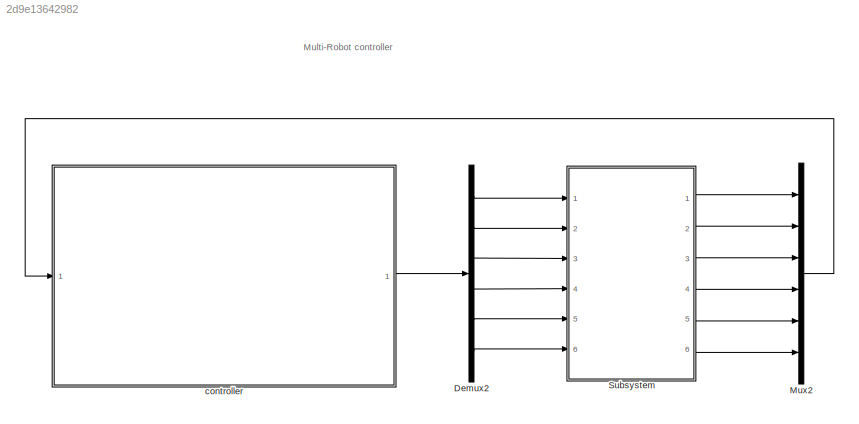
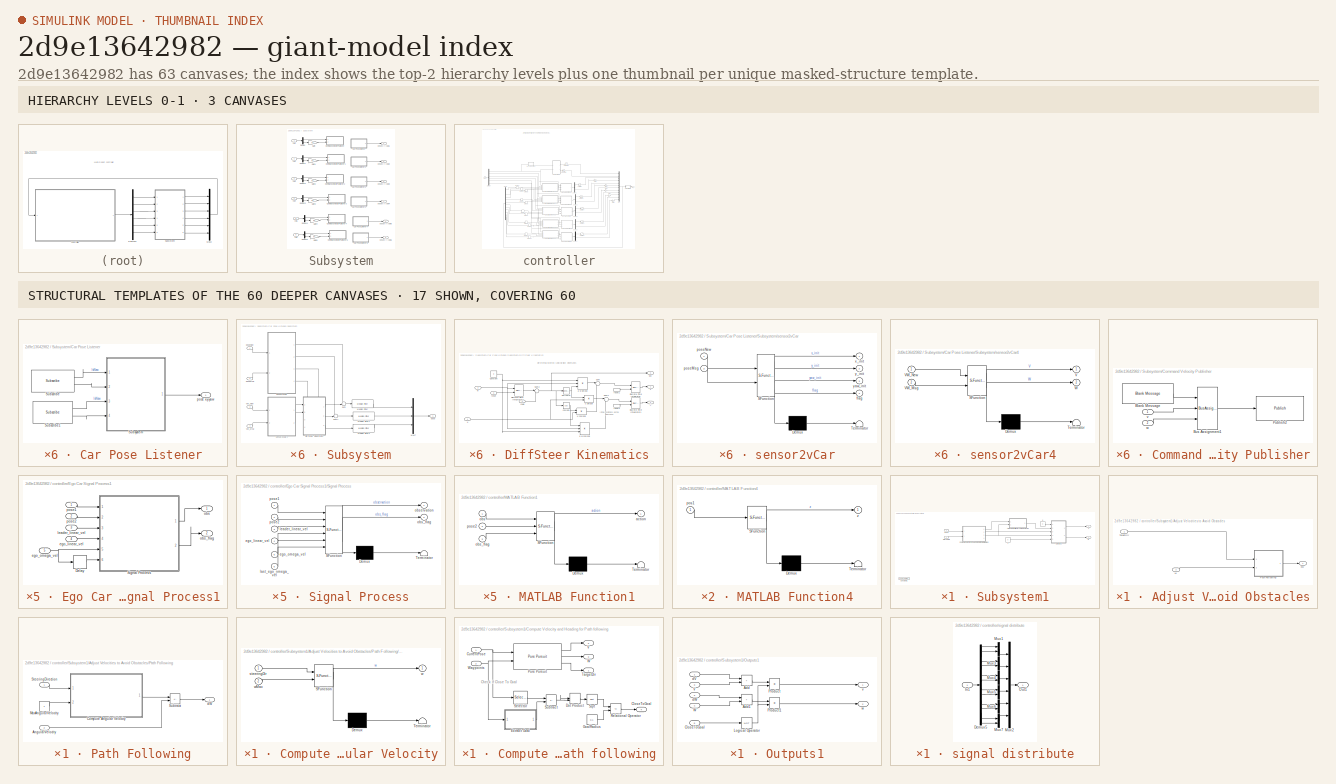
[diagram: thumbnail index - top-2 hierarchy levels (3 canvases) + 17 structural-template representatives of the remaining 60 canvases]
MODEL slx_2d9e13642982
KIND model
CONFIG AbsTol = auto
CONFIG EnableMultiTasking = on
CONFIG FixedStep = sampleTime
CONFIG InitFcn = sampleTime = 0.05;\nnMedianSize=3;\n\n% Robot parameters\nwheelRadius = 0.0335;\nrobotRadius = 0.116;\n\n% Lidar parameters\nsensorOffset = [0,0];\nscanAngles = linspace(-pi/2,pi/2,9)';\nmaxRange = 5;\n\n%%%%%%\nks=1;\nc_ks=-1;\n\n\n \n\n\n\n% Lidar parameters\nsensorOffset = [0,0];\nscanAngles = linspace(-pi/3,pi/3,20)';%y = linspace(x1,x2,n) 生成 n 个点。这些点的间距为 (x2-x1)/(n-1)。\nmaxRange = 0.4;\n\n%%%%%%\nks=1;\n\n\n\n\n\nA=0.3;\nC=1....<+876ch>
CONFIG MaxStep = auto
CONFIG MinStep = auto
CONFIG PreLoadFcn = %load emptyMap
CONFIG RelTol = 1e-3
CONFIG SampleTimeConstraint = Unconstrained
CONFIG SolverName = FixedStepDiscrete
CONFIG StartTime = 0.0
CONFIG StopTime = Inf
BLOCK [Demux] Demux2
  Outputs = 6
  Ports = [1, 6]
BLOCK [Mux] Mux2
  DisplayOption = bar
  Inputs = 6
  Ports = [6, 1]
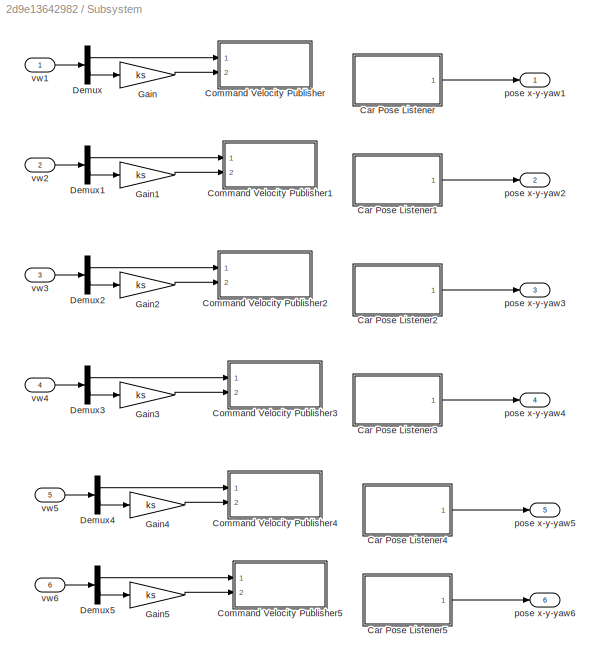
BLOCK [SubSystem] Subsystem
  Ports = [6, 6]
  RequestExecContextInheritance = off
BLOCK [SubSystem] Subsystem/Car Pose Listener
  Ports = [0, 1]
  RequestExecContextInheritance = off
BLOCK [Reference] Subsystem/Car Pose Listener/Subscribe  REF=robotlib/Subscribe
  Ports = [0, 2]
  SourceBlock = robotlib/Subscribe
  SourceProductBaseCode = RR
  SourceType = ROS Subscribe
BLOCK [Reference] Subsystem/Car Pose Listener/Subscribe1  REF=robotlib/Subscribe
  Ports = [0, 2]
  SourceBlock = robotlib/Subscribe
  SourceProductBaseCode = RR
  SourceType = ROS Subscribe
BLOCK [SubSystem] Subsystem/Car Pose Listener/Subsystem
  Ports = [4, 1]
  RequestExecContextInheritance = off
BLOCK [SubSystem] Subsystem/Car Pose Listener/Subsystem/DiffSteer Kinematics
  PortSchema = {"entries":[{"content":{"sides":[{"content":{"connectorIds":["In1","In2"]},"type":"ConnectorPlacement.EquallySpacedRectSide","uuid":"0032ed68-1de4-4b1c-b237-9372fedc8a7a"},{"content":{"connectorIds":["Out1","Out2","Out3"],"side":"RIGHT"},"type":"ConnectorPlacement.EquallySpacedRectSide","uuid":"d0c861bd-7497-47fe-b183-36da470ee2c6"},{"content":{"connectorIds":["In3","In4"],"side":"TOP"},"type":"Co...<+271ch>  <repeated x6 — deduplicated; at blocks: DiffSteer Kinematics>
  Ports = [4, 3]
  RequestExecContextInheritance = off
BLOCK [Constant] Subsystem/Car Pose Listener/Subsystem/DiffSteer Kinematics/Constant
  Value = 0
BLOCK [DiscreteIntegrator] Subsystem/Car Pose Listener/Subsystem/DiffSteer Kinematics/Discrete-Time Integrator
  ExternalReset = falling
  ICPrevOutput = DiscIntNeverNeededParam
  ICPrevScaledInput = DiscIntNeverNeededParam
  InitialConditionSetting = Auto
  Ports = [2, 1]
  SampleTime = -1
BLOCK [DiscreteIntegrator] Subsystem/Car Pose Listener/Subsystem/DiffSteer Kinematics/Discrete-Time Integrator1
  ExternalReset = falling
  ICPrevOutput = DiscIntNeverNeededParam
  ICPrevScaledInput = DiscIntNeverNeededParam
  InitialConditionSetting = Auto
  Ports = [2, 1]
  SampleTime = -1
BLOCK [DiscreteIntegrator] Subsystem/Car Pose Listener/Subsystem/DiffSteer Kinematics/Discrete-Time Integrator2
  ExternalReset = falling
  ICPrevOutput = DiscIntNeverNeededParam
  ICPrevScaledInput = DiscIntNeverNeededParam
  InitialConditionSetting = Auto
  IntegratorMethod = Integration: Backward Euler
  Ports = [2, 1]
  SampleTime = -1
BLOCK [Sum] Subsystem/Car Pose Listener/Subsystem/DiffSteer Kinematics/Sum
  Inputs = |-+
  Ports = [2, 1]
  SaturateOnIntegerOverflow = on
BLOCK [Sum] Subsystem/Car Pose Listener/Subsystem/DiffSteer Kinematics/Sum1
  Inputs = |++
  Ports = [2, 1]
  SaturateOnIntegerOverflow = on
BLOCK [Sum] Subsystem/Car Pose Listener/Subsystem/DiffSteer Kinematics/Sum2
  Inputs = |++
  Ports = [2, 1]
BLOCK [Product] Subsystem/Car Pose Listener/Subsystem/DiffSteer Kinematics/a w cos(psi)
  Inputs = 3
  OutDataTypeStr = Inherit: Same as first input
  Ports = [3, 1]
  SaturateOnIntegerOverflow = on
BLOCK [Product] Subsystem/Car Pose Listener/Subsystem/DiffSteer Kinematics/a w sin(psi)
  Inputs = 3
  OutDataTypeStr = Inherit: Same as first input
  Ports = [3, 1]
  SaturateOnIntegerOverflow = on
BLOCK [Trigonometry] Subsystem/Car Pose Listener/Subsystem/DiffSteer Kinematics/cos(psi)
  Operator = cos
  Ports = [1, 1]
BLOCK [Outport] Subsystem/Car Pose Listener/Subsystem/DiffSteer Kinematics/psi
  Port = 3
BLOCK [Inport] Subsystem/Car Pose Listener/Subsystem/DiffSteer Kinematics/reset
  Port = 3
BLOCK [InportShadow] Subsystem/Car Pose Listener/Subsystem/DiffSteer Kinematics/reset1
  Port = 3
BLOCK [InportShadow] Subsystem/Car Pose Listener/Subsystem/DiffSteer Kinematics/reset2
  Port = 3
BLOCK [Trigonometry] Subsystem/Car Pose Listener/Subsystem/DiffSteer Kinematics/sin(theta)
  Ports = [1, 1]
BLOCK [Inport] Subsystem/Car Pose Listener/Subsystem/DiffSteer Kinematics/u
BLOCK [Product] Subsystem/Car Pose Listener/Subsystem/DiffSteer Kinematics/u cos(psi)
  OutDataTypeStr = Inherit: Same as first input
  Ports = [2, 1]
  SaturateOnIntegerOverflow = on
BLOCK [Product] Subsystem/Car Pose Listener/Subsystem/DiffSteer Kinematics/u sin(psi)
  OutDataTypeStr = Inherit: Same as first input
  Ports = [2, 1]
  SaturateOnIntegerOverflow = on
BLOCK [Inport] Subsystem/Car Pose Listener/Subsystem/DiffSteer Kinematics/w
  Port = 2
BLOCK [Outport] Subsystem/Car Pose Listener/Subsystem/DiffSteer Kinematics/x
BLOCK [Outport] Subsystem/Car Pose Listener/Subsystem/DiffSteer Kinematics/y
  Port = 2
BLOCK [Inport] Subsystem/Car Pose Listener/Subsystem/DiffSteer Kinematics/yaw0
  Port = 4
BLOCK [Reference] Subsystem/Car Pose Listener/Subsystem/Median Filter  REF=dspstat3/Median
Filter
  Ports = [1, 1]
  SourceBlock = dspstat3/Median\nFilter
  SourceProductBaseCode = DS
  SourceType = dsp.MedianFilter
BLOCK [Reference] Subsystem/Car Pose Listener/Subsystem/Median Filter1  REF=dspstat3/Median
Filter
  Ports = [1, 1]
  SourceBlock = dspstat3/Median\nFilter
  SourceProductBaseCode = DS
  SourceType = dsp.MedianFilter
BLOCK [Reference] Subsystem/Car Pose Listener/Subsystem/Median Filter2  REF=dspstat3/Median
Filter
  Ports = [1, 1]
  SourceBlock = dspstat3/Median\nFilter
  SourceProductBaseCode = DS
  SourceType = dsp.MedianFilter
BLOCK [Mux] Subsystem/Car Pose Listener/Subsystem/Mux7
  DisplayOption = bar
  Inputs = 3
  Ports = [3, 1]
BLOCK [Sum] Subsystem/Car Pose Listener/Subsystem/Sum
  Inputs = ++|
  Ports = [2, 1]
BLOCK [Sum] Subsystem/Car Pose Listener/Subsystem/Sum1
  Inputs = ++|
  Ports = [2, 1]
BLOCK [Inport] Subsystem/Car Pose Listener/Subsystem/VW_Msg
  Port = 4
BLOCK [Inport] Subsystem/Car Pose Listener/Subsystem/VW_New
  Port = 3
BLOCK [Outport] Subsystem/Car Pose Listener/Subsystem/pose
BLOCK [Inport] Subsystem/Car Pose Listener/Subsystem/poseMsg
  Port = 2
BLOCK [Inport] Subsystem/Car Pose Listener/Subsystem/poseNew
BLOCK [SubSystem] Subsystem/Car Pose Listener/Subsystem/sensor2vCar
  ErrorFcn = Stateflow.Translate.translate
  PermitHierarchicalResolution = ExplicitOnly
  Ports = [2, 4]
  RequestExecContextInheritance = off
  SFBlockType = MATLAB Function
  TreatAsAtomicUnit = on
BLOCK [Demux] Subsystem/Car Pose Listener/Subsystem/sensor2vCar/ Demux 
  Outputs = 1
  Ports = [1, 1]
BLOCK [S-Function] Subsystem/Car Pose Listener/Subsystem/sensor2vCar/ SFunction 
  EnableBusSupport = on
  FunctionName = sf_sfun
  PortCounts = [2 5]
  Ports = [2, 5]
  SFcnIsStateOwnerBlock = off
  SFunctionDeploymentMode = off
  Tag = Stateflow S-Function 1
BLOCK [Terminator] Subsystem/Car Pose Listener/Subsystem/sensor2vCar/ Terminator 
BLOCK [Outport] Subsystem/Car Pose Listener/Subsystem/sensor2vCar/flag
  Port = 4
BLOCK [Inport] Subsystem/Car Pose Listener/Subsystem/sensor2vCar/poseMsg
  Port = 2
BLOCK [Inport] Subsystem/Car Pose Listener/Subsystem/sensor2vCar/poseNew
BLOCK [Outport] Subsystem/Car Pose Listener/Subsystem/sensor2vCar/x_init
BLOCK [Outport] Subsystem/Car Pose Listener/Subsystem/sensor2vCar/y_init
  Port = 2
BLOCK [Outport] Subsystem/Car Pose Listener/Subsystem/sensor2vCar/yaw_init
  Port = 3
BLOCK [SubSystem] Subsystem/Car Pose Listener/Subsystem/sensor2vCar4
  ErrorFcn = Stateflow.Translate.translate
  PermitHierarchicalResolution = ExplicitOnly
  Ports = [2, 2]
  RequestExecContextInheritance = off
  SFBlockType = MATLAB Function
  TreatAsAtomicUnit = on
BLOCK [Demux] Subsystem/Car Pose Listener/Subsystem/sensor2vCar4/ Demux 
  Outputs = 1
  Ports = [1, 1]
BLOCK [S-Function] Subsystem/Car Pose Listener/Subsystem/sensor2vCar4/ SFunction 
  EnableBusSupport = on
  FunctionName = sf_sfun
  PortCounts = [2 3]
  Ports = [2, 3]
  SFcnIsStateOwnerBlock = off
  SFunctionDeploymentMode = off
  Tag = Stateflow S-Function 13
BLOCK [Terminator] Subsystem/Car Pose Listener/Subsystem/sensor2vCar4/ Terminator 
BLOCK [Outport] Subsystem/Car Pose Listener/Subsystem/sensor2vCar4/V
BLOCK [Inport] Subsystem/Car Pose Listener/Subsystem/sensor2vCar4/VW_Msg
  Port = 2
BLOCK [Inport] Subsystem/Car Pose Listener/Subsystem/sensor2vCar4/VW_New
BLOCK [Outport] Subsystem/Car Pose Listener/Subsystem/sensor2vCar4/W
  Port = 2
BLOCK [Outport] Subsystem/Car Pose Listener/pose x-y-yaw
BLOCK [SubSystem] Subsystem/Car Pose Listener1
  Ports = [0, 1]
  RequestExecContextInheritance = off
BLOCK [Reference] Subsystem/Car Pose Listener1/Subscribe  REF=robotlib/Subscribe
  Ports = [0, 2]
  SourceBlock = robotlib/Subscribe
  SourceProductBaseCode = RR
  SourceType = ROS Subscribe
BLOCK [Reference] Subsystem/Car Pose Listener1/Subscribe1  REF=robotlib/Subscribe
  Ports = [0, 2]
  SourceBlock = robotlib/Subscribe
  SourceProductBaseCode = RR
  SourceType = ROS Subscribe
BLOCK [SubSystem] Subsystem/Car Pose Listener1/Subsystem
  Ports = [4, 1]
  RequestExecContextInheritance = off
BLOCK [SubSystem] Subsystem/Car Pose Listener1/Subsystem/DiffSteer Kinematics
  Ports = [4, 3]
  RequestExecContextInheritance = off
BLOCK [Constant] Subsystem/Car Pose Listener1/Subsystem/DiffSteer Kinematics/Constant
  Value = 0
BLOCK [DiscreteIntegrator] Subsystem/Car Pose Listener1/Subsystem/DiffSteer Kinematics/Discrete-Time Integrator
  ExternalReset = falling
  ICPrevOutput = DiscIntNeverNeededParam
  ICPrevScaledInput = DiscIntNeverNeededParam
  InitialConditionSetting = Auto
  Ports = [2, 1]
  SampleTime = -1
BLOCK [DiscreteIntegrator] Subsystem/Car Pose Listener1/Subsystem/DiffSteer Kinematics/Discrete-Time Integrator1
  ExternalReset = falling
  ICPrevOutput = DiscIntNeverNeededParam
  ICPrevScaledInput = DiscIntNeverNeededParam
  InitialConditionSetting = Auto
  Ports = [2, 1]
  SampleTime = -1
BLOCK [DiscreteIntegrator] Subsystem/Car Pose Listener1/Subsystem/DiffSteer Kinematics/Discrete-Time Integrator2
  ExternalReset = falling
  ICPrevOutput = DiscIntNeverNeededParam
  ICPrevScaledInput = DiscIntNeverNeededParam
  InitialConditionSetting = Auto
  IntegratorMethod = Integration: Backward Euler
  Ports = [2, 1]
  SampleTime = -1
BLOCK [Sum] Subsystem/Car Pose Listener1/Subsystem/DiffSteer Kinematics/Sum
  Inputs = |-+
  Ports = [2, 1]
  SaturateOnIntegerOverflow = on
BLOCK [Sum] Subsystem/Car Pose Listener1/Subsystem/DiffSteer Kinematics/Sum1
  Inputs = |++
  Ports = [2, 1]
  SaturateOnIntegerOverflow = on
BLOCK [Sum] Subsystem/Car Pose Listener1/Subsystem/DiffSteer Kinematics/Sum2
  Inputs = |++
  Ports = [2, 1]
BLOCK [Product] Subsystem/Car Pose Listener1/Subsystem/DiffSteer Kinematics/a w cos(psi)
  Inputs = 3
  OutDataTypeStr = Inherit: Same as first input
  Ports = [3, 1]
  SaturateOnIntegerOverflow = on
BLOCK [Product] Subsystem/Car Pose Listener1/Subsystem/DiffSteer Kinematics/a w sin(psi)
  Inputs = 3
  OutDataTypeStr = Inherit: Same as first input
  Ports = [3, 1]
  SaturateOnIntegerOverflow = on
BLOCK [Trigonometry] Subsystem/Car Pose Listener1/Subsystem/DiffSteer Kinematics/cos(psi)
  Operator = cos
  Ports = [1, 1]
BLOCK [Outport] Subsystem/Car Pose Listener1/Subsystem/DiffSteer Kinematics/psi
  Port = 3
BLOCK [Inport] Subsystem/Car Pose Listener1/Subsystem/DiffSteer Kinematics/reset
  Port = 3
BLOCK [InportShadow] Subsystem/Car Pose Listener1/Subsystem/DiffSteer Kinematics/reset1
  Port = 3
BLOCK [InportShadow] Subsystem/Car Pose Listener1/Subsystem/DiffSteer Kinematics/reset2
  Port = 3
BLOCK [Trigonometry] Subsystem/Car Pose Listener1/Subsystem/DiffSteer Kinematics/sin(theta)
  Ports = [1, 1]
BLOCK [Inport] Subsystem/Car Pose Listener1/Subsystem/DiffSteer Kinematics/u
BLOCK [Product] Subsystem/Car Pose Listener1/Subsystem/DiffSteer Kinematics/u cos(psi)
  OutDataTypeStr = Inherit: Same as first input
  Ports = [2, 1]
  SaturateOnIntegerOverflow = on
BLOCK [Product] Subsystem/Car Pose Listener1/Subsystem/DiffSteer Kinematics/u sin(psi)
  OutDataTypeStr = Inherit: Same as first input
  Ports = [2, 1]
  SaturateOnIntegerOverflow = on
BLOCK [Inport] Subsystem/Car Pose Listener1/Subsystem/DiffSteer Kinematics/w
  Port = 2
BLOCK [Outport] Subsystem/Car Pose Listener1/Subsystem/DiffSteer Kinematics/x
BLOCK [Outport] Subsystem/Car Pose Listener1/Subsystem/DiffSteer Kinematics/y
  Port = 2
BLOCK [Inport] Subsystem/Car Pose Listener1/Subsystem/DiffSteer Kinematics/yaw0
  Port = 4
BLOCK [Reference] Subsystem/Car Pose Listener1/Subsystem/Median Filter  REF=dspstat3/Median
Filter
  Ports = [1, 1]
  SourceBlock = dspstat3/Median\nFilter
  SourceProductBaseCode = DS
  SourceType = dsp.MedianFilter
BLOCK [Reference] Subsystem/Car Pose Listener1/Subsystem/Median Filter1  REF=dspstat3/Median
Filter
  Ports = [1, 1]
  SourceBlock = dspstat3/Median\nFilter
  SourceProductBaseCode = DS
  SourceType = dsp.MedianFilter
BLOCK [Reference] Subsystem/Car Pose Listener1/Subsystem/Median Filter2  REF=dspstat3/Median
Filter
  Ports = [1, 1]
  SourceBlock = dspstat3/Median\nFilter
  SourceProductBaseCode = DS
  SourceType = dsp.MedianFilter
BLOCK [Mux] Subsystem/Car Pose Listener1/Subsystem/Mux7
  DisplayOption = bar
  Inputs = 3
  Ports = [3, 1]
BLOCK [Sum] Subsystem/Car Pose Listener1/Subsystem/Sum
  Inputs = ++|
  Ports = [2, 1]
BLOCK [Sum] Subsystem/Car Pose Listener1/Subsystem/Sum1
  Inputs = ++|
  Ports = [2, 1]
BLOCK [Inport] Subsystem/Car Pose Listener1/Subsystem/VW_Msg
  Port = 4
BLOCK [Inport] Subsystem/Car Pose Listener1/Subsystem/VW_New
  Port = 3
BLOCK [Outport] Subsystem/Car Pose Listener1/Subsystem/pose
BLOCK [Inport] Subsystem/Car Pose Listener1/Subsystem/poseMsg
  Port = 2
BLOCK [Inport] Subsystem/Car Pose Listener1/Subsystem/poseNew
BLOCK [SubSystem] Subsystem/Car Pose Listener1/Subsystem/sensor2vCar
  ErrorFcn = Stateflow.Translate.translate
  PermitHierarchicalResolution = ExplicitOnly
  Ports = [2, 4]
  RequestExecContextInheritance = off
  SFBlockType = MATLAB Function
  TreatAsAtomicUnit = on
BLOCK [Demux] Subsystem/Car Pose Listener1/Subsystem/sensor2vCar/ Demux 
  Outputs = 1
  Ports = [1, 1]
BLOCK [S-Function] Subsystem/Car Pose Listener1/Subsystem/sensor2vCar/ SFunction 
  EnableBusSupport = on
  FunctionName = sf_sfun
  PortCounts = [2 5]
  Ports = [2, 5]
  SFcnIsStateOwnerBlock = off
  SFunctionDeploymentMode = off
  Tag = Stateflow S-Function 10
BLOCK [Terminator] Subsystem/Car Pose Listener1/Subsystem/sensor2vCar/ Terminator 
BLOCK [Outport] Subsystem/Car Pose Listener1/Subsystem/sensor2vCar/flag
  Port = 4
BLOCK [Inport] Subsystem/Car Pose Listener1/Subsystem/sensor2vCar/poseMsg
  Port = 2
BLOCK [Inport] Subsystem/Car Pose Listener1/Subsystem/sensor2vCar/poseNew
BLOCK [Outport] Subsystem/Car Pose Listener1/Subsystem/sensor2vCar/x_init
BLOCK [Outport] Subsystem/Car Pose Listener1/Subsystem/sensor2vCar/y_init
  Port = 2
BLOCK [Outport] Subsystem/Car Pose Listener1/Subsystem/sensor2vCar/yaw_init
  Port = 3
BLOCK [SubSystem] Subsystem/Car Pose Listener1/Subsystem/sensor2vCar4
  ErrorFcn = Stateflow.Translate.translate
  PermitHierarchicalResolution = ExplicitOnly
  Ports = [2, 2]
  RequestExecContextInheritance = off
  SFBlockType = MATLAB Function
  TreatAsAtomicUnit = on
BLOCK [Demux] Subsystem/Car Pose Listener1/Subsystem/sensor2vCar4/ Demux 
  Outputs = 1
  Ports = [1, 1]
BLOCK [S-Function] Subsystem/Car Pose Listener1/Subsystem/sensor2vCar4/ SFunction 
  EnableBusSupport = on
  FunctionName = sf_sfun
  PortCounts = [2 3]
  Ports = [2, 3]
  SFcnIsStateOwnerBlock = off
  SFunctionDeploymentMode = off
  Tag = Stateflow S-Function 2
BLOCK [Terminator] Subsystem/Car Pose Listener1/Subsystem/sensor2vCar4/ Terminator 
BLOCK [Outport] Subsystem/Car Pose Listener1/Subsystem/sensor2vCar4/V
BLOCK [Inport] Subsystem/Car Pose Listener1/Subsystem/sensor2vCar4/VW_Msg
  Port = 2
BLOCK [Inport] Subsystem/Car Pose Listener1/Subsystem/sensor2vCar4/VW_New
BLOCK [Outport] Subsystem/Car Pose Listener1/Subsystem/sensor2vCar4/W
  Port = 2
BLOCK [Outport] Subsystem/Car Pose Listener1/pose x-y-yaw
BLOCK [SubSystem] Subsystem/Car Pose Listener2
  Ports = [0, 1]
  RequestExecContextInheritance = off
BLOCK [Reference] Subsystem/Car Pose Listener2/Subscribe  REF=robotlib/Subscribe
  Ports = [0, 2]
  SourceBlock = robotlib/Subscribe
  SourceProductBaseCode = RR
  SourceType = ROS Subscribe
BLOCK [Reference] Subsystem/Car Pose Listener2/Subscribe1  REF=robotlib/Subscribe
  Ports = [0, 2]
  SourceBlock = robotlib/Subscribe
  SourceProductBaseCode = RR
  SourceType = ROS Subscribe
BLOCK [SubSystem] Subsystem/Car Pose Listener2/Subsystem
  Ports = [4, 1]
  RequestExecContextInheritance = off
BLOCK [SubSystem] Subsystem/Car Pose Listener2/Subsystem/DiffSteer Kinematics
  Ports = [4, 3]
  RequestExecContextInheritance = off
BLOCK [Constant] Subsystem/Car Pose Listener2/Subsystem/DiffSteer Kinematics/Constant
  Value = 0
BLOCK [DiscreteIntegrator] Subsystem/Car Pose Listener2/Subsystem/DiffSteer Kinematics/Discrete-Time Integrator
  ExternalReset = falling
  ICPrevOutput = DiscIntNeverNeededParam
  ICPrevScaledInput = DiscIntNeverNeededParam
  InitialConditionSetting = Auto
  Ports = [2, 1]
  SampleTime = -1
BLOCK [DiscreteIntegrator] Subsystem/Car Pose Listener2/Subsystem/DiffSteer Kinematics/Discrete-Time Integrator1
  ExternalReset = falling
  ICPrevOutput = DiscIntNeverNeededParam
  ICPrevScaledInput = DiscIntNeverNeededParam
  InitialConditionSetting = Auto
  Ports = [2, 1]
  SampleTime = -1
BLOCK [DiscreteIntegrator] Subsystem/Car Pose Listener2/Subsystem/DiffSteer Kinematics/Discrete-Time Integrator2
  ExternalReset = falling
  ICPrevOutput = DiscIntNeverNeededParam
  ICPrevScaledInput = DiscIntNeverNeededParam
  InitialConditionSetting = Auto
  IntegratorMethod = Integration: Backward Euler
  Ports = [2, 1]
  SampleTime = -1
BLOCK [Sum] Subsystem/Car Pose Listener2/Subsystem/DiffSteer Kinematics/Sum
  Inputs = |-+
  Ports = [2, 1]
  SaturateOnIntegerOverflow = on
BLOCK [Sum] Subsystem/Car Pose Listener2/Subsystem/DiffSteer Kinematics/Sum1
  Inputs = |++
  Ports = [2, 1]
  SaturateOnIntegerOverflow = on
BLOCK [Sum] Subsystem/Car Pose Listener2/Subsystem/DiffSteer Kinematics/Sum2
  Inputs = |++
  Ports = [2, 1]
BLOCK [Product] Subsystem/Car Pose Listener2/Subsystem/DiffSteer Kinematics/a w cos(psi)
  Inputs = 3
  OutDataTypeStr = Inherit: Same as first input
  Ports = [3, 1]
  SaturateOnIntegerOverflow = on
BLOCK [Product] Subsystem/Car Pose Listener2/Subsystem/DiffSteer Kinematics/a w sin(psi)
  Inputs = 3
  OutDataTypeStr = Inherit: Same as first input
  Ports = [3, 1]
  SaturateOnIntegerOverflow = on
BLOCK [Trigonometry] Subsystem/Car Pose Listener2/Subsystem/DiffSteer Kinematics/cos(psi)
  Operator = cos
  Ports = [1, 1]
BLOCK [Outport] Subsystem/Car Pose Listener2/Subsystem/DiffSteer Kinematics/psi
  Port = 3
BLOCK [Inport] Subsystem/Car Pose Listener2/Subsystem/DiffSteer Kinematics/reset
  Port = 3
BLOCK [InportShadow] Subsystem/Car Pose Listener2/Subsystem/DiffSteer Kinematics/reset1
  Port = 3
BLOCK [InportShadow] Subsystem/Car Pose Listener2/Subsystem/DiffSteer Kinematics/reset2
  Port = 3
BLOCK [Trigonometry] Subsystem/Car Pose Listener2/Subsystem/DiffSteer Kinematics/sin(theta)
  Ports = [1, 1]
BLOCK [Inport] Subsystem/Car Pose Listener2/Subsystem/DiffSteer Kinematics/u
BLOCK [Product] Subsystem/Car Pose Listener2/Subsystem/DiffSteer Kinematics/u cos(psi)
  OutDataTypeStr = Inherit: Same as first input
  Ports = [2, 1]
  SaturateOnIntegerOverflow = on
BLOCK [Product] Subsystem/Car Pose Listener2/Subsystem/DiffSteer Kinematics/u sin(psi)
  OutDataTypeStr = Inherit: Same as first input
  Ports = [2, 1]
  SaturateOnIntegerOverflow = on
BLOCK [Inport] Subsystem/Car Pose Listener2/Subsystem/DiffSteer Kinematics/w
  Port = 2
BLOCK [Outport] Subsystem/Car Pose Listener2/Subsystem/DiffSteer Kinematics/x
BLOCK [Outport] Subsystem/Car Pose Listener2/Subsystem/DiffSteer Kinematics/y
  Port = 2
BLOCK [Inport] Subsystem/Car Pose Listener2/Subsystem/DiffSteer Kinematics/yaw0
  Port = 4
BLOCK [Reference] Subsystem/Car Pose Listener2/Subsystem/Median Filter  REF=dspstat3/Median
Filter
  Ports = [1, 1]
  SourceBlock = dspstat3/Median\nFilter
  SourceProductBaseCode = DS
  SourceType = dsp.MedianFilter
BLOCK [Reference] Subsystem/Car Pose Listener2/Subsystem/Median Filter1  REF=dspstat3/Median
Filter
  Ports = [1, 1]
  SourceBlock = dspstat3/Median\nFilter
  SourceProductBaseCode = DS
  SourceType = dsp.MedianFilter
BLOCK [Reference] Subsystem/Car Pose Listener2/Subsystem/Median Filter2  REF=dspstat3/Median
Filter
  Ports = [1, 1]
  SourceBlock = dspstat3/Median\nFilter
  SourceProductBaseCode = DS
  SourceType = dsp.MedianFilter
BLOCK [Mux] Subsystem/Car Pose Listener2/Subsystem/Mux7
  DisplayOption = bar
  Inputs = 3
  Ports = [3, 1]
BLOCK [Sum] Subsystem/Car Pose Listener2/Subsystem/Sum
  Inputs = ++|
  Ports = [2, 1]
BLOCK [Sum] Subsystem/Car Pose Listener2/Subsystem/Sum1
  Inputs = ++|
  Ports = [2, 1]
BLOCK [Inport] Subsystem/Car Pose Listener2/Subsystem/VW_Msg
  Port = 4
BLOCK [Inport] Subsystem/Car Pose Listener2/Subsystem/VW_New
  Port = 3
BLOCK [Outport] Subsystem/Car Pose Listener2/Subsystem/pose
BLOCK [Inport] Subsystem/Car Pose Listener2/Subsystem/poseMsg
  Port = 2
BLOCK [Inport] Subsystem/Car Pose Listener2/Subsystem/poseNew
BLOCK [SubSystem] Subsystem/Car Pose Listener2/Subsystem/sensor2vCar
  ErrorFcn = Stateflow.Translate.translate
  PermitHierarchicalResolution = ExplicitOnly
  Ports = [2, 4]
  RequestExecContextInheritance = off
  SFBlockType = MATLAB Function
  TreatAsAtomicUnit = on
BLOCK [Demux] Subsystem/Car Pose Listener2/Subsystem/sensor2vCar/ Demux 
  Outputs = 1
  Ports = [1, 1]
BLOCK [S-Function] Subsystem/Car Pose Listener2/Subsystem/sensor2vCar/ SFunction 
  EnableBusSupport = on
  FunctionName = sf_sfun
  PortCounts = [2 5]
  Ports = [2, 5]
  SFcnIsStateOwnerBlock = off
  SFunctionDeploymentMode = off
  Tag = Stateflow S-Function 3
BLOCK [Terminator] Subsystem/Car Pose Listener2/Subsystem/sensor2vCar/ Terminator 
BLOCK [Outport] Subsystem/Car Pose Listener2/Subsystem/sensor2vCar/flag
  Port = 4
BLOCK [Inport] Subsystem/Car Pose Listener2/Subsystem/sensor2vCar/poseMsg
  Port = 2
BLOCK [Inport] Subsystem/Car Pose Listener2/Subsystem/sensor2vCar/poseNew
BLOCK [Outport] Subsystem/Car Pose Listener2/Subsystem/sensor2vCar/x_init
BLOCK [Outport] Subsystem/Car Pose Listener2/Subsystem/sensor2vCar/y_init
  Port = 2
BLOCK [Outport] Subsystem/Car Pose Listener2/Subsystem/sensor2vCar/yaw_init
  Port = 3
BLOCK [SubSystem] Subsystem/Car Pose Listener2/Subsystem/sensor2vCar4
  ErrorFcn = Stateflow.Translate.translate
  PermitHierarchicalResolution = ExplicitOnly
  Ports = [2, 2]
  RequestExecContextInheritance = off
  SFBlockType = MATLAB Function
  TreatAsAtomicUnit = on
BLOCK [Demux] Subsystem/Car Pose Listener2/Subsystem/sensor2vCar4/ Demux 
  Outputs = 1
  Ports = [1, 1]
BLOCK [S-Function] Subsystem/Car Pose Listener2/Subsystem/sensor2vCar4/ SFunction 
  EnableBusSupport = on
  FunctionName = sf_sfun
  PortCounts = [2 3]
  Ports = [2, 3]
  SFcnIsStateOwnerBlock = off
  SFunctionDeploymentMode = off
  Tag = Stateflow S-Function 4
BLOCK [Terminator] Subsystem/Car Pose Listener2/Subsystem/sensor2vCar4/ Terminator 
BLOCK [Outport] Subsystem/Car Pose Listener2/Subsystem/sensor2vCar4/V
BLOCK [Inport] Subsystem/Car Pose Listener2/Subsystem/sensor2vCar4/VW_Msg
  Port = 2
BLOCK [Inport] Subsystem/Car Pose Listener2/Subsystem/sensor2vCar4/VW_New
BLOCK [Outport] Subsystem/Car Pose Listener2/Subsystem/sensor2vCar4/W
  Port = 2
BLOCK [Outport] Subsystem/Car Pose Listener2/pose x-y-yaw
BLOCK [SubSystem] Subsystem/Car Pose Listener3
  Ports = [0, 1]
  RequestExecContextInheritance = off
BLOCK [Reference] Subsystem/Car Pose Listener3/Subscribe  REF=robotlib/Subscribe
  Ports = [0, 2]
  SourceBlock = robotlib/Subscribe
  SourceProductBaseCode = RR
  SourceType = ROS Subscribe
BLOCK [Reference] Subsystem/Car Pose Listener3/Subscribe1  REF=robotlib/Subscribe
  Ports = [0, 2]
  SourceBlock = robotlib/Subscribe
  SourceProductBaseCode = RR
  SourceType = ROS Subscribe
BLOCK [SubSystem] Subsystem/Car Pose Listener3/Subsystem
  Ports = [4, 1]
  RequestExecContextInheritance = off
BLOCK [SubSystem] Subsystem/Car Pose Listener3/Subsystem/DiffSteer Kinematics
  Ports = [4, 3]
  RequestExecContextInheritance = off
BLOCK [Constant] Subsystem/Car Pose Listener3/Subsystem/DiffSteer Kinematics/Constant
  Value = 0
BLOCK [DiscreteIntegrator] Subsystem/Car Pose Listener3/Subsystem/DiffSteer Kinematics/Discrete-Time Integrator
  ExternalReset = falling
  ICPrevOutput = DiscIntNeverNeededParam
  ICPrevScaledInput = DiscIntNeverNeededParam
  InitialConditionSetting = Auto
  Ports = [2, 1]
  SampleTime = -1
BLOCK [DiscreteIntegrator] Subsystem/Car Pose Listener3/Subsystem/DiffSteer Kinematics/Discrete-Time Integrator1
  ExternalReset = falling
  ICPrevOutput = DiscIntNeverNeededParam
  ICPrevScaledInput = DiscIntNeverNeededParam
  InitialConditionSetting = Auto
  Ports = [2, 1]
  SampleTime = -1
BLOCK [DiscreteIntegrator] Subsystem/Car Pose Listener3/Subsystem/DiffSteer Kinematics/Discrete-Time Integrator2
  ExternalReset = falling
  ICPrevOutput = DiscIntNeverNeededParam
  ICPrevScaledInput = DiscIntNeverNeededParam
  InitialConditionSetting = Auto
  IntegratorMethod = Integration: Backward Euler
  Ports = [2, 1]
  SampleTime = -1
BLOCK [Sum] Subsystem/Car Pose Listener3/Subsystem/DiffSteer Kinematics/Sum
  Inputs = |-+
  Ports = [2, 1]
  SaturateOnIntegerOverflow = on
BLOCK [Sum] Subsystem/Car Pose Listener3/Subsystem/DiffSteer Kinematics/Sum1
  Inputs = |++
  Ports = [2, 1]
  SaturateOnIntegerOverflow = on
BLOCK [Sum] Subsystem/Car Pose Listener3/Subsystem/DiffSteer Kinematics/Sum2
  Inputs = |++
  Ports = [2, 1]
BLOCK [Product] Subsystem/Car Pose Listener3/Subsystem/DiffSteer Kinematics/a w cos(psi)
  Inputs = 3
  OutDataTypeStr = Inherit: Same as first input
  Ports = [3, 1]
  SaturateOnIntegerOverflow = on
BLOCK [Product] Subsystem/Car Pose Listener3/Subsystem/DiffSteer Kinematics/a w sin(psi)
  Inputs = 3
  OutDataTypeStr = Inherit: Same as first input
  Ports = [3, 1]
  SaturateOnIntegerOverflow = on
BLOCK [Trigonometry] Subsystem/Car Pose Listener3/Subsystem/DiffSteer Kinematics/cos(psi)
  Operator = cos
  Ports = [1, 1]
BLOCK [Outport] Subsystem/Car Pose Listener3/Subsystem/DiffSteer Kinematics/psi
  Port = 3
BLOCK [Inport] Subsystem/Car Pose Listener3/Subsystem/DiffSteer Kinematics/reset
  Port = 3
BLOCK [InportShadow] Subsystem/Car Pose Listener3/Subsystem/DiffSteer Kinematics/reset1
  Port = 3
BLOCK [InportShadow] Subsystem/Car Pose Listener3/Subsystem/DiffSteer Kinematics/reset2
  Port = 3
BLOCK [Trigonometry] Subsystem/Car Pose Listener3/Subsystem/DiffSteer Kinematics/sin(theta)
  Ports = [1, 1]
BLOCK [Inport] Subsystem/Car Pose Listener3/Subsystem/DiffSteer Kinematics/u
BLOCK [Product] Subsystem/Car Pose Listener3/Subsystem/DiffSteer Kinematics/u cos(psi)
  OutDataTypeStr = Inherit: Same as first input
  Ports = [2, 1]
  SaturateOnIntegerOverflow = on
BLOCK [Product] Subsystem/Car Pose Listener3/Subsystem/DiffSteer Kinematics/u sin(psi)
  OutDataTypeStr = Inherit: Same as first input
  Ports = [2, 1]
  SaturateOnIntegerOverflow = on
BLOCK [Inport] Subsystem/Car Pose Listener3/Subsystem/DiffSteer Kinematics/w
  Port = 2
BLOCK [Outport] Subsystem/Car Pose Listener3/Subsystem/DiffSteer Kinematics/x
BLOCK [Outport] Subsystem/Car Pose Listener3/Subsystem/DiffSteer Kinematics/y
  Port = 2
BLOCK [Inport] Subsystem/Car Pose Listener3/Subsystem/DiffSteer Kinematics/yaw0
  Port = 4
BLOCK [Reference] Subsystem/Car Pose Listener3/Subsystem/Median Filter  REF=dspstat3/Median
Filter
  Ports = [1, 1]
  SourceBlock = dspstat3/Median\nFilter
  SourceProductBaseCode = DS
  SourceType = dsp.MedianFilter
BLOCK [Reference] Subsystem/Car Pose Listener3/Subsystem/Median Filter1  REF=dspstat3/Median
Filter
  Ports = [1, 1]
  SourceBlock = dspstat3/Median\nFilter
  SourceProductBaseCode = DS
  SourceType = dsp.MedianFilter
BLOCK [Reference] Subsystem/Car Pose Listener3/Subsystem/Median Filter2  REF=dspstat3/Median
Filter
  Ports = [1, 1]
  SourceBlock = dspstat3/Median\nFilter
  SourceProductBaseCode = DS
  SourceType = dsp.MedianFilter
BLOCK [Mux] Subsystem/Car Pose Listener3/Subsystem/Mux7
  DisplayOption = bar
  Inputs = 3
  Ports = [3, 1]
BLOCK [Sum] Subsystem/Car Pose Listener3/Subsystem/Sum
  Inputs = ++|
  Ports = [2, 1]
BLOCK [Sum] Subsystem/Car Pose Listener3/Subsystem/Sum1
  Inputs = ++|
  Ports = [2, 1]
BLOCK [Inport] Subsystem/Car Pose Listener3/Subsystem/VW_Msg
  Port = 4
BLOCK [Inport] Subsystem/Car Pose Listener3/Subsystem/VW_New
  Port = 3
BLOCK [Outport] Subsystem/Car Pose Listener3/Subsystem/pose
BLOCK [Inport] Subsystem/Car Pose Listener3/Subsystem/poseMsg
  Port = 2
BLOCK [Inport] Subsystem/Car Pose Listener3/Subsystem/poseNew
BLOCK [SubSystem] Subsystem/Car Pose Listener3/Subsystem/sensor2vCar
  ErrorFcn = Stateflow.Translate.translate
  PermitHierarchicalResolution = ExplicitOnly
  Ports = [2, 4]
  RequestExecContextInheritance = off
  SFBlockType = MATLAB Function
  TreatAsAtomicUnit = on
BLOCK [Demux] Subsystem/Car Pose Listener3/Subsystem/sensor2vCar/ Demux 
  Outputs = 1
  Ports = [1, 1]
BLOCK [S-Function] Subsystem/Car Pose Listener3/Subsystem/sensor2vCar/ SFunction 
  EnableBusSupport = on
  FunctionName = sf_sfun
  PortCounts = [2 5]
  Ports = [2, 5]
  SFcnIsStateOwnerBlock = off
  SFunctionDeploymentMode = off
  Tag = Stateflow S-Function 31
BLOCK [Terminator] Subsystem/Car Pose Listener3/Subsystem/sensor2vCar/ Terminator 
BLOCK [Outport] Subsystem/Car Pose Listener3/Subsystem/sensor2vCar/flag
  Port = 4
BLOCK [Inport] Subsystem/Car Pose Listener3/Subsystem/sensor2vCar/poseMsg
  Port = 2
BLOCK [Inport] Subsystem/Car Pose Listener3/Subsystem/sensor2vCar/poseNew
BLOCK [Outport] Subsystem/Car Pose Listener3/Subsystem/sensor2vCar/x_init
BLOCK [Outport] Subsystem/Car Pose Listener3/Subsystem/sensor2vCar/y_init
  Port = 2
BLOCK [Outport] Subsystem/Car Pose Listener3/Subsystem/sensor2vCar/yaw_init
  Port = 3
BLOCK [SubSystem] Subsystem/Car Pose Listener3/Subsystem/sensor2vCar4
  ErrorFcn = Stateflow.Translate.translate
  PermitHierarchicalResolution = ExplicitOnly
  Ports = [2, 2]
  RequestExecContextInheritance = off
  SFBlockType = MATLAB Function
  TreatAsAtomicUnit = on
BLOCK [Demux] Subsystem/Car Pose Listener3/Subsystem/sensor2vCar4/ Demux 
  Outputs = 1
  Ports = [1, 1]
BLOCK [S-Function] Subsystem/Car Pose Listener3/Subsystem/sensor2vCar4/ SFunction 
  EnableBusSupport = on
  FunctionName = sf_sfun
  PortCounts = [2 3]
  Ports = [2, 3]
  SFcnIsStateOwnerBlock = off
  SFunctionDeploymentMode = off
  Tag = Stateflow S-Function 33
BLOCK [Terminator] Subsystem/Car Pose Listener3/Subsystem/sensor2vCar4/ Terminator 
BLOCK [Outport] Subsystem/Car Pose Listener3/Subsystem/sensor2vCar4/V
BLOCK [Inport] Subsystem/Car Pose Listener3/Subsystem/sensor2vCar4/VW_Msg
  Port = 2
BLOCK [Inport] Subsystem/Car Pose Listener3/Subsystem/sensor2vCar4/VW_New
BLOCK [Outport] Subsystem/Car Pose Listener3/Subsystem/sensor2vCar4/W
  Port = 2
BLOCK [Outport] Subsystem/Car Pose Listener3/pose x-y-yaw
BLOCK [SubSystem] Subsystem/Car Pose Listener4
  Ports = [0, 1]
  RequestExecContextInheritance = off
BLOCK [Reference] Subsystem/Car Pose Listener4/Subscribe  REF=robotlib/Subscribe
  Ports = [0, 2]
  SourceBlock = robotlib/Subscribe
  SourceProductBaseCode = RR
  SourceType = ROS Subscribe
BLOCK [Reference] Subsystem/Car Pose Listener4/Subscribe1  REF=robotlib/Subscribe
  Ports = [0, 2]
  SourceBlock = robotlib/Subscribe
  SourceProductBaseCode = RR
  SourceType = ROS Subscribe
BLOCK [SubSystem] Subsystem/Car Pose Listener4/Subsystem
  Ports = [4, 1]
  RequestExecContextInheritance = off
BLOCK [SubSystem] Subsystem/Car Pose Listener4/Subsystem/DiffSteer Kinematics
  Ports = [4, 3]
  RequestExecContextInheritance = off
BLOCK [Constant] Subsystem/Car Pose Listener4/Subsystem/DiffSteer Kinematics/Constant
  Value = 0
BLOCK [DiscreteIntegrator] Subsystem/Car Pose Listener4/Subsystem/DiffSteer Kinematics/Discrete-Time Integrator
  ExternalReset = falling
  ICPrevOutput = DiscIntNeverNeededParam
  ICPrevScaledInput = DiscIntNeverNeededParam
  InitialConditionSetting = Auto
  Ports = [2, 1]
  SampleTime = -1
BLOCK [DiscreteIntegrator] Subsystem/Car Pose Listener4/Subsystem/DiffSteer Kinematics/Discrete-Time Integrator1
  ExternalReset = falling
  ICPrevOutput = DiscIntNeverNeededParam
  ICPrevScaledInput = DiscIntNeverNeededParam
  InitialConditionSetting = Auto
  Ports = [2, 1]
  SampleTime = -1
BLOCK [DiscreteIntegrator] Subsystem/Car Pose Listener4/Subsystem/DiffSteer Kinematics/Discrete-Time Integrator2
  ExternalReset = falling
  ICPrevOutput = DiscIntNeverNeededParam
  ICPrevScaledInput = DiscIntNeverNeededParam
  InitialConditionSetting = Auto
  IntegratorMethod = Integration: Backward Euler
  Ports = [2, 1]
  SampleTime = -1
BLOCK [Sum] Subsystem/Car Pose Listener4/Subsystem/DiffSteer Kinematics/Sum
  Inputs = |-+
  Ports = [2, 1]
  SaturateOnIntegerOverflow = on
BLOCK [Sum] Subsystem/Car Pose Listener4/Subsystem/DiffSteer Kinematics/Sum1
  Inputs = |++
  Ports = [2, 1]
  SaturateOnIntegerOverflow = on
BLOCK [Sum] Subsystem/Car Pose Listener4/Subsystem/DiffSteer Kinematics/Sum2
  Inputs = |++
  Ports = [2, 1]
BLOCK [Product] Subsystem/Car Pose Listener4/Subsystem/DiffSteer Kinematics/a w cos(psi)
  Inputs = 3
  OutDataTypeStr = Inherit: Same as first input
  Ports = [3, 1]
  SaturateOnIntegerOverflow = on
BLOCK [Product] Subsystem/Car Pose Listener4/Subsystem/DiffSteer Kinematics/a w sin(psi)
  Inputs = 3
  OutDataTypeStr = Inherit: Same as first input
  Ports = [3, 1]
  SaturateOnIntegerOverflow = on
BLOCK [Trigonometry] Subsystem/Car Pose Listener4/Subsystem/DiffSteer Kinematics/cos(psi)
  Operator = cos
  Ports = [1, 1]
BLOCK [Outport] Subsystem/Car Pose Listener4/Subsystem/DiffSteer Kinematics/psi
  Port = 3
BLOCK [Inport] Subsystem/Car Pose Listener4/Subsystem/DiffSteer Kinematics/reset
  Port = 3
BLOCK [InportShadow] Subsystem/Car Pose Listener4/Subsystem/DiffSteer Kinematics/reset1
  Port = 3
BLOCK [InportShadow] Subsystem/Car Pose Listener4/Subsystem/DiffSteer Kinematics/reset2
  Port = 3
BLOCK [Trigonometry] Subsystem/Car Pose Listener4/Subsystem/DiffSteer Kinematics/sin(theta)
  Ports = [1, 1]
BLOCK [Inport] Subsystem/Car Pose Listener4/Subsystem/DiffSteer Kinematics/u
BLOCK [Product] Subsystem/Car Pose Listener4/Subsystem/DiffSteer Kinematics/u cos(psi)
  OutDataTypeStr = Inherit: Same as first input
  Ports = [2, 1]
  SaturateOnIntegerOverflow = on
BLOCK [Product] Subsystem/Car Pose Listener4/Subsystem/DiffSteer Kinematics/u sin(psi)
  OutDataTypeStr = Inherit: Same as first input
  Ports = [2, 1]
  SaturateOnIntegerOverflow = on
BLOCK [Inport] Subsystem/Car Pose Listener4/Subsystem/DiffSteer Kinematics/w
  Port = 2
BLOCK [Outport] Subsystem/Car Pose Listener4/Subsystem/DiffSteer Kinematics/x
BLOCK [Outport] Subsystem/Car Pose Listener4/Subsystem/DiffSteer Kinematics/y
  Port = 2
BLOCK [Inport] Subsystem/Car Pose Listener4/Subsystem/DiffSteer Kinematics/yaw0
  Port = 4
BLOCK [Reference] Subsystem/Car Pose Listener4/Subsystem/Median Filter  REF=dspstat3/Median
Filter
  Ports = [1, 1]
  SourceBlock = dspstat3/Median\nFilter
  SourceProductBaseCode = DS
  SourceType = dsp.MedianFilter
BLOCK [Reference] Subsystem/Car Pose Listener4/Subsystem/Median Filter1  REF=dspstat3/Median
Filter
  Ports = [1, 1]
  SourceBlock = dspstat3/Median\nFilter
  SourceProductBaseCode = DS
  SourceType = dsp.MedianFilter
BLOCK [Reference] Subsystem/Car Pose Listener4/Subsystem/Median Filter2  REF=dspstat3/Median
Filter
  Ports = [1, 1]
  SourceBlock = dspstat3/Median\nFilter
  SourceProductBaseCode = DS
  SourceType = dsp.MedianFilter
BLOCK [Mux] Subsystem/Car Pose Listener4/Subsystem/Mux7
  DisplayOption = bar
  Inputs = 3
  Ports = [3, 1]
BLOCK [Sum] Subsystem/Car Pose Listener4/Subsystem/Sum
  Inputs = ++|
  Ports = [2, 1]
BLOCK [Sum] Subsystem/Car Pose Listener4/Subsystem/Sum1
  Inputs = ++|
  Ports = [2, 1]
BLOCK [Inport] Subsystem/Car Pose Listener4/Subsystem/VW_Msg
  Port = 4
BLOCK [Inport] Subsystem/Car Pose Listener4/Subsystem/VW_New
  Port = 3
BLOCK [Outport] Subsystem/Car Pose Listener4/Subsystem/pose
BLOCK [Inport] Subsystem/Car Pose Listener4/Subsystem/poseMsg
  Port = 2
BLOCK [Inport] Subsystem/Car Pose Listener4/Subsystem/poseNew
BLOCK [SubSystem] Subsystem/Car Pose Listener4/Subsystem/sensor2vCar
  ErrorFcn = Stateflow.Translate.translate
  PermitHierarchicalResolution = ExplicitOnly
  Ports = [2, 4]
  RequestExecContextInheritance = off
  SFBlockType = MATLAB Function
  TreatAsAtomicUnit = on
BLOCK [Demux] Subsystem/Car Pose Listener4/Subsystem/sensor2vCar/ Demux 
  Outputs = 1
  Ports = [1, 1]
BLOCK [S-Function] Subsystem/Car Pose Listener4/Subsystem/sensor2vCar/ SFunction 
  EnableBusSupport = on
  FunctionName = sf_sfun
  PortCounts = [2 5]
  Ports = [2, 5]
  SFcnIsStateOwnerBlock = off
  SFunctionDeploymentMode = off
  Tag = Stateflow S-Function 34
BLOCK [Terminator] Subsystem/Car Pose Listener4/Subsystem/sensor2vCar/ Terminator 
BLOCK [Outport] Subsystem/Car Pose Listener4/Subsystem/sensor2vCar/flag
  Port = 4
BLOCK [Inport] Subsystem/Car Pose Listener4/Subsystem/sensor2vCar/poseMsg
  Port = 2
BLOCK [Inport] Subsystem/Car Pose Listener4/Subsystem/sensor2vCar/poseNew
BLOCK [Outport] Subsystem/Car Pose Listener4/Subsystem/sensor2vCar/x_init
BLOCK [Outport] Subsystem/Car Pose Listener4/Subsystem/sensor2vCar/y_init
  Port = 2
BLOCK [Outport] Subsystem/Car Pose Listener4/Subsystem/sensor2vCar/yaw_init
  Port = 3
BLOCK [SubSystem] Subsystem/Car Pose Listener4/Subsystem/sensor2vCar4
  ErrorFcn = Stateflow.Translate.translate
  PermitHierarchicalResolution = ExplicitOnly
  Ports = [2, 2]
  RequestExecContextInheritance = off
  SFBlockType = MATLAB Function
  TreatAsAtomicUnit = on
BLOCK [Demux] Subsystem/Car Pose Listener4/Subsystem/sensor2vCar4/ Demux 
  Outputs = 1
  Ports = [1, 1]
BLOCK [S-Function] Subsystem/Car Pose Listener4/Subsystem/sensor2vCar4/ SFunction 
  EnableBusSupport = on
  FunctionName = sf_sfun
  PortCounts = [2 3]
  Ports = [2, 3]
  SFcnIsStateOwnerBlock = off
  SFunctionDeploymentMode = off
  Tag = Stateflow S-Function 35
BLOCK [Terminator] Subsystem/Car Pose Listener4/Subsystem/sensor2vCar4/ Terminator 
BLOCK [Outport] Subsystem/Car Pose Listener4/Subsystem/sensor2vCar4/V
BLOCK [Inport] Subsystem/Car Pose Listener4/Subsystem/sensor2vCar4/VW_Msg
  Port = 2
BLOCK [Inport] Subsystem/Car Pose Listener4/Subsystem/sensor2vCar4/VW_New
BLOCK [Outport] Subsystem/Car Pose Listener4/Subsystem/sensor2vCar4/W
  Port = 2
BLOCK [Outport] Subsystem/Car Pose Listener4/pose x-y-yaw
BLOCK [SubSystem] Subsystem/Car Pose Listener5
  Ports = [0, 1]
  RequestExecContextInheritance = off
BLOCK [Reference] Subsystem/Car Pose Listener5/Subscribe  REF=robotlib/Subscribe
  Ports = [0, 2]
  SourceBlock = robotlib/Subscribe
  SourceProductBaseCode = RR
  SourceType = ROS Subscribe
BLOCK [Reference] Subsystem/Car Pose Listener5/Subscribe1  REF=robotlib/Subscribe
  Ports = [0, 2]
  SourceBlock = robotlib/Subscribe
  SourceProductBaseCode = RR
  SourceType = ROS Subscribe
BLOCK [SubSystem] Subsystem/Car Pose Listener5/Subsystem
  Ports = [4, 1]
  RequestExecContextInheritance = off
BLOCK [SubSystem] Subsystem/Car Pose Listener5/Subsystem/DiffSteer Kinematics
  Ports = [4, 3]
  RequestExecContextInheritance = off
BLOCK [Constant] Subsystem/Car Pose Listener5/Subsystem/DiffSteer Kinematics/Constant
  Value = 0
BLOCK [DiscreteIntegrator] Subsystem/Car Pose Listener5/Subsystem/DiffSteer Kinematics/Discrete-Time Integrator
  ExternalReset = falling
  ICPrevOutput = DiscIntNeverNeededParam
  ICPrevScaledInput = DiscIntNeverNeededParam
  InitialConditionSetting = Auto
  Ports = [2, 1]
  SampleTime = -1
BLOCK [DiscreteIntegrator] Subsystem/Car Pose Listener5/Subsystem/DiffSteer Kinematics/Discrete-Time Integrator1
  ExternalReset = falling
  ICPrevOutput = DiscIntNeverNeededParam
  ICPrevScaledInput = DiscIntNeverNeededParam
  InitialConditionSetting = Auto
  Ports = [2, 1]
  SampleTime = -1
BLOCK [DiscreteIntegrator] Subsystem/Car Pose Listener5/Subsystem/DiffSteer Kinematics/Discrete-Time Integrator2
  ExternalReset = falling
  ICPrevOutput = DiscIntNeverNeededParam
  ICPrevScaledInput = DiscIntNeverNeededParam
  InitialConditionSetting = Auto
  IntegratorMethod = Integration: Backward Euler
  Ports = [2, 1]
  SampleTime = -1
BLOCK [Sum] Subsystem/Car Pose Listener5/Subsystem/DiffSteer Kinematics/Sum
  Inputs = |-+
  Ports = [2, 1]
  SaturateOnIntegerOverflow = on
BLOCK [Sum] Subsystem/Car Pose Listener5/Subsystem/DiffSteer Kinematics/Sum1
  Inputs = |++
  Ports = [2, 1]
  SaturateOnIntegerOverflow = on
BLOCK [Sum] Subsystem/Car Pose Listener5/Subsystem/DiffSteer Kinematics/Sum2
  Inputs = |++
  Ports = [2, 1]
BLOCK [Product] Subsystem/Car Pose Listener5/Subsystem/DiffSteer Kinematics/a w cos(psi)
  Inputs = 3
  OutDataTypeStr = Inherit: Same as first input
  Ports = [3, 1]
  SaturateOnIntegerOverflow = on
BLOCK [Product] Subsystem/Car Pose Listener5/Subsystem/DiffSteer Kinematics/a w sin(psi)
  Inputs = 3
  OutDataTypeStr = Inherit: Same as first input
  Ports = [3, 1]
  SaturateOnIntegerOverflow = on
BLOCK [Trigonometry] Subsystem/Car Pose Listener5/Subsystem/DiffSteer Kinematics/cos(psi)
  Operator = cos
  Ports = [1, 1]
BLOCK [Outport] Subsystem/Car Pose Listener5/Subsystem/DiffSteer Kinematics/psi
  Port = 3
BLOCK [Inport] Subsystem/Car Pose Listener5/Subsystem/DiffSteer Kinematics/reset
  Port = 3
BLOCK [InportShadow] Subsystem/Car Pose Listener5/Subsystem/DiffSteer Kinematics/reset1
  Port = 3
BLOCK [InportShadow] Subsystem/Car Pose Listener5/Subsystem/DiffSteer Kinematics/reset2
  Port = 3
BLOCK [Trigonometry] Subsystem/Car Pose Listener5/Subsystem/DiffSteer Kinematics/sin(theta)
  Ports = [1, 1]
BLOCK [Inport] Subsystem/Car Pose Listener5/Subsystem/DiffSteer Kinematics/u
BLOCK [Product] Subsystem/Car Pose Listener5/Subsystem/DiffSteer Kinematics/u cos(psi)
  OutDataTypeStr = Inherit: Same as first input
  Ports = [2, 1]
  SaturateOnIntegerOverflow = on
BLOCK [Product] Subsystem/Car Pose Listener5/Subsystem/DiffSteer Kinematics/u sin(psi)
  OutDataTypeStr = Inherit: Same as first input
  Ports = [2, 1]
  SaturateOnIntegerOverflow = on
BLOCK [Inport] Subsystem/Car Pose Listener5/Subsystem/DiffSteer Kinematics/w
  Port = 2
BLOCK [Outport] Subsystem/Car Pose Listener5/Subsystem/DiffSteer Kinematics/x
BLOCK [Outport] Subsystem/Car Pose Listener5/Subsystem/DiffSteer Kinematics/y
  Port = 2
BLOCK [Inport] Subsystem/Car Pose Listener5/Subsystem/DiffSteer Kinematics/yaw0
  Port = 4
BLOCK [Reference] Subsystem/Car Pose Listener5/Subsystem/Median Filter  REF=dspstat3/Median
Filter
  Ports = [1, 1]
  SourceBlock = dspstat3/Median\nFilter
  SourceProductBaseCode = DS
  SourceType = dsp.MedianFilter
BLOCK [Reference] Subsystem/Car Pose Listener5/Subsystem/Median Filter1  REF=dspstat3/Median
Filter
  Ports = [1, 1]
  SourceBlock = dspstat3/Median\nFilter
  SourceProductBaseCode = DS
  SourceType = dsp.MedianFilter
BLOCK [Reference] Subsystem/Car Pose Listener5/Subsystem/Median Filter2  REF=dspstat3/Median
Filter
  Ports = [1, 1]
  SourceBlock = dspstat3/Median\nFilter
  SourceProductBaseCode = DS
  SourceType = dsp.MedianFilter
BLOCK [Mux] Subsystem/Car Pose Listener5/Subsystem/Mux7
  DisplayOption = bar
  Inputs = 3
  Ports = [3, 1]
BLOCK [Sum] Subsystem/Car Pose Listener5/Subsystem/Sum
  Inputs = ++|
  Ports = [2, 1]
BLOCK [Sum] Subsystem/Car Pose Listener5/Subsystem/Sum1
  Inputs = ++|
  Ports = [2, 1]
BLOCK [Inport] Subsystem/Car Pose Listener5/Subsystem/VW_Msg
  Port = 4
BLOCK [Inport] Subsystem/Car Pose Listener5/Subsystem/VW_New
  Port = 3
BLOCK [Outport] Subsystem/Car Pose Listener5/Subsystem/pose
BLOCK [Inport] Subsystem/Car Pose Listener5/Subsystem/poseMsg
  Port = 2
BLOCK [Inport] Subsystem/Car Pose Listener5/Subsystem/poseNew
BLOCK [SubSystem] Subsystem/Car Pose Listener5/Subsystem/sensor2vCar
  ErrorFcn = Stateflow.Translate.translate
  PermitHierarchicalResolution = ExplicitOnly
  Ports = [2, 4]
  RequestExecContextInheritance = off
  SFBlockType = MATLAB Function
  TreatAsAtomicUnit = on
BLOCK [Demux] Subsystem/Car Pose Listener5/Subsystem/sensor2vCar/ Demux 
  Outputs = 1
  Ports = [1, 1]
BLOCK [S-Function] Subsystem/Car Pose Listener5/Subsystem/sensor2vCar/ SFunction 
  EnableBusSupport = on
  FunctionName = sf_sfun
  PortCounts = [2 5]
  Ports = [2, 5]
  SFcnIsStateOwnerBlock = off
  SFunctionDeploymentMode = off
  Tag = Stateflow S-Function 36
BLOCK [Terminator] Subsystem/Car Pose Listener5/Subsystem/sensor2vCar/ Terminator 
BLOCK [Outport] Subsystem/Car Pose Listener5/Subsystem/sensor2vCar/flag
  Port = 4
BLOCK [Inport] Subsystem/Car Pose Listener5/Subsystem/sensor2vCar/poseMsg
  Port = 2
BLOCK [Inport] Subsystem/Car Pose Listener5/Subsystem/sensor2vCar/poseNew
BLOCK [Outport] Subsystem/Car Pose Listener5/Subsystem/sensor2vCar/x_init
BLOCK [Outport] Subsystem/Car Pose Listener5/Subsystem/sensor2vCar/y_init
  Port = 2
BLOCK [Outport] Subsystem/Car Pose Listener5/Subsystem/sensor2vCar/yaw_init
  Port = 3
BLOCK [SubSystem] Subsystem/Car Pose Listener5/Subsystem/sensor2vCar4
  ErrorFcn = Stateflow.Translate.translate
  PermitHierarchicalResolution = ExplicitOnly
  Ports = [2, 2]
  RequestExecContextInheritance = off
  SFBlockType = MATLAB Function
  TreatAsAtomicUnit = on
BLOCK [Demux] Subsystem/Car Pose Listener5/Subsystem/sensor2vCar4/ Demux 
  Outputs = 1
  Ports = [1, 1]
BLOCK [S-Function] Subsystem/Car Pose Listener5/Subsystem/sensor2vCar4/ SFunction 
  EnableBusSupport = on
  FunctionName = sf_sfun
  PortCounts = [2 3]
  Ports = [2, 3]
  SFcnIsStateOwnerBlock = off
  SFunctionDeploymentMode = off
  Tag = Stateflow S-Function 37
BLOCK [Terminator] Subsystem/Car Pose Listener5/Subsystem/sensor2vCar4/ Terminator 
BLOCK [Outport] Subsystem/Car Pose Listener5/Subsystem/sensor2vCar4/V
BLOCK [Inport] Subsystem/Car Pose Listener5/Subsystem/sensor2vCar4/VW_Msg
  Port = 2
BLOCK [Inport] Subsystem/Car Pose Listener5/Subsystem/sensor2vCar4/VW_New
BLOCK [Outport] Subsystem/Car Pose Listener5/Subsystem/sensor2vCar4/W
  Port = 2
BLOCK [Outport] Subsystem/Car Pose Listener5/pose x-y-yaw
BLOCK [SubSystem] Subsystem/Command Velocity Publisher
  Ports = [2]
  RequestExecContextInheritance = off
BLOCK [Reference] Subsystem/Command Velocity Publisher/Blank Message  REF=robotlib/Blank Message
  Ports = [0, 1]
  SourceBlock = robotlib/Blank Message
  SourceProductBaseCode = RR
  SourceType = ROS Blank Message
BLOCK [BusAssignment] Subsystem/Command Velocity Publisher/Bus Assignment1
  AssignedSignals = Linear.X,Angular.Z
  DialogController = Simulink.DDGSource_BusAssignment
  Ports = [3, 1]
BLOCK [Reference] Subsystem/Command Velocity Publisher/Publish2  REF=robotlib/Publish
  AttributesFormatString = %<messageType>
  Ports = [1]
  SourceBlock = robotlib/Publish
  SourceProductBaseCode = RR
  SourceType = ROS Publish
BLOCK [Inport] Subsystem/Command Velocity Publisher/v
BLOCK [Inport] Subsystem/Command Velocity Publisher/w
  Port = 2
BLOCK [SubSystem] Subsystem/Command Velocity Publisher1
  Ports = [2]
  RequestExecContextInheritance = off
BLOCK [Reference] Subsystem/Command Velocity Publisher1/Blank Message  REF=robotlib/Blank Message
  Ports = [0, 1]
  SourceBlock = robotlib/Blank Message
  SourceProductBaseCode = RR
  SourceType = ROS Blank Message
BLOCK [BusAssignment] Subsystem/Command Velocity Publisher1/Bus Assignment1
  AssignedSignals = Linear.X,Angular.Z
  DialogController = Simulink.DDGSource_BusAssignment
  Ports = [3, 1]
BLOCK [Reference] Subsystem/Command Velocity Publisher1/Publish2  REF=robotlib/Publish
  AttributesFormatString = %<messageType>
  Ports = [1]
  SourceBlock = robotlib/Publish
  SourceProductBaseCode = RR
  SourceType = ROS Publish
BLOCK [Inport] Subsystem/Command Velocity Publisher1/v
BLOCK [Inport] Subsystem/Command Velocity Publisher1/w
  Port = 2
BLOCK [SubSystem] Subsystem/Command Velocity Publisher2
  Ports = [2]
  RequestExecContextInheritance = off
BLOCK [Reference] Subsystem/Command Velocity Publisher2/Blank Message  REF=robotlib/Blank Message
  Ports = [0, 1]
  SourceBlock = robotlib/Blank Message
  SourceProductBaseCode = RR
  SourceType = ROS Blank Message
BLOCK [BusAssignment] Subsystem/Command Velocity Publisher2/Bus Assignment1
  AssignedSignals = Linear.X,Angular.Z
  DialogController = Simulink.DDGSource_BusAssignment
  Ports = [3, 1]
BLOCK [Reference] Subsystem/Command Velocity Publisher2/Publish2  REF=robotlib/Publish
  AttributesFormatString = %<messageType>
  Ports = [1]
  SourceBlock = robotlib/Publish
  SourceProductBaseCode = RR
  SourceType = ROS Publish
BLOCK [Inport] Subsystem/Command Velocity Publisher2/v
BLOCK [Inport] Subsystem/Command Velocity Publisher2/w
  Port = 2
BLOCK [SubSystem] Subsystem/Command Velocity Publisher3
  Ports = [2]
  RequestExecContextInheritance = off
BLOCK [Reference] Subsystem/Command Velocity Publisher3/Blank Message  REF=robotlib/Blank Message
  Ports = [0, 1]
  SourceBlock = robotlib/Blank Message
  SourceProductBaseCode = RR
  SourceType = ROS Blank Message
BLOCK [BusAssignment] Subsystem/Command Velocity Publisher3/Bus Assignment1
  AssignedSignals = Linear.X,Angular.Z
  DialogController = Simulink.DDGSource_BusAssignment
  Ports = [3, 1]
BLOCK [Reference] Subsystem/Command Velocity Publisher3/Publish2  REF=robotlib/Publish
  AttributesFormatString = %<messageType>
  Ports = [1]
  SourceBlock = robotlib/Publish
  SourceProductBaseCode = RR
  SourceType = ROS Publish
BLOCK [Inport] Subsystem/Command Velocity Publisher3/v
BLOCK [Inport] Subsystem/Command Velocity Publisher3/w
  Port = 2
BLOCK [SubSystem] Subsystem/Command Velocity Publisher4
  Ports = [2]
  RequestExecContextInheritance = off
BLOCK [Reference] Subsystem/Command Velocity Publisher4/Blank Message  REF=robotlib/Blank Message
  Ports = [0, 1]
  SourceBlock = robotlib/Blank Message
  SourceProductBaseCode = RR
  SourceType = ROS Blank Message
BLOCK [BusAssignment] Subsystem/Command Velocity Publisher4/Bus Assignment1
  AssignedSignals = Linear.X,Angular.Z
  DialogController = Simulink.DDGSource_BusAssignment
  Ports = [3, 1]
BLOCK [Reference] Subsystem/Command Velocity Publisher4/Publish2  REF=robotlib/Publish
  AttributesFormatString = %<messageType>
  Ports = [1]
  SourceBlock = robotlib/Publish
  SourceProductBaseCode = RR
  SourceType = ROS Publish
BLOCK [Inport] Subsystem/Command Velocity Publisher4/v
BLOCK [Inport] Subsystem/Command Velocity Publisher4/w
  Port = 2
BLOCK [SubSystem] Subsystem/Command Velocity Publisher5
  Ports = [2]
  RequestExecContextInheritance = off
BLOCK [Reference] Subsystem/Command Velocity Publisher5/Blank Message  REF=robotlib/Blank Message
  Ports = [0, 1]
  SourceBlock = robotlib/Blank Message
  SourceProductBaseCode = RR
  SourceType = ROS Blank Message
BLOCK [BusAssignment] Subsystem/Command Velocity Publisher5/Bus Assignment1
  AssignedSignals = Linear.X,Angular.Z
  DialogController = Simulink.DDGSource_BusAssignment
  Ports = [3, 1]
BLOCK [Reference] Subsystem/Command Velocity Publisher5/Publish2  REF=robotlib/Publish
  AttributesFormatString = %<messageType>
  Ports = [1]
  SourceBlock = robotlib/Publish
  SourceProductBaseCode = RR
  SourceType = ROS Publish
BLOCK [Inport] Subsystem/Command Velocity Publisher5/v
BLOCK [Inport] Subsystem/Command Velocity Publisher5/w
  Port = 2
BLOCK [Demux] Subsystem/Demux
  Outputs = 2
  Ports = [1, 2]
BLOCK [Demux] Subsystem/Demux1
  Outputs = 2
  Ports = [1, 2]
BLOCK [Demux] Subsystem/Demux2
  Outputs = 2
  Ports = [1, 2]
BLOCK [Demux] Subsystem/Demux3
  Outputs = 2
  Ports = [1, 2]
BLOCK [Demux] Subsystem/Demux4
  Outputs = 2
  Ports = [1, 2]
BLOCK [Demux] Subsystem/Demux5
  Outputs = 2
  Ports = [1, 2]
BLOCK [Gain] Subsystem/Gain
  Gain = ks
BLOCK [Gain] Subsystem/Gain1
  Gain = ks
BLOCK [Gain] Subsystem/Gain2
  Gain = ks
BLOCK [Gain] Subsystem/Gain3
  Gain = ks
BLOCK [Gain] Subsystem/Gain4
  Gain = ks
BLOCK [Gain] Subsystem/Gain5
  Gain = ks
BLOCK [Outport] Subsystem/pose x-y-yaw1
BLOCK [Outport] Subsystem/pose x-y-yaw2
  Port = 2
BLOCK [Outport] Subsystem/pose x-y-yaw3
  Port = 3
BLOCK [Outport] Subsystem/pose x-y-yaw4
  Port = 4
BLOCK [Outport] Subsystem/pose x-y-yaw5
  Port = 5
BLOCK [Outport] Subsystem/pose x-y-yaw6
  Port = 6
BLOCK [Inport] Subsystem/vw1
BLOCK [Inport] Subsystem/vw2
  Port = 2
BLOCK [Inport] Subsystem/vw3
  Port = 3
BLOCK [Inport] Subsystem/vw4
  Port = 4
BLOCK [Inport] Subsystem/vw5
  Port = 5
BLOCK [Inport] Subsystem/vw6
  Port = 6
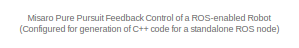
[diagram: controller - part 1/4, top center region]
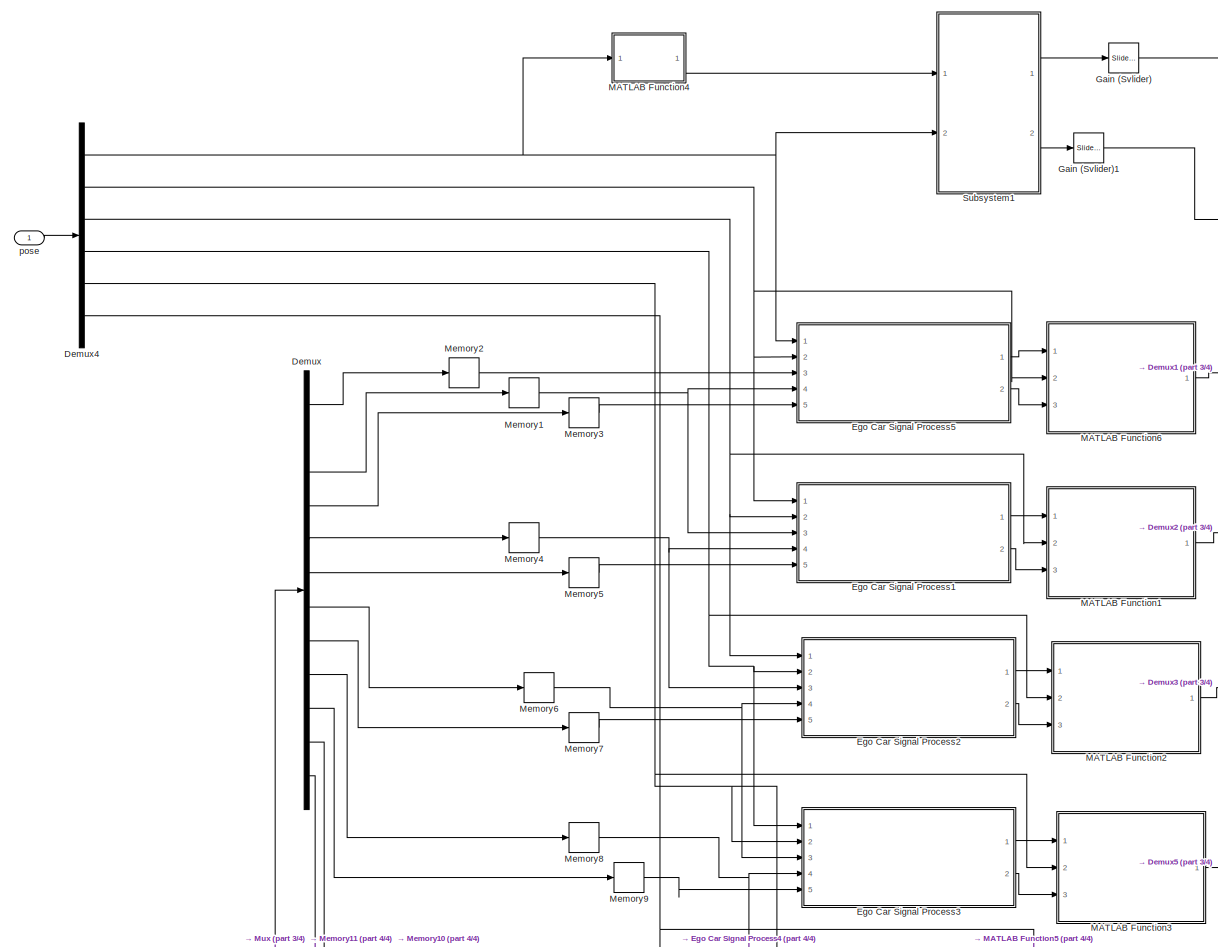
[diagram: controller - part 2/4, middle left region]
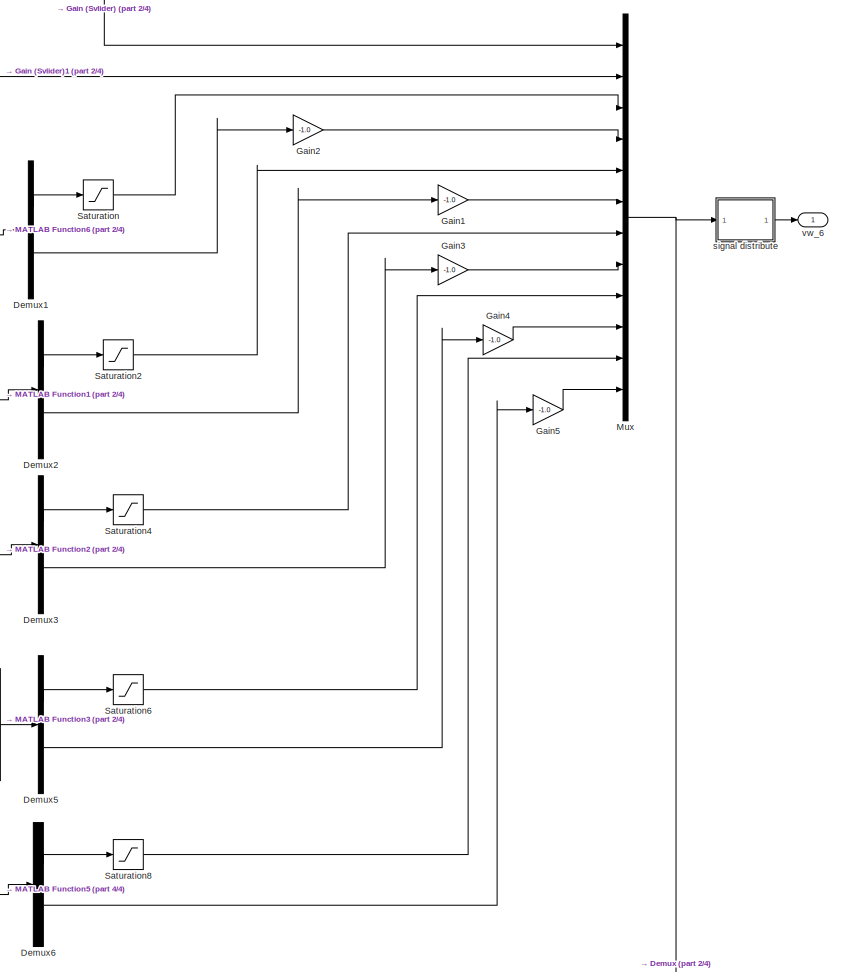
[diagram: controller - part 3/4, middle right region]
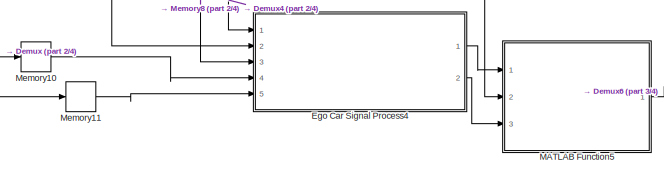
[diagram: controller - part 4/4, bottom center region]
BLOCK [SubSystem] controller
  Ports = [1, 1]
  RequestExecContextInheritance = off
BLOCK [Demux] controller/Demux
  Outputs = 12
  Ports = [1, 12]
BLOCK [Demux] controller/Demux1
  Outputs = 2
  Ports = [1, 2]
BLOCK [Demux] controller/Demux2
  Outputs = 2
  Ports = [1, 2]
BLOCK [Demux] controller/Demux3
  Outputs = 2
  Ports = [1, 2]
BLOCK [Demux] controller/Demux4
  Outputs = 6
  Ports = [1, 6]
BLOCK [Demux] controller/Demux5
  Outputs = 2
  Ports = [1, 2]
BLOCK [Demux] controller/Demux6
  Outputs = 2
  Ports = [1, 2]
BLOCK [SubSystem] controller/Ego Car Signal Process1
  Ports = [5, 2]
  RequestExecContextInheritance = off
BLOCK [Delay] controller/Ego Car Signal Process1/Delay
  DelayLength = 1
  InitialCondition = 0
  InputPortMap = u0
  Ports = [1, 1]
BLOCK [SubSystem] controller/Ego Car Signal Process1/Signal Process
  ErrorFcn = Stateflow.Translate.translate
  PermitHierarchicalResolution = ExplicitOnly
  Ports = [6, 2]
  RequestExecContextInheritance = off
  SFBlockType = MATLAB Function
  TreatAsAtomicUnit = on
BLOCK [Demux] controller/Ego Car Signal Process1/Signal Process/ Demux 
  Outputs = 1
  Ports = [1, 1]
BLOCK [S-Function] controller/Ego Car Signal Process1/Signal Process/ SFunction 
  EnableBusSupport = on
  FunctionName = sf_sfun
  PortCounts = [6 3]
  Ports = [6, 3]
  SFcnIsStateOwnerBlock = off
  SFunctionDeploymentMode = off
  Tag = Stateflow S-Function 5
BLOCK [Terminator] controller/Ego Car Signal Process1/Signal Process/ Terminator 
BLOCK [Inport] controller/Ego Car Signal Process1/Signal Process/ego_linear_vel
  Port = 4
BLOCK [Inport] controller/Ego Car Signal Process1/Signal Process/ego_omega_vel
  Port = 5
BLOCK [Inport] controller/Ego Car Signal Process1/Signal Process/last_ego_omega_vel
  Port = 6
BLOCK [Inport] controller/Ego Car Signal Process1/Signal Process/leader_linear_vel
  Port = 3
BLOCK [Outport] controller/Ego Car Signal Process1/Signal Process/obs_flag
  Port = 2
BLOCK [Outport] controller/Ego Car Signal Process1/Signal Process/observation
BLOCK [Inport] controller/Ego Car Signal Process1/Signal Process/pose1
BLOCK [Inport] controller/Ego Car Signal Process1/Signal Process/pose2
  Port = 2
BLOCK [Inport] controller/Ego Car Signal Process1/ego_linear_vel
  Port = 4
BLOCK [Inport] controller/Ego Car Signal Process1/ego_omega_vel
  Port = 5
BLOCK [Inport] controller/Ego Car Signal Process1/leader_linear_vel
  Port = 3
BLOCK [Outport] controller/Ego Car Signal Process1/obs
BLOCK [Outport] controller/Ego Car Signal Process1/obs_flag
  Port = 2
BLOCK [Inport] controller/Ego Car Signal Process1/pose1
BLOCK [Inport] controller/Ego Car Signal Process1/pose2
  Port = 2
BLOCK [SubSystem] controller/Ego Car Signal Process2
  Ports = [5, 2]
  RequestExecContextInheritance = off
BLOCK [Delay] controller/Ego Car Signal Process2/Delay
  DelayLength = 1
  InitialCondition = 0
  InputPortMap = u0
  Ports = [1, 1]
BLOCK [SubSystem] controller/Ego Car Signal Process2/Signal Process
  ErrorFcn = Stateflow.Translate.translate
  PermitHierarchicalResolution = ExplicitOnly
  Ports = [6, 2]
  RequestExecContextInheritance = off
  SFBlockType = MATLAB Function
  TreatAsAtomicUnit = on
BLOCK [Demux] controller/Ego Car Signal Process2/Signal Process/ Demux 
  Outputs = 1
  Ports = [1, 1]
BLOCK [S-Function] controller/Ego Car Signal Process2/Signal Process/ SFunction 
  EnableBusSupport = on
  FunctionName = sf_sfun
  PortCounts = [6 3]
  Ports = [6, 3]
  SFcnIsStateOwnerBlock = off
  SFunctionDeploymentMode = off
  Tag = Stateflow S-Function 12
BLOCK [Terminator] controller/Ego Car Signal Process2/Signal Process/ Terminator 
BLOCK [Inport] controller/Ego Car Signal Process2/Signal Process/ego_linear_vel
  Port = 4
BLOCK [Inport] controller/Ego Car Signal Process2/Signal Process/ego_omega_vel
  Port = 5
BLOCK [Inport] controller/Ego Car Signal Process2/Signal Process/last_ego_omega_vel
  Port = 6
BLOCK [Inport] controller/Ego Car Signal Process2/Signal Process/leader_linear_vel
  Port = 3
BLOCK [Outport] controller/Ego Car Signal Process2/Signal Process/obs_flag
  Port = 2
BLOCK [Outport] controller/Ego Car Signal Process2/Signal Process/observation
BLOCK [Inport] controller/Ego Car Signal Process2/Signal Process/pose1
BLOCK [Inport] controller/Ego Car Signal Process2/Signal Process/pose2
  Port = 2
BLOCK [Inport] controller/Ego Car Signal Process2/ego_linear_vel
  Port = 4
BLOCK [Inport] controller/Ego Car Signal Process2/ego_omega_vel
  Port = 5
BLOCK [Inport] controller/Ego Car Signal Process2/leader_linear_vel
  Port = 3
BLOCK [Outport] controller/Ego Car Signal Process2/obs
BLOCK [Outport] controller/Ego Car Signal Process2/obs_flag
  Port = 2
BLOCK [Inport] controller/Ego Car Signal Process2/pose1
BLOCK [Inport] controller/Ego Car Signal Process2/pose2
  Port = 2
BLOCK [SubSystem] controller/Ego Car Signal Process3
  Ports = [5, 2]
  RequestExecContextInheritance = off
BLOCK [Delay] controller/Ego Car Signal Process3/Delay
  DelayLength = 1
  InitialCondition = 0
  InputPortMap = u0
  Ports = [1, 1]
BLOCK [SubSystem] controller/Ego Car Signal Process3/Signal Process
  ErrorFcn = Stateflow.Translate.translate
  PermitHierarchicalResolution = ExplicitOnly
  Ports = [6, 2]
  RequestExecContextInheritance = off
  SFBlockType = MATLAB Function
  TreatAsAtomicUnit = on
BLOCK [Demux] controller/Ego Car Signal Process3/Signal Process/ Demux 
  Outputs = 1
  Ports = [1, 1]
BLOCK [S-Function] controller/Ego Car Signal Process3/Signal Process/ SFunction 
  EnableBusSupport = on
  FunctionName = sf_sfun
  PortCounts = [6 3]
  Ports = [6, 3]
  SFcnIsStateOwnerBlock = off
  SFunctionDeploymentMode = off
  Tag = Stateflow S-Function 18
BLOCK [Terminator] controller/Ego Car Signal Process3/Signal Process/ Terminator 
BLOCK [Inport] controller/Ego Car Signal Process3/Signal Process/ego_linear_vel
  Port = 4
BLOCK [Inport] controller/Ego Car Signal Process3/Signal Process/ego_omega_vel
  Port = 5
BLOCK [Inport] controller/Ego Car Signal Process3/Signal Process/last_ego_omega_vel
  Port = 6
BLOCK [Inport] controller/Ego Car Signal Process3/Signal Process/leader_linear_vel
  Port = 3
BLOCK [Outport] controller/Ego Car Signal Process3/Signal Process/obs_flag
  Port = 2
BLOCK [Outport] controller/Ego Car Signal Process3/Signal Process/observation
BLOCK [Inport] controller/Ego Car Signal Process3/Signal Process/pose1
BLOCK [Inport] controller/Ego Car Signal Process3/Signal Process/pose2
  Port = 2
BLOCK [Inport] controller/Ego Car Signal Process3/ego_linear_vel
  Port = 4
BLOCK [Inport] controller/Ego Car Signal Process3/ego_omega_vel
  Port = 5
BLOCK [Inport] controller/Ego Car Signal Process3/leader_linear_vel
  Port = 3
BLOCK [Outport] controller/Ego Car Signal Process3/obs
BLOCK [Outport] controller/Ego Car Signal Process3/obs_flag
  Port = 2
BLOCK [Inport] controller/Ego Car Signal Process3/pose1
BLOCK [Inport] controller/Ego Car Signal Process3/pose2
  Port = 2
BLOCK [SubSystem] controller/Ego Car Signal Process4
  Ports = [5, 2]
  RequestExecContextInheritance = off
BLOCK [Delay] controller/Ego Car Signal Process4/Delay
  DelayLength = 1
  InitialCondition = 0
  InputPortMap = u0
  Ports = [1, 1]
BLOCK [SubSystem] controller/Ego Car Signal Process4/Signal Process
  ErrorFcn = Stateflow.Translate.translate
  PermitHierarchicalResolution = ExplicitOnly
  Ports = [6, 2]
  RequestExecContextInheritance = off
  SFBlockType = MATLAB Function
  TreatAsAtomicUnit = on
BLOCK [Demux] controller/Ego Car Signal Process4/Signal Process/ Demux 
  Outputs = 1
  Ports = [1, 1]
BLOCK [S-Function] controller/Ego Car Signal Process4/Signal Process/ SFunction 
  EnableBusSupport = on
  FunctionName = sf_sfun
  PortCounts = [6 3]
  Ports = [6, 3]
  SFcnIsStateOwnerBlock = off
  SFunctionDeploymentMode = off
  Tag = Stateflow S-Function 23
BLOCK [Terminator] controller/Ego Car Signal Process4/Signal Process/ Terminator 
BLOCK [Inport] controller/Ego Car Signal Process4/Signal Process/ego_linear_vel
  Port = 4
BLOCK [Inport] controller/Ego Car Signal Process4/Signal Process/ego_omega_vel
  Port = 5
BLOCK [Inport] controller/Ego Car Signal Process4/Signal Process/last_ego_omega_vel
  Port = 6
BLOCK [Inport] controller/Ego Car Signal Process4/Signal Process/leader_linear_vel
  Port = 3
BLOCK [Outport] controller/Ego Car Signal Process4/Signal Process/obs_flag
  Port = 2
BLOCK [Outport] controller/Ego Car Signal Process4/Signal Process/observation
BLOCK [Inport] controller/Ego Car Signal Process4/Signal Process/pose1
BLOCK [Inport] controller/Ego Car Signal Process4/Signal Process/pose2
  Port = 2
BLOCK [Inport] controller/Ego Car Signal Process4/ego_linear_vel
  Port = 4
BLOCK [Inport] controller/Ego Car Signal Process4/ego_omega_vel
  Port = 5
BLOCK [Inport] controller/Ego Car Signal Process4/leader_linear_vel
  Port = 3
BLOCK [Outport] controller/Ego Car Signal Process4/obs
BLOCK [Outport] controller/Ego Car Signal Process4/obs_flag
  Port = 2
BLOCK [Inport] controller/Ego Car Signal Process4/pose1
BLOCK [Inport] controller/Ego Car Signal Process4/pose2
  Port = 2
BLOCK [SubSystem] controller/Ego Car Signal Process5
  Ports = [5, 2]
  RequestExecContextInheritance = off
BLOCK [Delay] controller/Ego Car Signal Process5/Delay
  DelayLength = 1
  InitialCondition = 0
  InputPortMap = u0
  Ports = [1, 1]
BLOCK [SubSystem] controller/Ego Car Signal Process5/Signal Process
  ErrorFcn = Stateflow.Translate.translate
  PermitHierarchicalResolution = ExplicitOnly
  Ports = [6, 2]
  RequestExecContextInheritance = off
  SFBlockType = MATLAB Function
  TreatAsAtomicUnit = on
BLOCK [Demux] controller/Ego Car Signal Process5/Signal Process/ Demux 
  Outputs = 1
  Ports = [1, 1]
BLOCK [S-Function] controller/Ego Car Signal Process5/Signal Process/ SFunction 
  EnableBusSupport = on
  FunctionName = sf_sfun
  PortCounts = [6 3]
  Ports = [6, 3]
  SFcnIsStateOwnerBlock = off
  SFunctionDeploymentMode = off
  Tag = Stateflow S-Function 32
BLOCK [Terminator] controller/Ego Car Signal Process5/Signal Process/ Terminator 
BLOCK [Inport] controller/Ego Car Signal Process5/Signal Process/ego_linear_vel
  Port = 4
BLOCK [Inport] controller/Ego Car Signal Process5/Signal Process/ego_omega_vel
  Port = 5
BLOCK [Inport] controller/Ego Car Signal Process5/Signal Process/last_ego_omega_vel
  Port = 6
BLOCK [Inport] controller/Ego Car Signal Process5/Signal Process/leader_linear_vel
  Port = 3
BLOCK [Outport] controller/Ego Car Signal Process5/Signal Process/obs_flag
  Port = 2
BLOCK [Outport] controller/Ego Car Signal Process5/Signal Process/observation
BLOCK [Inport] controller/Ego Car Signal Process5/Signal Process/pose1
BLOCK [Inport] controller/Ego Car Signal Process5/Signal Process/pose2
  Port = 2
BLOCK [Inport] controller/Ego Car Signal Process5/ego_linear_vel
  Port = 4
BLOCK [Inport] controller/Ego Car Signal Process5/ego_omega_vel
  Port = 5
BLOCK [Inport] controller/Ego Car Signal Process5/leader_linear_vel
  Port = 3
BLOCK [Outport] controller/Ego Car Signal Process5/obs
BLOCK [Outport] controller/Ego Car Signal Process5/obs_flag
  Port = 2
BLOCK [Inport] controller/Ego Car Signal Process5/pose1
BLOCK [Inport] controller/Ego Car Signal Process5/pose2
  Port = 2
BLOCK [Reference] controller/Gain (Svlider)  REF=simulink/Math
Operations/Slider
Gain
  Ports = [1, 1]
  SourceBlock = simulink/Math\nOperations/Slider\nGain
  SourceProductBaseCode = SL
  SourceType = Slider Gain
BLOCK [Reference] controller/Gain (Svlider)1  REF=simulink/Math
Operations/Slider
Gain
  Ports = [1, 1]
  SourceBlock = simulink/Math\nOperations/Slider\nGain
  SourceProductBaseCode = SL
  SourceType = Slider Gain
BLOCK [Gain] controller/Gain1
  Gain = -1.0
BLOCK [Gain] controller/Gain2
  Gain = -1.0
BLOCK [Gain] controller/Gain3
  Gain = -1.0
BLOCK [Gain] controller/Gain4
  Gain = -1.0
BLOCK [Gain] controller/Gain5
  Gain = -1.0
BLOCK [SubSystem] controller/MATLAB Function1
  ErrorFcn = Stateflow.Translate.translate
  PermitHierarchicalResolution = ExplicitOnly
  Ports = [3, 1]
  RequestExecContextInheritance = off
  SFBlockType = MATLAB Function
  TreatAsAtomicUnit = on
BLOCK [Demux] controller/MATLAB Function1/ Demux 
  Outputs = 1
  Ports = [1, 1]
BLOCK [S-Function] controller/MATLAB Function1/ SFunction 
  EnableBusSupport = on
  FunctionName = sf_sfun
  PortCounts = [3 2]
  Ports = [3, 2]
  SFcnIsStateOwnerBlock = off
  SFunctionDeploymentMode = off
  Tag = Stateflow S-Function 8
BLOCK [Terminator] controller/MATLAB Function1/ Terminator 
BLOCK [Outport] controller/MATLAB Function1/action
BLOCK [Inport] controller/MATLAB Function1/obs
BLOCK [Inport] controller/MATLAB Function1/obs_flag
  Port = 3
BLOCK [Inport] controller/MATLAB Function1/pose2
  Port = 2
BLOCK [SubSystem] controller/MATLAB Function2
  ErrorFcn = Stateflow.Translate.translate
  PermitHierarchicalResolution = ExplicitOnly
  Ports = [3, 1]
  RequestExecContextInheritance = off
  SFBlockType = MATLAB Function
  TreatAsAtomicUnit = on
BLOCK [Demux] controller/MATLAB Function2/ Demux 
  Outputs = 1
  Ports = [1, 1]
BLOCK [S-Function] controller/MATLAB Function2/ SFunction 
  EnableBusSupport = on
  FunctionName = sf_sfun
  PortCounts = [3 2]
  Ports = [3, 2]
  SFcnIsStateOwnerBlock = off
  SFunctionDeploymentMode = off
  Tag = Stateflow S-Function 17
BLOCK [Terminator] controller/MATLAB Function2/ Terminator 
BLOCK [Outport] controller/MATLAB Function2/action
BLOCK [Inport] controller/MATLAB Function2/obs
BLOCK [Inport] controller/MATLAB Function2/obs_flag
  Port = 3
BLOCK [Inport] controller/MATLAB Function2/pose2
  Port = 2
BLOCK [SubSystem] controller/MATLAB Function3
  ErrorFcn = Stateflow.Translate.translate
  PermitHierarchicalResolution = ExplicitOnly
  Ports = [3, 1]
  RequestExecContextInheritance = off
  SFBlockType = MATLAB Function
  TreatAsAtomicUnit = on
BLOCK [Demux] controller/MATLAB Function3/ Demux 
  Outputs = 1
  Ports = [1, 1]
BLOCK [S-Function] controller/MATLAB Function3/ SFunction 
  EnableBusSupport = on
  FunctionName = sf_sfun
  PortCounts = [3 2]
  Ports = [3, 2]
  SFcnIsStateOwnerBlock = off
  SFunctionDeploymentMode = off
  Tag = Stateflow S-Function 19
BLOCK [Terminator] controller/MATLAB Function3/ Terminator 
BLOCK [Outport] controller/MATLAB Function3/action
BLOCK [Inport] controller/MATLAB Function3/obs
BLOCK [Inport] controller/MATLAB Function3/obs_flag
  Port = 3
BLOCK [Inport] controller/MATLAB Function3/pose2
  Port = 2
BLOCK [SubSystem] controller/MATLAB Function4
  ErrorFcn = Stateflow.Translate.translate
  PermitHierarchicalResolution = ExplicitOnly
  Ports = [1, 1]
  RequestExecContextInheritance = off
  SFBlockType = MATLAB Function
  TreatAsAtomicUnit = on
BLOCK [Demux] controller/MATLAB Function4/ Demux 
  Outputs = 1
  Ports = [1, 1]
BLOCK [S-Function] controller/MATLAB Function4/ SFunction 
  EnableBusSupport = on
  FunctionName = sf_sfun
  PortCounts = [1 2]
  Ports = [1, 2]
  SFcnIsStateOwnerBlock = off
  SFunctionDeploymentMode = off
  Tag = Stateflow S-Function 11
BLOCK [Terminator] controller/MATLAB Function4/ Terminator 
BLOCK [Inport] controller/MATLAB Function4/pos1
BLOCK [Outport] controller/MATLAB Function4/z
BLOCK [SubSystem] controller/MATLAB Function5
  ErrorFcn = Stateflow.Translate.translate
  PermitHierarchicalResolution = ExplicitOnly
  Ports = [3, 1]
  RequestExecContextInheritance = off
  SFBlockType = MATLAB Function
  TreatAsAtomicUnit = on
BLOCK [Demux] controller/MATLAB Function5/ Demux 
  Outputs = 1
  Ports = [1, 1]
BLOCK [S-Function] controller/MATLAB Function5/ SFunction 
  EnableBusSupport = on
  FunctionName = sf_sfun
  PortCounts = [3 2]
  Ports = [3, 2]
  SFcnIsStateOwnerBlock = off
  SFunctionDeploymentMode = off
  Tag = Stateflow S-Function 22
BLOCK [Terminator] controller/MATLAB Function5/ Terminator 
BLOCK [Outport] controller/MATLAB Function5/action
BLOCK [Inport] controller/MATLAB Function5/obs
BLOCK [Inport] controller/MATLAB Function5/obs_flag
  Port = 3
BLOCK [Inport] controller/MATLAB Function5/pose2
  Port = 2
BLOCK [SubSystem] controller/MATLAB Function6
  ErrorFcn = Stateflow.Translate.translate
  PermitHierarchicalResolution = ExplicitOnly
  Ports = [3, 1]
  RequestExecContextInheritance = off
  SFBlockType = MATLAB Function
  TreatAsAtomicUnit = on
BLOCK [Demux] controller/MATLAB Function6/ Demux 
  Outputs = 1
  Ports = [1, 1]
BLOCK [S-Function] controller/MATLAB Function6/ SFunction 
  EnableBusSupport = on
  FunctionName = sf_sfun
  PortCounts = [3 2]
  Ports = [3, 2]
  SFcnIsStateOwnerBlock = off
  SFunctionDeploymentMode = off
  Tag = Stateflow S-Function 24
BLOCK [Terminator] controller/MATLAB Function6/ Terminator 
BLOCK [Outport] controller/MATLAB Function6/action
BLOCK [Inport] controller/MATLAB Function6/obs
BLOCK [Inport] controller/MATLAB Function6/obs_flag
  Port = 3
BLOCK [Inport] controller/MATLAB Function6/pose2
  Port = 2
BLOCK [Memory] controller/Memory1
  InitialCondition = 0.2
BLOCK [Memory] controller/Memory10
  InitialCondition = 0.2
BLOCK [Memory] controller/Memory11
BLOCK [Memory] controller/Memory2
  InitialCondition = 0.2
BLOCK [Memory] controller/Memory3
BLOCK [Memory] controller/Memory4
  InitialCondition = 0.2
BLOCK [Memory] controller/Memory5
BLOCK [Memory] controller/Memory6
  InitialCondition = 0.2
BLOCK [Memory] controller/Memory7
BLOCK [Memory] controller/Memory8
  InitialCondition = 0.2
BLOCK [Memory] controller/Memory9
BLOCK [Mux] controller/Mux
  DisplayOption = bar
  Inputs = 12
  Ports = [12, 1]
BLOCK [Saturate] controller/Saturation
  LowerLimit = 0.1
  OutDataTypeStr = double
BLOCK [Saturate] controller/Saturation2
  LowerLimit = 0.1
  OutDataTypeStr = double
BLOCK [Saturate] controller/Saturation4
  LowerLimit = 0.1
  OutDataTypeStr = double
BLOCK [Saturate] controller/Saturation6
  LowerLimit = 0.1
  OutDataTypeStr = double
BLOCK [Saturate] controller/Saturation8
  LowerLimit = 0.1
  OutDataTypeStr = double
BLOCK [SubSystem] controller/Subsystem1
  Ports = [2, 2]
  RequestExecContextInheritance = off
BLOCK [Constant] controller/Subsystem1/0
  Value = 0
BLOCK [Constant] controller/Subsystem1/1
  Value = 0
BLOCK [SubSystem] controller/Subsystem1/Adjust Velocities to Avoid Obstacles
  Ports = [2, 1]
  RequestExecContextInheritance = off
BLOCK [SubSystem] controller/Subsystem1/Adjust Velocities to Avoid Obstacles/Path Following
  Ports = [2, 1]
  RequestExecContextInheritance = off
  TreatAsAtomicUnit = on
BLOCK [Inport] controller/Subsystem1/Adjust Velocities to Avoid Obstacles/Path Following/AngularVelocity
  Port = 2
BLOCK [SubSystem] controller/Subsystem1/Adjust Velocities to Avoid Obstacles/Path Following/Compute Angular Velocity
  ErrorFcn = Stateflow.Translate.translate
  PermitHierarchicalResolution = ExplicitOnly
  Ports = [2, 1]
  RequestExecContextInheritance = off
  SFBlockType = MATLAB Function
  TreatAsAtomicUnit = on
BLOCK [Demux] controller/Subsystem1/Adjust Velocities to Avoid Obstacles/Path Following/Compute Angular Velocity/ Demux 
  Outputs = 1
  Ports = [1, 1]
BLOCK [S-Function] controller/Subsystem1/Adjust Velocities to Avoid Obstacles/Path Following/Compute Angular Velocity/ SFunction 
  EnableBusSupport = on
  FunctionName = sf_sfun
  PortCounts = [2 2]
  Ports = [2, 2]
  SFcnIsStateOwnerBlock = off
  SFunctionDeploymentMode = off
  Tag = Stateflow S-Function 6
BLOCK [Terminator] controller/Subsystem1/Adjust Velocities to Avoid Obstacles/Path Following/Compute Angular Velocity/ Terminator 
BLOCK [Inport] controller/Subsystem1/Adjust Velocities to Avoid Obstacles/Path Following/Compute Angular Velocity/steeringDir
BLOCK [Outport] controller/Subsystem1/Adjust Velocities to Avoid Obstacles/Path Following/Compute Angular Velocity/w
  VectorParamsAs1DForOutWhenUnconnected = off
BLOCK [Inport] controller/Subsystem1/Adjust Velocities to Avoid Obstacles/Path Following/Compute Angular Velocity/wMax
  Port = 2
BLOCK [Constant] controller/Subsystem1/Adjust Velocities to Avoid Obstacles/Path Following/MaxAngularVelocity
BLOCK [Inport] controller/Subsystem1/Adjust Velocities to Avoid Obstacles/Path Following/SteeringDirection
BLOCK [Sum] controller/Subsystem1/Adjust Velocities to Avoid Obstacles/Path Following/Subtract
  IconShape = rectangular
  Inputs = +-
  Ports = [2, 1]
BLOCK [Outport] controller/Subsystem1/Adjust Velocities to Avoid Obstacles/Path Following/dW
  VectorParamsAs1DForOutWhenUnconnected = off
BLOCK [Inport] controller/Subsystem1/Adjust Velocities to Avoid Obstacles/TargetDir
BLOCK [Inport] controller/Subsystem1/Adjust Velocities to Avoid Obstacles/W
  Port = 2
BLOCK [Outport] controller/Subsystem1/Adjust Velocities to Avoid Obstacles/dW
  VectorParamsAs1DForOutWhenUnconnected = off
BLOCK [SubSystem] controller/Subsystem1/Compute Velocity and Heading for Path following
  Ports = [2, 4]
  RequestExecContextInheritance = off
BLOCK [SubSystem] controller/Subsystem1/Compute Velocity and Heading for Path following/ Extract Goal
  ErrorFcn = Stateflow.Translate.translate
  PermitHierarchicalResolution = ExplicitOnly
  Ports = [1, 1]
  RequestExecContextInheritance = off
  SFBlockType = MATLAB Function
  TreatAsAtomicUnit = on
BLOCK [Demux] controller/Subsystem1/Compute Velocity and Heading for Path following/ Extract Goal/ Demux 
  Outputs = 1
  Ports = [1, 1]
BLOCK [S-Function] controller/Subsystem1/Compute Velocity and Heading for Path following/ Extract Goal/ SFunction 
  EnableBusSupport = on
  FunctionName = sf_sfun
  PortCounts = [1 2]
  Ports = [1, 2]
  SFcnIsStateOwnerBlock = off
  SFunctionDeploymentMode = off
  Tag = Stateflow S-Function 7
BLOCK [Terminator] controller/Subsystem1/Compute Velocity and Heading for Path following/ Extract Goal/ Terminator 
BLOCK [Outport] controller/Subsystem1/Compute Velocity and Heading for Path following/ Extract Goal/Goal
  VectorParamsAs1DForOutWhenUnconnected = off
BLOCK [Inport] controller/Subsystem1/Compute Velocity and Heading for Path following/ Extract Goal/Waypoints
BLOCK [Outport] controller/Subsystem1/Compute Velocity and Heading for Path following/CloseToGoal
  Port = 4
  VectorParamsAs1DForOutWhenUnconnected = off
BLOCK [Inport] controller/Subsystem1/Compute Velocity and Heading for Path following/CurrentPose
BLOCK [DotProduct] controller/Subsystem1/Compute Velocity and Heading for Path following/Dot Product
  OutDataTypeStr = Inherit: Inherit via internal rule
BLOCK [Constant] controller/Subsystem1/Compute Velocity and Heading for Path following/GoalRadius
  Value = 0.1
BLOCK [Reference] controller/Subsystem1/Compute Velocity and Heading for Path following/Pure Pursuit  REF=robotalgslib/Pure Pursuit
  Ports = [2, 3]
  SourceBlock = robotalgslib/Pure Pursuit
  SourceProductBaseCode = NV,RO
  SourceType = nav.slalgs.internal.PurePursuit
BLOCK [RelationalOperator] controller/Subsystem1/Compute Velocity and Heading for Path following/Relational Operator
  InputSameDT = off
  Operator = <=
  OutDataTypeStr = boolean
  Ports = [2, 1]
  RndMeth = Simplest
BLOCK [Selector] controller/Subsystem1/Compute Velocity and Heading for Path following/Selector
  IndexOptions = Index vector (dialog)
  Indices = [1 2]
  InputPortWidth = 3
  OutputSizes = 1
  Ports = [1, 1]
BLOCK [Sqrt] controller/Subsystem1/Compute Velocity and Heading for Path following/Sqrt
BLOCK [Sum] controller/Subsystem1/Compute Velocity and Heading for Path following/Subtract
  IconShape = rectangular
  Inputs = +-
  Ports = [2, 1]
BLOCK [Outport] controller/Subsystem1/Compute Velocity and Heading for Path following/TargetDir
  VectorParamsAs1DForOutWhenUnconnected = off
BLOCK [Outport] controller/Subsystem1/Compute Velocity and Heading for Path following/V
  Port = 2
  VectorParamsAs1DForOutWhenUnconnected = off
BLOCK [Outport] controller/Subsystem1/Compute Velocity and Heading for Path following/W
  Port = 3
  VectorParamsAs1DForOutWhenUnconnected = off
BLOCK [Inport] controller/Subsystem1/Compute Velocity and Heading for Path following/Waypoints
  Port = 2
BLOCK [Constant] controller/Subsystem1/Constant1
  Value = scanAngles
BLOCK [SubSystem] controller/Subsystem1/Outputs1
  Ports = [5, 2]
  RequestExecContextInheritance = off
BLOCK [Sum] controller/Subsystem1/Outputs1/Add
  IconShape = rectangular
  Ports = [2, 1]
BLOCK [Sum] controller/Subsystem1/Outputs1/Add1
  IconShape = rectangular
  Ports = [2, 1]
BLOCK [Inport] controller/Subsystem1/Outputs1/CloseToGoal
  Port = 5
BLOCK [Logic] controller/Subsystem1/Outputs1/Logical Operator
  AllPortsSameDT = off
  Operator = NOT
  OutDataTypeStr = boolean
  Ports = [1, 1]
BLOCK [Product] controller/Subsystem1/Outputs1/Product
  Ports = [2, 1]
BLOCK [Product] controller/Subsystem1/Outputs1/Product1
  Ports = [2, 1]
BLOCK [Inport] controller/Subsystem1/Outputs1/V
  Port = 3
BLOCK [Inport] controller/Subsystem1/Outputs1/W
  Port = 4
BLOCK [Inport] controller/Subsystem1/Outputs1/dV
BLOCK [Inport] controller/Subsystem1/Outputs1/dW
  Port = 2
BLOCK [Outport] controller/Subsystem1/Outputs1/v
BLOCK [Outport] controller/Subsystem1/Outputs1/w
  Port = 2
BLOCK [Inport] controller/Subsystem1/Pose
  Port = 2
BLOCK [Inport] controller/Subsystem1/WayPoints
BLOCK [Outport] controller/Subsystem1/v
BLOCK [Outport] controller/Subsystem1/w
  Port = 2
BLOCK [Inport] controller/pose
BLOCK [SubSystem] controller/signal distribute
  Ports = [1, 1]
  RequestExecContextInheritance = off
BLOCK [Demux] controller/signal distribute/Demux5
  Outputs = 12
  Ports = [1, 12]
BLOCK [Inport] controller/signal distribute/In1
BLOCK [Mux] controller/signal distribute/Mux1
  DisplayOption = bar
  Inputs = 2
  Ports = [2, 1]
BLOCK [Mux] controller/signal distribute/Mux2
  DisplayOption = bar
  Inputs = 6
  Ports = [6, 1]
BLOCK [Mux] controller/signal distribute/Mux3
  DisplayOption = bar
  Inputs = 2
  Ports = [2, 1]
BLOCK [Mux] controller/signal distribute/Mux4
  DisplayOption = bar
  Inputs = 2
  Ports = [2, 1]
BLOCK [Mux] controller/signal distribute/Mux5
  DisplayOption = bar
  Inputs = 2
  Ports = [2, 1]
BLOCK [Mux] controller/signal distribute/Mux6
  DisplayOption = bar
  Inputs = 2
  Ports = [2, 1]
BLOCK [Mux] controller/signal distribute/Mux7
  DisplayOption = bar
  Inputs = 2
  Ports = [2, 1]
BLOCK [Outport] controller/signal distribute/Out1
BLOCK [Outport] controller/vw_6
ANNOTATION (root): Multi-Robot controller
ANNOTATION Subsystem/Car Pose Listener/Subsystem/DiffSteer Kinematics: Differential Steered (Unicycle-like) Kinematics
ANNOTATION Subsystem/Car Pose Listener/Subsystem/DiffSteer Kinematics: Initial conditions define initial pose
ANNOTATION Subsystem/Car Pose Listener1/Subsystem/DiffSteer Kinematics: Differential Steered (Unicycle-like) Kinematics
ANNOTATION Subsystem/Car Pose Listener1/Subsystem/DiffSteer Kinematics: Initial conditions define initial pose
ANNOTATION Subsystem/Car Pose Listener2/Subsystem/DiffSteer Kinematics: Differential Steered (Unicycle-like) Kinematics
ANNOTATION Subsystem/Car Pose Listener2/Subsystem/DiffSteer Kinematics: Initial conditions define initial pose
ANNOTATION Subsystem/Car Pose Listener3/Subsystem/DiffSteer Kinematics: Differential Steered (Unicycle-like) Kinematics
ANNOTATION Subsystem/Car Pose Listener3/Subsystem/DiffSteer Kinematics: Initial conditions define initial pose
ANNOTATION Subsystem/Car Pose Listener4/Subsystem/DiffSteer Kinematics: Differential Steered (Unicycle-like) Kinematics
ANNOTATION Subsystem/Car Pose Listener4/Subsystem/DiffSteer Kinematics: Initial conditions define initial pose
ANNOTATION Subsystem/Car Pose Listener5/Subsystem/DiffSteer Kinematics: Differential Steered (Unicycle-like) Kinematics
ANNOTATION Subsystem/Car Pose Listener5/Subsystem/DiffSteer Kinematics: Initial conditions define initial pose
ANNOTATION controller: Misaro Pure Pursuit Feedback Control of a ROS-enabled Robot (Configured for generation of C++ code for a standalone ROS node)
ANNOTATION controller/Subsystem1/Compute Velocity and Heading for Path following: Check If Close To Goal
LINE Demux2:1 -> Subsystem:1
LINE Demux2:2 -> Subsystem:2
LINE Demux2:3 -> Subsystem:3
LINE Demux2:4 -> Subsystem:4
LINE Demux2:5 -> Subsystem:5
LINE Demux2:6 -> Subsystem:6
LINE Mux2:1 -> controller:1
LINE Subsystem/Car Pose Listener/Subscribe1:1 -> Subsystem/Car Pose Listener/Subsystem:3
LINE Subsystem/Car Pose Listener/Subscribe1:2 -> Subsystem/Car Pose Listener/Subsystem:4
LINE Subsystem/Car Pose Listener/Subscribe:1 -> Subsystem/Car Pose Listener/Subsystem:1
LINE Subsystem/Car Pose Listener/Subscribe:2 -> Subsystem/Car Pose Listener/Subsystem:2
NET Subsystem/Car Pose Listener/Subsystem/DiffSteer Kinematics/Constant:1 -> Subsystem/Car Pose Listener/Subsystem/DiffSteer Kinematics/a w cos(psi):3, Subsystem/Car Pose Listener/Subsystem/DiffSteer Kinematics/a w sin(psi):1
LINE Subsystem/Car Pose Listener/Subsystem/DiffSteer Kinematics/Discrete-Time Integrator1:1 -> Subsystem/Car Pose Listener/Subsystem/DiffSteer Kinematics/y:1
LINE Subsystem/Car Pose Listener/Subsystem/DiffSteer Kinematics/Discrete-Time Integrator2:1 -> Subsystem/Car Pose Listener/Subsystem/DiffSteer Kinematics/Sum2:1
LINE Subsystem/Car Pose Listener/Subsystem/DiffSteer Kinematics/Discrete-Time Integrator:1 -> Subsystem/Car Pose Listener/Subsystem/DiffSteer Kinematics/x:1
LINE Subsystem/Car Pose Listener/Subsystem/DiffSteer Kinematics/Sum1:1 -> Subsystem/Car Pose Listener/Subsystem/DiffSteer Kinematics/Discrete-Time Integrator1:1
NET Subsystem/Car Pose Listener/Subsystem/DiffSteer Kinematics/Sum2:1 -> Subsystem/Car Pose Listener/Subsystem/DiffSteer Kinematics/cos(psi):1, Subsystem/Car Pose Listener/Subsystem/DiffSteer Kinematics/psi:1, Subsystem/Car Pose Listener/Subsystem/DiffSteer Kinematics/sin(theta):1
LINE Subsystem/Car Pose Listener/Subsystem/DiffSteer Kinematics/Sum:1 -> Subsystem/Car Pose Listener/Subsystem/DiffSteer Kinematics/Discrete-Time Integrator:1
LINE Subsystem/Car Pose Listener/Subsystem/DiffSteer Kinematics/a w cos(psi):1 -> Subsystem/Car Pose Listener/Subsystem/DiffSteer Kinematics/Sum1:2
LINE Subsystem/Car Pose Listener/Subsystem/DiffSteer Kinematics/a w sin(psi):1 -> Subsystem/Car Pose Listener/Subsystem/DiffSteer Kinematics/Sum:1
NET Subsystem/Car Pose Listener/Subsystem/DiffSteer Kinematics/cos(psi):1 -> Subsystem/Car Pose Listener/Subsystem/DiffSteer Kinematics/a w cos(psi):1, Subsystem/Car Pose Listener/Subsystem/DiffSteer Kinematics/u cos(psi):1
LINE Subsystem/Car Pose Listener/Subsystem/DiffSteer Kinematics/reset1:1 -> Subsystem/Car Pose Listener/Subsystem/DiffSteer Kinematics/Discrete-Time Integrator:2
LINE Subsystem/Car Pose Listener/Subsystem/DiffSteer Kinematics/reset2:1 -> Subsystem/Car Pose Listener/Subsystem/DiffSteer Kinematics/Discrete-Time Integrator1:2
LINE Subsystem/Car Pose Listener/Subsystem/DiffSteer Kinematics/reset:1 -> Subsystem/Car Pose Listener/Subsystem/DiffSteer Kinematics/Discrete-Time Integrator2:2
NET Subsystem/Car Pose Listener/Subsystem/DiffSteer Kinematics/sin(theta):1 -> Subsystem/Car Pose Listener/Subsystem/DiffSteer Kinematics/a w sin(psi):3, Subsystem/Car Pose Listener/Subsystem/DiffSteer Kinematics/u sin(psi):1
LINE Subsystem/Car Pose Listener/Subsystem/DiffSteer Kinematics/u cos(psi):1 -> Subsystem/Car Pose Listener/Subsystem/DiffSteer Kinematics/Sum:2
LINE Subsystem/Car Pose Listener/Subsystem/DiffSteer Kinematics/u sin(psi):1 -> Subsystem/Car Pose Listener/Subsystem/DiffSteer Kinematics/Sum1:1
NET Subsystem/Car Pose Listener/Subsystem/DiffSteer Kinematics/u:1 -> Subsystem/Car Pose Listener/Subsystem/DiffSteer Kinematics/u cos(psi):2, Subsystem/Car Pose Listener/Subsystem/DiffSteer Kinematics/u sin(psi):2
NET Subsystem/Car Pose Listener/Subsystem/DiffSteer Kinematics/w:1 -> Subsystem/Car Pose Listener/Subsystem/DiffSteer Kinematics/Discrete-Time Integrator2:1, Subsystem/Car Pose Listener/Subsystem/DiffSteer Kinematics/a w cos(psi):2, Subsystem/Car Pose Listener/Subsystem/DiffSteer Kinematics/a w sin(psi):2
LINE Subsystem/Car Pose Listener/Subsystem/DiffSteer Kinematics/yaw0:1 -> Subsystem/Car Pose Listener/Subsystem/DiffSteer Kinematics/Sum2:2
LINE Subsystem/Car Pose Listener/Subsystem/DiffSteer Kinematics:1 -> Subsystem/Car Pose Listener/Subsystem/Sum:2
LINE Subsystem/Car Pose Listener/Subsystem/DiffSteer Kinematics:2 -> Subsystem/Car Pose Listener/Subsystem/Sum1:2
LINE Subsystem/Car Pose Listener/Subsystem/DiffSteer Kinematics:3 -> Subsystem/Car Pose Listener/Subsystem/Median Filter2:1
LINE Subsystem/Car Pose Listener/Subsystem/Median Filter1:1 -> Subsystem/Car Pose Listener/Subsystem/Mux7:2
LINE Subsystem/Car Pose Listener/Subsystem/Median Filter2:1 -> Subsystem/Car Pose Listener/Subsystem/Mux7:3
LINE Subsystem/Car Pose Listener/Subsystem/Median Filter:1 -> Subsystem/Car Pose Listener/Subsystem/Mux7:1
LINE Subsystem/Car Pose Listener/Subsystem/Mux7:1 -> Subsystem/Car Pose Listener/Subsystem/pose:1
LINE Subsystem/Car Pose Listener/Subsystem/Sum1:1 -> Subsystem/Car Pose Listener/Subsystem/Median Filter1:1
LINE Subsystem/Car Pose Listener/Subsystem/Sum:1 -> Subsystem/Car Pose Listener/Subsystem/Median Filter:1
LINE Subsystem/Car Pose Listener/Subsystem/VW_Msg:1 -> Subsystem/Car Pose Listener/Subsystem/sensor2vCar4:2
LINE Subsystem/Car Pose Listener/Subsystem/VW_New:1 -> Subsystem/Car Pose Listener/Subsystem/sensor2vCar4:1
LINE Subsystem/Car Pose Listener/Subsystem/poseMsg:1 -> Subsystem/Car Pose Listener/Subsystem/sensor2vCar:2
LINE Subsystem/Car Pose Listener/Subsystem/poseNew:1 -> Subsystem/Car Pose Listener/Subsystem/sensor2vCar:1
LINE Subsystem/Car Pose Listener/Subsystem/sensor2vCar4:1 -> Subsystem/Car Pose Listener/Subsystem/DiffSteer Kinematics:1
LINE Subsystem/Car Pose Listener/Subsystem/sensor2vCar4:2 -> Subsystem/Car Pose Listener/Subsystem/DiffSteer Kinematics:2
LINE Subsystem/Car Pose Listener/Subsystem/sensor2vCar:1 -> Subsystem/Car Pose Listener/Subsystem/Sum:1
LINE Subsystem/Car Pose Listener/Subsystem/sensor2vCar:2 -> Subsystem/Car Pose Listener/Subsystem/Sum1:1
LINE Subsystem/Car Pose Listener/Subsystem/sensor2vCar:3 -> Subsystem/Car Pose Listener/Subsystem/DiffSteer Kinematics:4
LINE Subsystem/Car Pose Listener/Subsystem/sensor2vCar:4 -> Subsystem/Car Pose Listener/Subsystem/DiffSteer Kinematics:3
LINE Subsystem/Car Pose Listener/Subsystem:1 -> Subsystem/Car Pose Listener/pose x-y-yaw:1
LINE Subsystem/Car Pose Listener1/Subscribe1:1 -> Subsystem/Car Pose Listener1/Subsystem:3
LINE Subsystem/Car Pose Listener1/Subscribe1:2 -> Subsystem/Car Pose Listener1/Subsystem:4
LINE Subsystem/Car Pose Listener1/Subscribe:1 -> Subsystem/Car Pose Listener1/Subsystem:1
LINE Subsystem/Car Pose Listener1/Subscribe:2 -> Subsystem/Car Pose Listener1/Subsystem:2
NET Subsystem/Car Pose Listener1/Subsystem/DiffSteer Kinematics/Constant:1 -> Subsystem/Car Pose Listener1/Subsystem/DiffSteer Kinematics/a w cos(psi):3, Subsystem/Car Pose Listener1/Subsystem/DiffSteer Kinematics/a w sin(psi):1
LINE Subsystem/Car Pose Listener1/Subsystem/DiffSteer Kinematics/Discrete-Time Integrator1:1 -> Subsystem/Car Pose Listener1/Subsystem/DiffSteer Kinematics/y:1
LINE Subsystem/Car Pose Listener1/Subsystem/DiffSteer Kinematics/Discrete-Time Integrator2:1 -> Subsystem/Car Pose Listener1/Subsystem/DiffSteer Kinematics/Sum2:1
LINE Subsystem/Car Pose Listener1/Subsystem/DiffSteer Kinematics/Discrete-Time Integrator:1 -> Subsystem/Car Pose Listener1/Subsystem/DiffSteer Kinematics/x:1
LINE Subsystem/Car Pose Listener1/Subsystem/DiffSteer Kinematics/Sum1:1 -> Subsystem/Car Pose Listener1/Subsystem/DiffSteer Kinematics/Discrete-Time Integrator1:1
NET Subsystem/Car Pose Listener1/Subsystem/DiffSteer Kinematics/Sum2:1 -> Subsystem/Car Pose Listener1/Subsystem/DiffSteer Kinematics/cos(psi):1, Subsystem/Car Pose Listener1/Subsystem/DiffSteer Kinematics/psi:1, Subsystem/Car Pose Listener1/Subsystem/DiffSteer Kinematics/sin(theta):1
LINE Subsystem/Car Pose Listener1/Subsystem/DiffSteer Kinematics/Sum:1 -> Subsystem/Car Pose Listener1/Subsystem/DiffSteer Kinematics/Discrete-Time Integrator:1
LINE Subsystem/Car Pose Listener1/Subsystem/DiffSteer Kinematics/a w cos(psi):1 -> Subsystem/Car Pose Listener1/Subsystem/DiffSteer Kinematics/Sum1:2
LINE Subsystem/Car Pose Listener1/Subsystem/DiffSteer Kinematics/a w sin(psi):1 -> Subsystem/Car Pose Listener1/Subsystem/DiffSteer Kinematics/Sum:1
NET Subsystem/Car Pose Listener1/Subsystem/DiffSteer Kinematics/cos(psi):1 -> Subsystem/Car Pose Listener1/Subsystem/DiffSteer Kinematics/a w cos(psi):1, Subsystem/Car Pose Listener1/Subsystem/DiffSteer Kinematics/u cos(psi):1
LINE Subsystem/Car Pose Listener1/Subsystem/DiffSteer Kinematics/reset1:1 -> Subsystem/Car Pose Listener1/Subsystem/DiffSteer Kinematics/Discrete-Time Integrator:2
LINE Subsystem/Car Pose Listener1/Subsystem/DiffSteer Kinematics/reset2:1 -> Subsystem/Car Pose Listener1/Subsystem/DiffSteer Kinematics/Discrete-Time Integrator1:2
LINE Subsystem/Car Pose Listener1/Subsystem/DiffSteer Kinematics/reset:1 -> Subsystem/Car Pose Listener1/Subsystem/DiffSteer Kinematics/Discrete-Time Integrator2:2
NET Subsystem/Car Pose Listener1/Subsystem/DiffSteer Kinematics/sin(theta):1 -> Subsystem/Car Pose Listener1/Subsystem/DiffSteer Kinematics/a w sin(psi):3, Subsystem/Car Pose Listener1/Subsystem/DiffSteer Kinematics/u sin(psi):1
LINE Subsystem/Car Pose Listener1/Subsystem/DiffSteer Kinematics/u cos(psi):1 -> Subsystem/Car Pose Listener1/Subsystem/DiffSteer Kinematics/Sum:2
LINE Subsystem/Car Pose Listener1/Subsystem/DiffSteer Kinematics/u sin(psi):1 -> Subsystem/Car Pose Listener1/Subsystem/DiffSteer Kinematics/Sum1:1
NET Subsystem/Car Pose Listener1/Subsystem/DiffSteer Kinematics/u:1 -> Subsystem/Car Pose Listener1/Subsystem/DiffSteer Kinematics/u cos(psi):2, Subsystem/Car Pose Listener1/Subsystem/DiffSteer Kinematics/u sin(psi):2
NET Subsystem/Car Pose Listener1/Subsystem/DiffSteer Kinematics/w:1 -> Subsystem/Car Pose Listener1/Subsystem/DiffSteer Kinematics/Discrete-Time Integrator2:1, Subsystem/Car Pose Listener1/Subsystem/DiffSteer Kinematics/a w cos(psi):2, Subsystem/Car Pose Listener1/Subsystem/DiffSteer Kinematics/a w sin(psi):2
LINE Subsystem/Car Pose Listener1/Subsystem/DiffSteer Kinematics/yaw0:1 -> Subsystem/Car Pose Listener1/Subsystem/DiffSteer Kinematics/Sum2:2
LINE Subsystem/Car Pose Listener1/Subsystem/DiffSteer Kinematics:1 -> Subsystem/Car Pose Listener1/Subsystem/Sum:2
LINE Subsystem/Car Pose Listener1/Subsystem/DiffSteer Kinematics:2 -> Subsystem/Car Pose Listener1/Subsystem/Sum1:2
LINE Subsystem/Car Pose Listener1/Subsystem/DiffSteer Kinematics:3 -> Subsystem/Car Pose Listener1/Subsystem/Median Filter2:1
LINE Subsystem/Car Pose Listener1/Subsystem/Median Filter1:1 -> Subsystem/Car Pose Listener1/Subsystem/Mux7:2
LINE Subsystem/Car Pose Listener1/Subsystem/Median Filter2:1 -> Subsystem/Car Pose Listener1/Subsystem/Mux7:3
LINE Subsystem/Car Pose Listener1/Subsystem/Median Filter:1 -> Subsystem/Car Pose Listener1/Subsystem/Mux7:1
LINE Subsystem/Car Pose Listener1/Subsystem/Mux7:1 -> Subsystem/Car Pose Listener1/Subsystem/pose:1
LINE Subsystem/Car Pose Listener1/Subsystem/Sum1:1 -> Subsystem/Car Pose Listener1/Subsystem/Median Filter1:1
LINE Subsystem/Car Pose Listener1/Subsystem/Sum:1 -> Subsystem/Car Pose Listener1/Subsystem/Median Filter:1
LINE Subsystem/Car Pose Listener1/Subsystem/VW_Msg:1 -> Subsystem/Car Pose Listener1/Subsystem/sensor2vCar4:2
LINE Subsystem/Car Pose Listener1/Subsystem/VW_New:1 -> Subsystem/Car Pose Listener1/Subsystem/sensor2vCar4:1
LINE Subsystem/Car Pose Listener1/Subsystem/poseMsg:1 -> Subsystem/Car Pose Listener1/Subsystem/sensor2vCar:2
LINE Subsystem/Car Pose Listener1/Subsystem/poseNew:1 -> Subsystem/Car Pose Listener1/Subsystem/sensor2vCar:1
LINE Subsystem/Car Pose Listener1/Subsystem/sensor2vCar4:1 -> Subsystem/Car Pose Listener1/Subsystem/DiffSteer Kinematics:1
LINE Subsystem/Car Pose Listener1/Subsystem/sensor2vCar4:2 -> Subsystem/Car Pose Listener1/Subsystem/DiffSteer Kinematics:2
LINE Subsystem/Car Pose Listener1/Subsystem/sensor2vCar:1 -> Subsystem/Car Pose Listener1/Subsystem/Sum:1
LINE Subsystem/Car Pose Listener1/Subsystem/sensor2vCar:2 -> Subsystem/Car Pose Listener1/Subsystem/Sum1:1
LINE Subsystem/Car Pose Listener1/Subsystem/sensor2vCar:3 -> Subsystem/Car Pose Listener1/Subsystem/DiffSteer Kinematics:4
LINE Subsystem/Car Pose Listener1/Subsystem/sensor2vCar:4 -> Subsystem/Car Pose Listener1/Subsystem/DiffSteer Kinematics:3
LINE Subsystem/Car Pose Listener1/Subsystem:1 -> Subsystem/Car Pose Listener1/pose x-y-yaw:1
LINE Subsystem/Car Pose Listener1:1 -> Subsystem/pose x-y-yaw2:1
LINE Subsystem/Car Pose Listener2/Subscribe1:1 -> Subsystem/Car Pose Listener2/Subsystem:3
LINE Subsystem/Car Pose Listener2/Subscribe1:2 -> Subsystem/Car Pose Listener2/Subsystem:4
LINE Subsystem/Car Pose Listener2/Subscribe:1 -> Subsystem/Car Pose Listener2/Subsystem:1
LINE Subsystem/Car Pose Listener2/Subscribe:2 -> Subsystem/Car Pose Listener2/Subsystem:2
NET Subsystem/Car Pose Listener2/Subsystem/DiffSteer Kinematics/Constant:1 -> Subsystem/Car Pose Listener2/Subsystem/DiffSteer Kinematics/a w cos(psi):3, Subsystem/Car Pose Listener2/Subsystem/DiffSteer Kinematics/a w sin(psi):1
LINE Subsystem/Car Pose Listener2/Subsystem/DiffSteer Kinematics/Discrete-Time Integrator1:1 -> Subsystem/Car Pose Listener2/Subsystem/DiffSteer Kinematics/y:1
LINE Subsystem/Car Pose Listener2/Subsystem/DiffSteer Kinematics/Discrete-Time Integrator2:1 -> Subsystem/Car Pose Listener2/Subsystem/DiffSteer Kinematics/Sum2:1
LINE Subsystem/Car Pose Listener2/Subsystem/DiffSteer Kinematics/Discrete-Time Integrator:1 -> Subsystem/Car Pose Listener2/Subsystem/DiffSteer Kinematics/x:1
LINE Subsystem/Car Pose Listener2/Subsystem/DiffSteer Kinematics/Sum1:1 -> Subsystem/Car Pose Listener2/Subsystem/DiffSteer Kinematics/Discrete-Time Integrator1:1
NET Subsystem/Car Pose Listener2/Subsystem/DiffSteer Kinematics/Sum2:1 -> Subsystem/Car Pose Listener2/Subsystem/DiffSteer Kinematics/cos(psi):1, Subsystem/Car Pose Listener2/Subsystem/DiffSteer Kinematics/psi:1, Subsystem/Car Pose Listener2/Subsystem/DiffSteer Kinematics/sin(theta):1
LINE Subsystem/Car Pose Listener2/Subsystem/DiffSteer Kinematics/Sum:1 -> Subsystem/Car Pose Listener2/Subsystem/DiffSteer Kinematics/Discrete-Time Integrator:1
LINE Subsystem/Car Pose Listener2/Subsystem/DiffSteer Kinematics/a w cos(psi):1 -> Subsystem/Car Pose Listener2/Subsystem/DiffSteer Kinematics/Sum1:2
LINE Subsystem/Car Pose Listener2/Subsystem/DiffSteer Kinematics/a w sin(psi):1 -> Subsystem/Car Pose Listener2/Subsystem/DiffSteer Kinematics/Sum:1
NET Subsystem/Car Pose Listener2/Subsystem/DiffSteer Kinematics/cos(psi):1 -> Subsystem/Car Pose Listener2/Subsystem/DiffSteer Kinematics/a w cos(psi):1, Subsystem/Car Pose Listener2/Subsystem/DiffSteer Kinematics/u cos(psi):1
LINE Subsystem/Car Pose Listener2/Subsystem/DiffSteer Kinematics/reset1:1 -> Subsystem/Car Pose Listener2/Subsystem/DiffSteer Kinematics/Discrete-Time Integrator:2
LINE Subsystem/Car Pose Listener2/Subsystem/DiffSteer Kinematics/reset2:1 -> Subsystem/Car Pose Listener2/Subsystem/DiffSteer Kinematics/Discrete-Time Integrator1:2
LINE Subsystem/Car Pose Listener2/Subsystem/DiffSteer Kinematics/reset:1 -> Subsystem/Car Pose Listener2/Subsystem/DiffSteer Kinematics/Discrete-Time Integrator2:2
NET Subsystem/Car Pose Listener2/Subsystem/DiffSteer Kinematics/sin(theta):1 -> Subsystem/Car Pose Listener2/Subsystem/DiffSteer Kinematics/a w sin(psi):3, Subsystem/Car Pose Listener2/Subsystem/DiffSteer Kinematics/u sin(psi):1
LINE Subsystem/Car Pose Listener2/Subsystem/DiffSteer Kinematics/u cos(psi):1 -> Subsystem/Car Pose Listener2/Subsystem/DiffSteer Kinematics/Sum:2
LINE Subsystem/Car Pose Listener2/Subsystem/DiffSteer Kinematics/u sin(psi):1 -> Subsystem/Car Pose Listener2/Subsystem/DiffSteer Kinematics/Sum1:1
NET Subsystem/Car Pose Listener2/Subsystem/DiffSteer Kinematics/u:1 -> Subsystem/Car Pose Listener2/Subsystem/DiffSteer Kinematics/u cos(psi):2, Subsystem/Car Pose Listener2/Subsystem/DiffSteer Kinematics/u sin(psi):2
NET Subsystem/Car Pose Listener2/Subsystem/DiffSteer Kinematics/w:1 -> Subsystem/Car Pose Listener2/Subsystem/DiffSteer Kinematics/Discrete-Time Integrator2:1, Subsystem/Car Pose Listener2/Subsystem/DiffSteer Kinematics/a w cos(psi):2, Subsystem/Car Pose Listener2/Subsystem/DiffSteer Kinematics/a w sin(psi):2
LINE Subsystem/Car Pose Listener2/Subsystem/DiffSteer Kinematics/yaw0:1 -> Subsystem/Car Pose Listener2/Subsystem/DiffSteer Kinematics/Sum2:2
LINE Subsystem/Car Pose Listener2/Subsystem/DiffSteer Kinematics:1 -> Subsystem/Car Pose Listener2/Subsystem/Sum:2
LINE Subsystem/Car Pose Listener2/Subsystem/DiffSteer Kinematics:2 -> Subsystem/Car Pose Listener2/Subsystem/Sum1:2
LINE Subsystem/Car Pose Listener2/Subsystem/DiffSteer Kinematics:3 -> Subsystem/Car Pose Listener2/Subsystem/Median Filter2:1
LINE Subsystem/Car Pose Listener2/Subsystem/Median Filter1:1 -> Subsystem/Car Pose Listener2/Subsystem/Mux7:2
LINE Subsystem/Car Pose Listener2/Subsystem/Median Filter2:1 -> Subsystem/Car Pose Listener2/Subsystem/Mux7:3
LINE Subsystem/Car Pose Listener2/Subsystem/Median Filter:1 -> Subsystem/Car Pose Listener2/Subsystem/Mux7:1
LINE Subsystem/Car Pose Listener2/Subsystem/Mux7:1 -> Subsystem/Car Pose Listener2/Subsystem/pose:1
LINE Subsystem/Car Pose Listener2/Subsystem/Sum1:1 -> Subsystem/Car Pose Listener2/Subsystem/Median Filter1:1
LINE Subsystem/Car Pose Listener2/Subsystem/Sum:1 -> Subsystem/Car Pose Listener2/Subsystem/Median Filter:1
LINE Subsystem/Car Pose Listener2/Subsystem/VW_Msg:1 -> Subsystem/Car Pose Listener2/Subsystem/sensor2vCar4:2
LINE Subsystem/Car Pose Listener2/Subsystem/VW_New:1 -> Subsystem/Car Pose Listener2/Subsystem/sensor2vCar4:1
LINE Subsystem/Car Pose Listener2/Subsystem/poseMsg:1 -> Subsystem/Car Pose Listener2/Subsystem/sensor2vCar:2
LINE Subsystem/Car Pose Listener2/Subsystem/poseNew:1 -> Subsystem/Car Pose Listener2/Subsystem/sensor2vCar:1
LINE Subsystem/Car Pose Listener2/Subsystem/sensor2vCar4:1 -> Subsystem/Car Pose Listener2/Subsystem/DiffSteer Kinematics:1
LINE Subsystem/Car Pose Listener2/Subsystem/sensor2vCar4:2 -> Subsystem/Car Pose Listener2/Subsystem/DiffSteer Kinematics:2
LINE Subsystem/Car Pose Listener2/Subsystem/sensor2vCar:1 -> Subsystem/Car Pose Listener2/Subsystem/Sum:1
LINE Subsystem/Car Pose Listener2/Subsystem/sensor2vCar:2 -> Subsystem/Car Pose Listener2/Subsystem/Sum1:1
LINE Subsystem/Car Pose Listener2/Subsystem/sensor2vCar:3 -> Subsystem/Car Pose Listener2/Subsystem/DiffSteer Kinematics:4
LINE Subsystem/Car Pose Listener2/Subsystem/sensor2vCar:4 -> Subsystem/Car Pose Listener2/Subsystem/DiffSteer Kinematics:3
LINE Subsystem/Car Pose Listener2/Subsystem:1 -> Subsystem/Car Pose Listener2/pose x-y-yaw:1
LINE Subsystem/Car Pose Listener2:1 -> Subsystem/pose x-y-yaw3:1
LINE Subsystem/Car Pose Listener3/Subscribe1:1 -> Subsystem/Car Pose Listener3/Subsystem:3
LINE Subsystem/Car Pose Listener3/Subscribe1:2 -> Subsystem/Car Pose Listener3/Subsystem:4
LINE Subsystem/Car Pose Listener3/Subscribe:1 -> Subsystem/Car Pose Listener3/Subsystem:1
LINE Subsystem/Car Pose Listener3/Subscribe:2 -> Subsystem/Car Pose Listener3/Subsystem:2
NET Subsystem/Car Pose Listener3/Subsystem/DiffSteer Kinematics/Constant:1 -> Subsystem/Car Pose Listener3/Subsystem/DiffSteer Kinematics/a w cos(psi):3, Subsystem/Car Pose Listener3/Subsystem/DiffSteer Kinematics/a w sin(psi):1
LINE Subsystem/Car Pose Listener3/Subsystem/DiffSteer Kinematics/Discrete-Time Integrator1:1 -> Subsystem/Car Pose Listener3/Subsystem/DiffSteer Kinematics/y:1
LINE Subsystem/Car Pose Listener3/Subsystem/DiffSteer Kinematics/Discrete-Time Integrator2:1 -> Subsystem/Car Pose Listener3/Subsystem/DiffSteer Kinematics/Sum2:1
LINE Subsystem/Car Pose Listener3/Subsystem/DiffSteer Kinematics/Discrete-Time Integrator:1 -> Subsystem/Car Pose Listener3/Subsystem/DiffSteer Kinematics/x:1
LINE Subsystem/Car Pose Listener3/Subsystem/DiffSteer Kinematics/Sum1:1 -> Subsystem/Car Pose Listener3/Subsystem/DiffSteer Kinematics/Discrete-Time Integrator1:1
NET Subsystem/Car Pose Listener3/Subsystem/DiffSteer Kinematics/Sum2:1 -> Subsystem/Car Pose Listener3/Subsystem/DiffSteer Kinematics/cos(psi):1, Subsystem/Car Pose Listener3/Subsystem/DiffSteer Kinematics/psi:1, Subsystem/Car Pose Listener3/Subsystem/DiffSteer Kinematics/sin(theta):1
LINE Subsystem/Car Pose Listener3/Subsystem/DiffSteer Kinematics/Sum:1 -> Subsystem/Car Pose Listener3/Subsystem/DiffSteer Kinematics/Discrete-Time Integrator:1
LINE Subsystem/Car Pose Listener3/Subsystem/DiffSteer Kinematics/a w cos(psi):1 -> Subsystem/Car Pose Listener3/Subsystem/DiffSteer Kinematics/Sum1:2
LINE Subsystem/Car Pose Listener3/Subsystem/DiffSteer Kinematics/a w sin(psi):1 -> Subsystem/Car Pose Listener3/Subsystem/DiffSteer Kinematics/Sum:1
NET Subsystem/Car Pose Listener3/Subsystem/DiffSteer Kinematics/cos(psi):1 -> Subsystem/Car Pose Listener3/Subsystem/DiffSteer Kinematics/a w cos(psi):1, Subsystem/Car Pose Listener3/Subsystem/DiffSteer Kinematics/u cos(psi):1
LINE Subsystem/Car Pose Listener3/Subsystem/DiffSteer Kinematics/reset1:1 -> Subsystem/Car Pose Listener3/Subsystem/DiffSteer Kinematics/Discrete-Time Integrator:2
LINE Subsystem/Car Pose Listener3/Subsystem/DiffSteer Kinematics/reset2:1 -> Subsystem/Car Pose Listener3/Subsystem/DiffSteer Kinematics/Discrete-Time Integrator1:2
LINE Subsystem/Car Pose Listener3/Subsystem/DiffSteer Kinematics/reset:1 -> Subsystem/Car Pose Listener3/Subsystem/DiffSteer Kinematics/Discrete-Time Integrator2:2
NET Subsystem/Car Pose Listener3/Subsystem/DiffSteer Kinematics/sin(theta):1 -> Subsystem/Car Pose Listener3/Subsystem/DiffSteer Kinematics/a w sin(psi):3, Subsystem/Car Pose Listener3/Subsystem/DiffSteer Kinematics/u sin(psi):1
LINE Subsystem/Car Pose Listener3/Subsystem/DiffSteer Kinematics/u cos(psi):1 -> Subsystem/Car Pose Listener3/Subsystem/DiffSteer Kinematics/Sum:2
LINE Subsystem/Car Pose Listener3/Subsystem/DiffSteer Kinematics/u sin(psi):1 -> Subsystem/Car Pose Listener3/Subsystem/DiffSteer Kinematics/Sum1:1
NET Subsystem/Car Pose Listener3/Subsystem/DiffSteer Kinematics/u:1 -> Subsystem/Car Pose Listener3/Subsystem/DiffSteer Kinematics/u cos(psi):2, Subsystem/Car Pose Listener3/Subsystem/DiffSteer Kinematics/u sin(psi):2
NET Subsystem/Car Pose Listener3/Subsystem/DiffSteer Kinematics/w:1 -> Subsystem/Car Pose Listener3/Subsystem/DiffSteer Kinematics/Discrete-Time Integrator2:1, Subsystem/Car Pose Listener3/Subsystem/DiffSteer Kinematics/a w cos(psi):2, Subsystem/Car Pose Listener3/Subsystem/DiffSteer Kinematics/a w sin(psi):2
LINE Subsystem/Car Pose Listener3/Subsystem/DiffSteer Kinematics/yaw0:1 -> Subsystem/Car Pose Listener3/Subsystem/DiffSteer Kinematics/Sum2:2
LINE Subsystem/Car Pose Listener3/Subsystem/DiffSteer Kinematics:1 -> Subsystem/Car Pose Listener3/Subsystem/Sum:2
LINE Subsystem/Car Pose Listener3/Subsystem/DiffSteer Kinematics:2 -> Subsystem/Car Pose Listener3/Subsystem/Sum1:2
LINE Subsystem/Car Pose Listener3/Subsystem/DiffSteer Kinematics:3 -> Subsystem/Car Pose Listener3/Subsystem/Median Filter2:1
LINE Subsystem/Car Pose Listener3/Subsystem/Median Filter1:1 -> Subsystem/Car Pose Listener3/Subsystem/Mux7:2
LINE Subsystem/Car Pose Listener3/Subsystem/Median Filter2:1 -> Subsystem/Car Pose Listener3/Subsystem/Mux7:3
LINE Subsystem/Car Pose Listener3/Subsystem/Median Filter:1 -> Subsystem/Car Pose Listener3/Subsystem/Mux7:1
LINE Subsystem/Car Pose Listener3/Subsystem/Mux7:1 -> Subsystem/Car Pose Listener3/Subsystem/pose:1
LINE Subsystem/Car Pose Listener3/Subsystem/Sum1:1 -> Subsystem/Car Pose Listener3/Subsystem/Median Filter1:1
LINE Subsystem/Car Pose Listener3/Subsystem/Sum:1 -> Subsystem/Car Pose Listener3/Subsystem/Median Filter:1
LINE Subsystem/Car Pose Listener3/Subsystem/VW_Msg:1 -> Subsystem/Car Pose Listener3/Subsystem/sensor2vCar4:2
LINE Subsystem/Car Pose Listener3/Subsystem/VW_New:1 -> Subsystem/Car Pose Listener3/Subsystem/sensor2vCar4:1
LINE Subsystem/Car Pose Listener3/Subsystem/poseMsg:1 -> Subsystem/Car Pose Listener3/Subsystem/sensor2vCar:2
LINE Subsystem/Car Pose Listener3/Subsystem/poseNew:1 -> Subsystem/Car Pose Listener3/Subsystem/sensor2vCar:1
LINE Subsystem/Car Pose Listener3/Subsystem/sensor2vCar4:1 -> Subsystem/Car Pose Listener3/Subsystem/DiffSteer Kinematics:1
LINE Subsystem/Car Pose Listener3/Subsystem/sensor2vCar4:2 -> Subsystem/Car Pose Listener3/Subsystem/DiffSteer Kinematics:2
LINE Subsystem/Car Pose Listener3/Subsystem/sensor2vCar:1 -> Subsystem/Car Pose Listener3/Subsystem/Sum:1
LINE Subsystem/Car Pose Listener3/Subsystem/sensor2vCar:2 -> Subsystem/Car Pose Listener3/Subsystem/Sum1:1
LINE Subsystem/Car Pose Listener3/Subsystem/sensor2vCar:3 -> Subsystem/Car Pose Listener3/Subsystem/DiffSteer Kinematics:4
LINE Subsystem/Car Pose Listener3/Subsystem/sensor2vCar:4 -> Subsystem/Car Pose Listener3/Subsystem/DiffSteer Kinematics:3
LINE Subsystem/Car Pose Listener3/Subsystem:1 -> Subsystem/Car Pose Listener3/pose x-y-yaw:1
LINE Subsystem/Car Pose Listener3:1 -> Subsystem/pose x-y-yaw4:1
LINE Subsystem/Car Pose Listener4/Subscribe1:1 -> Subsystem/Car Pose Listener4/Subsystem:3
LINE Subsystem/Car Pose Listener4/Subscribe1:2 -> Subsystem/Car Pose Listener4/Subsystem:4
LINE Subsystem/Car Pose Listener4/Subscribe:1 -> Subsystem/Car Pose Listener4/Subsystem:1
LINE Subsystem/Car Pose Listener4/Subscribe:2 -> Subsystem/Car Pose Listener4/Subsystem:2
NET Subsystem/Car Pose Listener4/Subsystem/DiffSteer Kinematics/Constant:1 -> Subsystem/Car Pose Listener4/Subsystem/DiffSteer Kinematics/a w cos(psi):3, Subsystem/Car Pose Listener4/Subsystem/DiffSteer Kinematics/a w sin(psi):1
LINE Subsystem/Car Pose Listener4/Subsystem/DiffSteer Kinematics/Discrete-Time Integrator1:1 -> Subsystem/Car Pose Listener4/Subsystem/DiffSteer Kinematics/y:1
LINE Subsystem/Car Pose Listener4/Subsystem/DiffSteer Kinematics/Discrete-Time Integrator2:1 -> Subsystem/Car Pose Listener4/Subsystem/DiffSteer Kinematics/Sum2:1
LINE Subsystem/Car Pose Listener4/Subsystem/DiffSteer Kinematics/Discrete-Time Integrator:1 -> Subsystem/Car Pose Listener4/Subsystem/DiffSteer Kinematics/x:1
LINE Subsystem/Car Pose Listener4/Subsystem/DiffSteer Kinematics/Sum1:1 -> Subsystem/Car Pose Listener4/Subsystem/DiffSteer Kinematics/Discrete-Time Integrator1:1
NET Subsystem/Car Pose Listener4/Subsystem/DiffSteer Kinematics/Sum2:1 -> Subsystem/Car Pose Listener4/Subsystem/DiffSteer Kinematics/cos(psi):1, Subsystem/Car Pose Listener4/Subsystem/DiffSteer Kinematics/psi:1, Subsystem/Car Pose Listener4/Subsystem/DiffSteer Kinematics/sin(theta):1
LINE Subsystem/Car Pose Listener4/Subsystem/DiffSteer Kinematics/Sum:1 -> Subsystem/Car Pose Listener4/Subsystem/DiffSteer Kinematics/Discrete-Time Integrator:1
LINE Subsystem/Car Pose Listener4/Subsystem/DiffSteer Kinematics/a w cos(psi):1 -> Subsystem/Car Pose Listener4/Subsystem/DiffSteer Kinematics/Sum1:2
LINE Subsystem/Car Pose Listener4/Subsystem/DiffSteer Kinematics/a w sin(psi):1 -> Subsystem/Car Pose Listener4/Subsystem/DiffSteer Kinematics/Sum:1
NET Subsystem/Car Pose Listener4/Subsystem/DiffSteer Kinematics/cos(psi):1 -> Subsystem/Car Pose Listener4/Subsystem/DiffSteer Kinematics/a w cos(psi):1, Subsystem/Car Pose Listener4/Subsystem/DiffSteer Kinematics/u cos(psi):1
LINE Subsystem/Car Pose Listener4/Subsystem/DiffSteer Kinematics/reset1:1 -> Subsystem/Car Pose Listener4/Subsystem/DiffSteer Kinematics/Discrete-Time Integrator:2
LINE Subsystem/Car Pose Listener4/Subsystem/DiffSteer Kinematics/reset2:1 -> Subsystem/Car Pose Listener4/Subsystem/DiffSteer Kinematics/Discrete-Time Integrator1:2
LINE Subsystem/Car Pose Listener4/Subsystem/DiffSteer Kinematics/reset:1 -> Subsystem/Car Pose Listener4/Subsystem/DiffSteer Kinematics/Discrete-Time Integrator2:2
NET Subsystem/Car Pose Listener4/Subsystem/DiffSteer Kinematics/sin(theta):1 -> Subsystem/Car Pose Listener4/Subsystem/DiffSteer Kinematics/a w sin(psi):3, Subsystem/Car Pose Listener4/Subsystem/DiffSteer Kinematics/u sin(psi):1
LINE Subsystem/Car Pose Listener4/Subsystem/DiffSteer Kinematics/u cos(psi):1 -> Subsystem/Car Pose Listener4/Subsystem/DiffSteer Kinematics/Sum:2
LINE Subsystem/Car Pose Listener4/Subsystem/DiffSteer Kinematics/u sin(psi):1 -> Subsystem/Car Pose Listener4/Subsystem/DiffSteer Kinematics/Sum1:1
NET Subsystem/Car Pose Listener4/Subsystem/DiffSteer Kinematics/u:1 -> Subsystem/Car Pose Listener4/Subsystem/DiffSteer Kinematics/u cos(psi):2, Subsystem/Car Pose Listener4/Subsystem/DiffSteer Kinematics/u sin(psi):2
NET Subsystem/Car Pose Listener4/Subsystem/DiffSteer Kinematics/w:1 -> Subsystem/Car Pose Listener4/Subsystem/DiffSteer Kinematics/Discrete-Time Integrator2:1, Subsystem/Car Pose Listener4/Subsystem/DiffSteer Kinematics/a w cos(psi):2, Subsystem/Car Pose Listener4/Subsystem/DiffSteer Kinematics/a w sin(psi):2
LINE Subsystem/Car Pose Listener4/Subsystem/DiffSteer Kinematics/yaw0:1 -> Subsystem/Car Pose Listener4/Subsystem/DiffSteer Kinematics/Sum2:2
LINE Subsystem/Car Pose Listener4/Subsystem/DiffSteer Kinematics:1 -> Subsystem/Car Pose Listener4/Subsystem/Sum:2
LINE Subsystem/Car Pose Listener4/Subsystem/DiffSteer Kinematics:2 -> Subsystem/Car Pose Listener4/Subsystem/Sum1:2
LINE Subsystem/Car Pose Listener4/Subsystem/DiffSteer Kinematics:3 -> Subsystem/Car Pose Listener4/Subsystem/Median Filter2:1
LINE Subsystem/Car Pose Listener4/Subsystem/Median Filter1:1 -> Subsystem/Car Pose Listener4/Subsystem/Mux7:2
LINE Subsystem/Car Pose Listener4/Subsystem/Median Filter2:1 -> Subsystem/Car Pose Listener4/Subsystem/Mux7:3
LINE Subsystem/Car Pose Listener4/Subsystem/Median Filter:1 -> Subsystem/Car Pose Listener4/Subsystem/Mux7:1
LINE Subsystem/Car Pose Listener4/Subsystem/Mux7:1 -> Subsystem/Car Pose Listener4/Subsystem/pose:1
LINE Subsystem/Car Pose Listener4/Subsystem/Sum1:1 -> Subsystem/Car Pose Listener4/Subsystem/Median Filter1:1
LINE Subsystem/Car Pose Listener4/Subsystem/Sum:1 -> Subsystem/Car Pose Listener4/Subsystem/Median Filter:1
LINE Subsystem/Car Pose Listener4/Subsystem/VW_Msg:1 -> Subsystem/Car Pose Listener4/Subsystem/sensor2vCar4:2
LINE Subsystem/Car Pose Listener4/Subsystem/VW_New:1 -> Subsystem/Car Pose Listener4/Subsystem/sensor2vCar4:1
LINE Subsystem/Car Pose Listener4/Subsystem/poseMsg:1 -> Subsystem/Car Pose Listener4/Subsystem/sensor2vCar:2
LINE Subsystem/Car Pose Listener4/Subsystem/poseNew:1 -> Subsystem/Car Pose Listener4/Subsystem/sensor2vCar:1
LINE Subsystem/Car Pose Listener4/Subsystem/sensor2vCar4:1 -> Subsystem/Car Pose Listener4/Subsystem/DiffSteer Kinematics:1
LINE Subsystem/Car Pose Listener4/Subsystem/sensor2vCar4:2 -> Subsystem/Car Pose Listener4/Subsystem/DiffSteer Kinematics:2
LINE Subsystem/Car Pose Listener4/Subsystem/sensor2vCar:1 -> Subsystem/Car Pose Listener4/Subsystem/Sum:1
LINE Subsystem/Car Pose Listener4/Subsystem/sensor2vCar:2 -> Subsystem/Car Pose Listener4/Subsystem/Sum1:1
LINE Subsystem/Car Pose Listener4/Subsystem/sensor2vCar:3 -> Subsystem/Car Pose Listener4/Subsystem/DiffSteer Kinematics:4
LINE Subsystem/Car Pose Listener4/Subsystem/sensor2vCar:4 -> Subsystem/Car Pose Listener4/Subsystem/DiffSteer Kinematics:3
LINE Subsystem/Car Pose Listener4/Subsystem:1 -> Subsystem/Car Pose Listener4/pose x-y-yaw:1
LINE Subsystem/Car Pose Listener4:1 -> Subsystem/pose x-y-yaw5:1
LINE Subsystem/Car Pose Listener5/Subscribe1:1 -> Subsystem/Car Pose Listener5/Subsystem:3
LINE Subsystem/Car Pose Listener5/Subscribe1:2 -> Subsystem/Car Pose Listener5/Subsystem:4
LINE Subsystem/Car Pose Listener5/Subscribe:1 -> Subsystem/Car Pose Listener5/Subsystem:1
LINE Subsystem/Car Pose Listener5/Subscribe:2 -> Subsystem/Car Pose Listener5/Subsystem:2
NET Subsystem/Car Pose Listener5/Subsystem/DiffSteer Kinematics/Constant:1 -> Subsystem/Car Pose Listener5/Subsystem/DiffSteer Kinematics/a w cos(psi):3, Subsystem/Car Pose Listener5/Subsystem/DiffSteer Kinematics/a w sin(psi):1
LINE Subsystem/Car Pose Listener5/Subsystem/DiffSteer Kinematics/Discrete-Time Integrator1:1 -> Subsystem/Car Pose Listener5/Subsystem/DiffSteer Kinematics/y:1
LINE Subsystem/Car Pose Listener5/Subsystem/DiffSteer Kinematics/Discrete-Time Integrator2:1 -> Subsystem/Car Pose Listener5/Subsystem/DiffSteer Kinematics/Sum2:1
LINE Subsystem/Car Pose Listener5/Subsystem/DiffSteer Kinematics/Discrete-Time Integrator:1 -> Subsystem/Car Pose Listener5/Subsystem/DiffSteer Kinematics/x:1
LINE Subsystem/Car Pose Listener5/Subsystem/DiffSteer Kinematics/Sum1:1 -> Subsystem/Car Pose Listener5/Subsystem/DiffSteer Kinematics/Discrete-Time Integrator1:1
NET Subsystem/Car Pose Listener5/Subsystem/DiffSteer Kinematics/Sum2:1 -> Subsystem/Car Pose Listener5/Subsystem/DiffSteer Kinematics/cos(psi):1, Subsystem/Car Pose Listener5/Subsystem/DiffSteer Kinematics/psi:1, Subsystem/Car Pose Listener5/Subsystem/DiffSteer Kinematics/sin(theta):1
LINE Subsystem/Car Pose Listener5/Subsystem/DiffSteer Kinematics/Sum:1 -> Subsystem/Car Pose Listener5/Subsystem/DiffSteer Kinematics/Discrete-Time Integrator:1
LINE Subsystem/Car Pose Listener5/Subsystem/DiffSteer Kinematics/a w cos(psi):1 -> Subsystem/Car Pose Listener5/Subsystem/DiffSteer Kinematics/Sum1:2
LINE Subsystem/Car Pose Listener5/Subsystem/DiffSteer Kinematics/a w sin(psi):1 -> Subsystem/Car Pose Listener5/Subsystem/DiffSteer Kinematics/Sum:1
NET Subsystem/Car Pose Listener5/Subsystem/DiffSteer Kinematics/cos(psi):1 -> Subsystem/Car Pose Listener5/Subsystem/DiffSteer Kinematics/a w cos(psi):1, Subsystem/Car Pose Listener5/Subsystem/DiffSteer Kinematics/u cos(psi):1
LINE Subsystem/Car Pose Listener5/Subsystem/DiffSteer Kinematics/reset1:1 -> Subsystem/Car Pose Listener5/Subsystem/DiffSteer Kinematics/Discrete-Time Integrator:2
LINE Subsystem/Car Pose Listener5/Subsystem/DiffSteer Kinematics/reset2:1 -> Subsystem/Car Pose Listener5/Subsystem/DiffSteer Kinematics/Discrete-Time Integrator1:2
LINE Subsystem/Car Pose Listener5/Subsystem/DiffSteer Kinematics/reset:1 -> Subsystem/Car Pose Listener5/Subsystem/DiffSteer Kinematics/Discrete-Time Integrator2:2
NET Subsystem/Car Pose Listener5/Subsystem/DiffSteer Kinematics/sin(theta):1 -> Subsystem/Car Pose Listener5/Subsystem/DiffSteer Kinematics/a w sin(psi):3, Subsystem/Car Pose Listener5/Subsystem/DiffSteer Kinematics/u sin(psi):1
LINE Subsystem/Car Pose Listener5/Subsystem/DiffSteer Kinematics/u cos(psi):1 -> Subsystem/Car Pose Listener5/Subsystem/DiffSteer Kinematics/Sum:2
LINE Subsystem/Car Pose Listener5/Subsystem/DiffSteer Kinematics/u sin(psi):1 -> Subsystem/Car Pose Listener5/Subsystem/DiffSteer Kinematics/Sum1:1
NET Subsystem/Car Pose Listener5/Subsystem/DiffSteer Kinematics/u:1 -> Subsystem/Car Pose Listener5/Subsystem/DiffSteer Kinematics/u cos(psi):2, Subsystem/Car Pose Listener5/Subsystem/DiffSteer Kinematics/u sin(psi):2
NET Subsystem/Car Pose Listener5/Subsystem/DiffSteer Kinematics/w:1 -> Subsystem/Car Pose Listener5/Subsystem/DiffSteer Kinematics/Discrete-Time Integrator2:1, Subsystem/Car Pose Listener5/Subsystem/DiffSteer Kinematics/a w cos(psi):2, Subsystem/Car Pose Listener5/Subsystem/DiffSteer Kinematics/a w sin(psi):2
LINE Subsystem/Car Pose Listener5/Subsystem/DiffSteer Kinematics/yaw0:1 -> Subsystem/Car Pose Listener5/Subsystem/DiffSteer Kinematics/Sum2:2
LINE Subsystem/Car Pose Listener5/Subsystem/DiffSteer Kinematics:1 -> Subsystem/Car Pose Listener5/Subsystem/Sum:2
LINE Subsystem/Car Pose Listener5/Subsystem/DiffSteer Kinematics:2 -> Subsystem/Car Pose Listener5/Subsystem/Sum1:2
LINE Subsystem/Car Pose Listener5/Subsystem/DiffSteer Kinematics:3 -> Subsystem/Car Pose Listener5/Subsystem/Median Filter2:1
LINE Subsystem/Car Pose Listener5/Subsystem/Median Filter1:1 -> Subsystem/Car Pose Listener5/Subsystem/Mux7:2
LINE Subsystem/Car Pose Listener5/Subsystem/Median Filter2:1 -> Subsystem/Car Pose Listener5/Subsystem/Mux7:3
LINE Subsystem/Car Pose Listener5/Subsystem/Median Filter:1 -> Subsystem/Car Pose Listener5/Subsystem/Mux7:1
LINE Subsystem/Car Pose Listener5/Subsystem/Mux7:1 -> Subsystem/Car Pose Listener5/Subsystem/pose:1
LINE Subsystem/Car Pose Listener5/Subsystem/Sum1:1 -> Subsystem/Car Pose Listener5/Subsystem/Median Filter1:1
LINE Subsystem/Car Pose Listener5/Subsystem/Sum:1 -> Subsystem/Car Pose Listener5/Subsystem/Median Filter:1
LINE Subsystem/Car Pose Listener5/Subsystem/VW_Msg:1 -> Subsystem/Car Pose Listener5/Subsystem/sensor2vCar4:2
LINE Subsystem/Car Pose Listener5/Subsystem/VW_New:1 -> Subsystem/Car Pose Listener5/Subsystem/sensor2vCar4:1
LINE Subsystem/Car Pose Listener5/Subsystem/poseMsg:1 -> Subsystem/Car Pose Listener5/Subsystem/sensor2vCar:2
LINE Subsystem/Car Pose Listener5/Subsystem/poseNew:1 -> Subsystem/Car Pose Listener5/Subsystem/sensor2vCar:1
LINE Subsystem/Car Pose Listener5/Subsystem/sensor2vCar4:1 -> Subsystem/Car Pose Listener5/Subsystem/DiffSteer Kinematics:1
LINE Subsystem/Car Pose Listener5/Subsystem/sensor2vCar4:2 -> Subsystem/Car Pose Listener5/Subsystem/DiffSteer Kinematics:2
LINE Subsystem/Car Pose Listener5/Subsystem/sensor2vCar:1 -> Subsystem/Car Pose Listener5/Subsystem/Sum:1
LINE Subsystem/Car Pose Listener5/Subsystem/sensor2vCar:2 -> Subsystem/Car Pose Listener5/Subsystem/Sum1:1
LINE Subsystem/Car Pose Listener5/Subsystem/sensor2vCar:3 -> Subsystem/Car Pose Listener5/Subsystem/DiffSteer Kinematics:4
LINE Subsystem/Car Pose Listener5/Subsystem/sensor2vCar:4 -> Subsystem/Car Pose Listener5/Subsystem/DiffSteer Kinematics:3
LINE Subsystem/Car Pose Listener5/Subsystem:1 -> Subsystem/Car Pose Listener5/pose x-y-yaw:1
LINE Subsystem/Car Pose Listener5:1 -> Subsystem/pose x-y-yaw6:1
LINE Subsystem/Car Pose Listener:1 -> Subsystem/pose x-y-yaw1:1
LINE Subsystem/Command Velocity Publisher/Blank Message:1 -> Subsystem/Command Velocity Publisher/Bus Assignment1:1
LINE Subsystem/Command Velocity Publisher/Bus Assignment1:1 -> Subsystem/Command Velocity Publisher/Publish2:1
LINE Subsystem/Command Velocity Publisher/v:1 -> Subsystem/Command Velocity Publisher/Bus Assignment1:2
LINE Subsystem/Command Velocity Publisher/w:1 -> Subsystem/Command Velocity Publisher/Bus Assignment1:3
LINE Subsystem/Command Velocity Publisher1/Blank Message:1 -> Subsystem/Command Velocity Publisher1/Bus Assignment1:1
LINE Subsystem/Command Velocity Publisher1/Bus Assignment1:1 -> Subsystem/Command Velocity Publisher1/Publish2:1
LINE Subsystem/Command Velocity Publisher1/v:1 -> Subsystem/Command Velocity Publisher1/Bus Assignment1:2
LINE Subsystem/Command Velocity Publisher1/w:1 -> Subsystem/Command Velocity Publisher1/Bus Assignment1:3
LINE Subsystem/Command Velocity Publisher2/Blank Message:1 -> Subsystem/Command Velocity Publisher2/Bus Assignment1:1
LINE Subsystem/Command Velocity Publisher2/Bus Assignment1:1 -> Subsystem/Command Velocity Publisher2/Publish2:1
LINE Subsystem/Command Velocity Publisher2/v:1 -> Subsystem/Command Velocity Publisher2/Bus Assignment1:2
LINE Subsystem/Command Velocity Publisher2/w:1 -> Subsystem/Command Velocity Publisher2/Bus Assignment1:3
LINE Subsystem/Command Velocity Publisher3/Blank Message:1 -> Subsystem/Command Velocity Publisher3/Bus Assignment1:1
LINE Subsystem/Command Velocity Publisher3/Bus Assignment1:1 -> Subsystem/Command Velocity Publisher3/Publish2:1
LINE Subsystem/Command Velocity Publisher3/v:1 -> Subsystem/Command Velocity Publisher3/Bus Assignment1:2
LINE Subsystem/Command Velocity Publisher3/w:1 -> Subsystem/Command Velocity Publisher3/Bus Assignment1:3
LINE Subsystem/Command Velocity Publisher4/Blank Message:1 -> Subsystem/Command Velocity Publisher4/Bus Assignment1:1
LINE Subsystem/Command Velocity Publisher4/Bus Assignment1:1 -> Subsystem/Command Velocity Publisher4/Publish2:1
LINE Subsystem/Command Velocity Publisher4/v:1 -> Subsystem/Command Velocity Publisher4/Bus Assignment1:2
LINE Subsystem/Command Velocity Publisher4/w:1 -> Subsystem/Command Velocity Publisher4/Bus Assignment1:3
LINE Subsystem/Command Velocity Publisher5/Blank Message:1 -> Subsystem/Command Velocity Publisher5/Bus Assignment1:1
LINE Subsystem/Command Velocity Publisher5/Bus Assignment1:1 -> Subsystem/Command Velocity Publisher5/Publish2:1
LINE Subsystem/Command Velocity Publisher5/v:1 -> Subsystem/Command Velocity Publisher5/Bus Assignment1:2
LINE Subsystem/Command Velocity Publisher5/w:1 -> Subsystem/Command Velocity Publisher5/Bus Assignment1:3
LINE Subsystem/Demux1:1 -> Subsystem/Command Velocity Publisher1:1
LINE Subsystem/Demux1:2 -> Subsystem/Gain1:1
LINE Subsystem/Demux2:1 -> Subsystem/Command Velocity Publisher2:1
LINE Subsystem/Demux2:2 -> Subsystem/Gain2:1
LINE Subsystem/Demux3:1 -> Subsystem/Command Velocity Publisher3:1
LINE Subsystem/Demux3:2 -> Subsystem/Gain3:1
LINE Subsystem/Demux4:1 -> Subsystem/Command Velocity Publisher4:1
LINE Subsystem/Demux4:2 -> Subsystem/Gain4:1
LINE Subsystem/Demux5:1 -> Subsystem/Command Velocity Publisher5:1
LINE Subsystem/Demux5:2 -> Subsystem/Gain5:1
LINE Subsystem/Demux:1 -> Subsystem/Command Velocity Publisher:1
LINE Subsystem/Demux:2 -> Subsystem/Gain:1
LINE Subsystem/Gain1:1 -> Subsystem/Command Velocity Publisher1:2
LINE Subsystem/Gain2:1 -> Subsystem/Command Velocity Publisher2:2
LINE Subsystem/Gain3:1 -> Subsystem/Command Velocity Publisher3:2
LINE Subsystem/Gain4:1 -> Subsystem/Command Velocity Publisher4:2
LINE Subsystem/Gain5:1 -> Subsystem/Command Velocity Publisher5:2
LINE Subsystem/Gain:1 -> Subsystem/Command Velocity Publisher:2
LINE Subsystem/vw1:1 -> Subsystem/Demux:1
LINE Subsystem/vw2:1 -> Subsystem/Demux1:1
LINE Subsystem/vw3:1 -> Subsystem/Demux2:1
LINE Subsystem/vw4:1 -> Subsystem/Demux3:1
LINE Subsystem/vw5:1 -> Subsystem/Demux4:1
LINE Subsystem/vw6:1 -> Subsystem/Demux5:1
LINE Subsystem:1 -> Mux2:1
LINE Subsystem:2 -> Mux2:2
LINE Subsystem:3 -> Mux2:3
LINE Subsystem:4 -> Mux2:4
LINE Subsystem:5 -> Mux2:5
LINE Subsystem:6 -> Mux2:6
LINE controller/Demux1:1 -> controller/Saturation:1
LINE controller/Demux1:2 -> controller/Gain2:1
LINE controller/Demux2:1 -> controller/Saturation2:1
LINE controller/Demux2:2 -> controller/Gain1:1
LINE controller/Demux3:1 -> controller/Saturation4:1
LINE controller/Demux3:2 -> controller/Gain3:1
NET controller/Demux4:1 -> controller/Ego Car Signal Process5:1, controller/MATLAB Function4:1, controller/Subsystem1:2
NET controller/Demux4:2 -> controller/Ego Car Signal Process1:1, controller/Ego Car Signal Process5:2, controller/MATLAB Function6:2
NET controller/Demux4:3 -> controller/Ego Car Signal Process1:2, controller/Ego Car Signal Process2:1, controller/MATLAB Function1:2
NET controller/Demux4:4 -> controller/Ego Car Signal Process2:2, controller/Ego Car Signal Process3:1, controller/MATLAB Function2:2
NET controller/Demux4:5 -> controller/Ego Car Signal Process3:2, controller/Ego Car Signal Process4:1, controller/MATLAB Function3:2
NET controller/Demux4:6 -> controller/Ego Car Signal Process4:2, controller/MATLAB Function5:2
LINE controller/Demux5:1 -> controller/Saturation6:1
LINE controller/Demux5:2 -> controller/Gain4:1
LINE controller/Demux6:1 -> controller/Saturation8:1
LINE controller/Demux6:2 -> controller/Gain5:1
LINE controller/Demux:1 -> controller/Memory2:1
LINE controller/Demux:10 -> controller/Memory9:1
LINE controller/Demux:11 -> controller/Memory10:1
LINE controller/Demux:12 -> controller/Memory11:1
LINE controller/Demux:3 -> controller/Memory1:1
LINE controller/Demux:4 -> controller/Memory3:1
LINE controller/Demux:5 -> controller/Memory4:1
LINE controller/Demux:6 -> controller/Memory5:1
LINE controller/Demux:7 -> controller/Memory6:1
LINE controller/Demux:8 -> controller/Memory7:1
LINE controller/Demux:9 -> controller/Memory8:1
LINE controller/Ego Car Signal Process1/Delay:1 -> controller/Ego Car Signal Process1/Signal Process:6
LINE controller/Ego Car Signal Process1/Signal Process:1 -> controller/Ego Car Signal Process1/obs:1
LINE controller/Ego Car Signal Process1/Signal Process:2 -> controller/Ego Car Signal Process1/obs_flag:1
LINE controller/Ego Car Signal Process1/ego_linear_vel:1 -> controller/Ego Car Signal Process1/Signal Process:4
NET controller/Ego Car Signal Process1/ego_omega_vel:1 -> controller/Ego Car Signal Process1/Delay:1, controller/Ego Car Signal Process1/Signal Process:5
LINE controller/Ego Car Signal Process1/leader_linear_vel:1 -> controller/Ego Car Signal Process1/Signal Process:3
LINE controller/Ego Car Signal Process1/pose1:1 -> controller/Ego Car Signal Process1/Signal Process:1
LINE controller/Ego Car Signal Process1/pose2:1 -> controller/Ego Car Signal Process1/Signal Process:2
LINE controller/Ego Car Signal Process1:1 -> controller/MATLAB Function1:1
LINE controller/Ego Car Signal Process1:2 -> controller/MATLAB Function1:3
LINE controller/Ego Car Signal Process2/Delay:1 -> controller/Ego Car Signal Process2/Signal Process:6
LINE controller/Ego Car Signal Process2/Signal Process:1 -> controller/Ego Car Signal Process2/obs:1
LINE controller/Ego Car Signal Process2/Signal Process:2 -> controller/Ego Car Signal Process2/obs_flag:1
LINE controller/Ego Car Signal Process2/ego_linear_vel:1 -> controller/Ego Car Signal Process2/Signal Process:4
NET controller/Ego Car Signal Process2/ego_omega_vel:1 -> controller/Ego Car Signal Process2/Delay:1, controller/Ego Car Signal Process2/Signal Process:5
LINE controller/Ego Car Signal Process2/leader_linear_vel:1 -> controller/Ego Car Signal Process2/Signal Process:3
LINE controller/Ego Car Signal Process2/pose1:1 -> controller/Ego Car Signal Process2/Signal Process:1
LINE controller/Ego Car Signal Process2/pose2:1 -> controller/Ego Car Signal Process2/Signal Process:2
LINE controller/Ego Car Signal Process2:1 -> controller/MATLAB Function2:1
LINE controller/Ego Car Signal Process2:2 -> controller/MATLAB Function2:3
LINE controller/Ego Car Signal Process3/Delay:1 -> controller/Ego Car Signal Process3/Signal Process:6
LINE controller/Ego Car Signal Process3/Signal Process:1 -> controller/Ego Car Signal Process3/obs:1
LINE controller/Ego Car Signal Process3/Signal Process:2 -> controller/Ego Car Signal Process3/obs_flag:1
LINE controller/Ego Car Signal Process3/ego_linear_vel:1 -> controller/Ego Car Signal Process3/Signal Process:4
NET controller/Ego Car Signal Process3/ego_omega_vel:1 -> controller/Ego Car Signal Process3/Delay:1, controller/Ego Car Signal Process3/Signal Process:5
LINE controller/Ego Car Signal Process3/leader_linear_vel:1 -> controller/Ego Car Signal Process3/Signal Process:3
LINE controller/Ego Car Signal Process3/pose1:1 -> controller/Ego Car Signal Process3/Signal Process:1
LINE controller/Ego Car Signal Process3/pose2:1 -> controller/Ego Car Signal Process3/Signal Process:2
LINE controller/Ego Car Signal Process3:1 -> controller/MATLAB Function3:1
LINE controller/Ego Car Signal Process3:2 -> controller/MATLAB Function3:3
LINE controller/Ego Car Signal Process4/Delay:1 -> controller/Ego Car Signal Process4/Signal Process:6
LINE controller/Ego Car Signal Process4/Signal Process:1 -> controller/Ego Car Signal Process4/obs:1
LINE controller/Ego Car Signal Process4/Signal Process:2 -> controller/Ego Car Signal Process4/obs_flag:1
LINE controller/Ego Car Signal Process4/ego_linear_vel:1 -> controller/Ego Car Signal Process4/Signal Process:4
NET controller/Ego Car Signal Process4/ego_omega_vel:1 -> controller/Ego Car Signal Process4/Delay:1, controller/Ego Car Signal Process4/Signal Process:5
LINE controller/Ego Car Signal Process4/leader_linear_vel:1 -> controller/Ego Car Signal Process4/Signal Process:3
LINE controller/Ego Car Signal Process4/pose1:1 -> controller/Ego Car Signal Process4/Signal Process:1
LINE controller/Ego Car Signal Process4/pose2:1 -> controller/Ego Car Signal Process4/Signal Process:2
LINE controller/Ego Car Signal Process4:1 -> controller/MATLAB Function5:1
LINE controller/Ego Car Signal Process4:2 -> controller/MATLAB Function5:3
LINE controller/Ego Car Signal Process5/Delay:1 -> controller/Ego Car Signal Process5/Signal Process:6
LINE controller/Ego Car Signal Process5/Signal Process:1 -> controller/Ego Car Signal Process5/obs:1
LINE controller/Ego Car Signal Process5/Signal Process:2 -> controller/Ego Car Signal Process5/obs_flag:1
LINE controller/Ego Car Signal Process5/ego_linear_vel:1 -> controller/Ego Car Signal Process5/Signal Process:4
NET controller/Ego Car Signal Process5/ego_omega_vel:1 -> controller/Ego Car Signal Process5/Delay:1, controller/Ego Car Signal Process5/Signal Process:5
LINE controller/Ego Car Signal Process5/leader_linear_vel:1 -> controller/Ego Car Signal Process5/Signal Process:3
LINE controller/Ego Car Signal Process5/pose1:1 -> controller/Ego Car Signal Process5/Signal Process:1
LINE controller/Ego Car Signal Process5/pose2:1 -> controller/Ego Car Signal Process5/Signal Process:2
LINE controller/Ego Car Signal Process5:1 -> controller/MATLAB Function6:1
LINE controller/Ego Car Signal Process5:2 -> controller/MATLAB Function6:3
LINE controller/Gain (Svlider)1:1 -> controller/Mux:2
LINE controller/Gain (Svlider):1 -> controller/Mux:1
LINE controller/Gain1:1 -> controller/Mux:6
LINE controller/Gain2:1 -> controller/Mux:4
LINE controller/Gain3:1 -> controller/Mux:8
LINE controller/Gain4:1 -> controller/Mux:10
LINE controller/Gain5:1 -> controller/Mux:12
LINE controller/MATLAB Function1:1 -> controller/Demux2:1
LINE controller/MATLAB Function2:1 -> controller/Demux3:1
LINE controller/MATLAB Function3:1 -> controller/Demux5:1
LINE controller/MATLAB Function4:1 -> controller/Subsystem1:1
LINE controller/MATLAB Function5:1 -> controller/Demux6:1
LINE controller/MATLAB Function6:1 -> controller/Demux1:1
LINE controller/Memory10:1 -> controller/Ego Car Signal Process4:4
LINE controller/Memory11:1 -> controller/Ego Car Signal Process4:5
NET controller/Memory1:1 -> controller/Ego Car Signal Process1:3, controller/Ego Car Signal Process5:4
LINE controller/Memory2:1 -> controller/Ego Car Signal Process5:3
LINE controller/Memory3:1 -> controller/Ego Car Signal Process5:5
NET controller/Memory4:1 -> controller/Ego Car Signal Process1:4, controller/Ego Car Signal Process2:3
LINE controller/Memory5:1 -> controller/Ego Car Signal Process1:5
NET controller/Memory6:1 -> controller/Ego Car Signal Process2:4, controller/Ego Car Signal Process3:3
LINE controller/Memory7:1 -> controller/Ego Car Signal Process2:5
NET controller/Memory8:1 -> controller/Ego Car Signal Process3:4, controller/Ego Car Signal Process4:3
LINE controller/Memory9:1 -> controller/Ego Car Signal Process3:5
NET controller/Mux:1 -> controller/Demux:1, controller/signal distribute:1
LINE controller/Saturation2:1 -> controller/Mux:5
LINE controller/Saturation4:1 -> controller/Mux:7
LINE controller/Saturation6:1 -> controller/Mux:9
LINE controller/Saturation8:1 -> controller/Mux:11
LINE controller/Saturation:1 -> controller/Mux:3
LINE controller/Subsystem1/0:1 -> controller/Subsystem1/Outputs1:1
LINE controller/Subsystem1/1:1 -> controller/Subsystem1/Outputs1:5
LINE controller/Subsystem1/Adjust Velocities to Avoid Obstacles/Path Following/AngularVelocity:1 -> controller/Subsystem1/Adjust Velocities to Avoid Obstacles/Path Following/Subtract:2
LINE controller/Subsystem1/Adjust Velocities to Avoid Obstacles/Path Following/Compute Angular Velocity:1 -> controller/Subsystem1/Adjust Velocities to Avoid Obstacles/Path Following/Subtract:1
LINE controller/Subsystem1/Adjust Velocities to Avoid Obstacles/Path Following/MaxAngularVelocity:1 -> controller/Subsystem1/Adjust Velocities to Avoid Obstacles/Path Following/Compute Angular Velocity:2
LINE controller/Subsystem1/Adjust Velocities to Avoid Obstacles/Path Following/SteeringDirection:1 -> controller/Subsystem1/Adjust Velocities to Avoid Obstacles/Path Following/Compute Angular Velocity:1
LINE controller/Subsystem1/Adjust Velocities to Avoid Obstacles/Path Following/Subtract:1 -> controller/Subsystem1/Adjust Velocities to Avoid Obstacles/Path Following/dW:1
LINE controller/Subsystem1/Adjust Velocities to Avoid Obstacles/Path Following:1 -> controller/Subsystem1/Adjust Velocities to Avoid Obstacles/dW:1
LINE controller/Subsystem1/Adjust Velocities to Avoid Obstacles/TargetDir:1 -> controller/Subsystem1/Adjust Velocities to Avoid Obstacles/Path Following:1
LINE controller/Subsystem1/Adjust Velocities to Avoid Obstacles/W:1 -> controller/Subsystem1/Adjust Velocities to Avoid Obstacles/Path Following:2
LINE controller/Subsystem1/Adjust Velocities to Avoid Obstacles:1 -> controller/Subsystem1/Outputs1:2
LINE controller/Subsystem1/Compute Velocity and Heading for Path following/ Extract Goal:1 -> controller/Subsystem1/Compute Velocity and Heading for Path following/Subtract:2
NET controller/Subsystem1/Compute Velocity and Heading for Path following/CurrentPose:1 -> controller/Subsystem1/Compute Velocity and Heading for Path following/Pure Pursuit:1, controller/Subsystem1/Compute Velocity and Heading for Path following/Selector:1
LINE controller/Subsystem1/Compute Velocity and Heading for Path following/Dot Product:1 -> controller/Subsystem1/Compute Velocity and Heading for Path following/Sqrt:1
LINE controller/Subsystem1/Compute Velocity and Heading for Path following/GoalRadius:1 -> controller/Subsystem1/Compute Velocity and Heading for Path following/Relational Operator:2
LINE controller/Subsystem1/Compute Velocity and Heading for Path following/Pure Pursuit:1 -> controller/Subsystem1/Compute Velocity and Heading for Path following/V:1
LINE controller/Subsystem1/Compute Velocity and Heading for Path following/Pure Pursuit:2 -> controller/Subsystem1/Compute Velocity and Heading for Path following/W:1
LINE controller/Subsystem1/Compute Velocity and Heading for Path following/Pure Pursuit:3 -> controller/Subsystem1/Compute Velocity and Heading for Path following/TargetDir:1
LINE controller/Subsystem1/Compute Velocity and Heading for Path following/Relational Operator:1 -> controller/Subsystem1/Compute Velocity and Heading for Path following/CloseToGoal:1
LINE controller/Subsystem1/Compute Velocity and Heading for Path following/Selector:1 -> controller/Subsystem1/Compute Velocity and Heading for Path following/Subtract:1
LINE controller/Subsystem1/Compute Velocity and Heading for Path following/Sqrt:1 -> controller/Subsystem1/Compute Velocity and Heading for Path following/Relational Operator:1
NET controller/Subsystem1/Compute Velocity and Heading for Path following/Subtract:1 -> controller/Subsystem1/Compute Velocity and Heading for Path following/Dot Product:1, controller/Subsystem1/Compute Velocity and Heading for Path following/Dot Product:2
NET controller/Subsystem1/Compute Velocity and Heading for Path following/Waypoints:1 -> controller/Subsystem1/Compute Velocity and Heading for Path following/ Extract Goal:1, controller/Subsystem1/Compute Velocity and Heading for Path following/Pure Pursuit:2
LINE controller/Subsystem1/Compute Velocity and Heading for Path following:1 -> controller/Subsystem1/Adjust Velocities to Avoid Obstacles:1
LINE controller/Subsystem1/Compute Velocity and Heading for Path following:2 -> controller/Subsystem1/Outputs1:3
NET controller/Subsystem1/Compute Velocity and Heading for Path following:3 -> controller/Subsystem1/Adjust Velocities to Avoid Obstacles:2, controller/Subsystem1/Outputs1:4
LINE controller/Subsystem1/Outputs1/Add1:1 -> controller/Subsystem1/Outputs1/Product1:1
LINE controller/Subsystem1/Outputs1/Add:1 -> controller/Subsystem1/Outputs1/Product:1
LINE controller/Subsystem1/Outputs1/CloseToGoal:1 -> controller/Subsystem1/Outputs1/Logical Operator:1
NET controller/Subsystem1/Outputs1/Logical Operator:1 -> controller/Subsystem1/Outputs1/Product1:2, controller/Subsystem1/Outputs1/Product:2
LINE controller/Subsystem1/Outputs1/Product1:1 -> controller/Subsystem1/Outputs1/w:1
LINE controller/Subsystem1/Outputs1/Product:1 -> controller/Subsystem1/Outputs1/v:1
LINE controller/Subsystem1/Outputs1/V:1 -> controller/Subsystem1/Outputs1/Add:2
LINE controller/Subsystem1/Outputs1/W:1 -> controller/Subsystem1/Outputs1/Add1:2
LINE controller/Subsystem1/Outputs1/dV:1 -> controller/Subsystem1/Outputs1/Add:1
LINE controller/Subsystem1/Outputs1/dW:1 -> controller/Subsystem1/Outputs1/Add1:1
LINE controller/Subsystem1/Outputs1:1 -> controller/Subsystem1/v:1
LINE controller/Subsystem1/Outputs1:2 -> controller/Subsystem1/w:1
LINE controller/Subsystem1/Pose:1 -> controller/Subsystem1/Compute Velocity and Heading for Path following:1
LINE controller/Subsystem1/WayPoints:1 -> controller/Subsystem1/Compute Velocity and Heading for Path following:2
LINE controller/Subsystem1:1 -> controller/Gain (Svlider):1
LINE controller/Subsystem1:2 -> controller/Gain (Svlider)1:1
LINE controller/pose:1 -> controller/Demux4:1
LINE controller/signal distribute/Demux5:1 -> controller/signal distribute/Mux1:1
LINE controller/signal distribute/Demux5:10 -> controller/signal distribute/Mux6:2
LINE controller/signal distribute/Demux5:11 -> controller/signal distribute/Mux7:1
LINE controller/signal distribute/Demux5:12 -> controller/signal distribute/Mux7:2
LINE controller/signal distribute/Demux5:2 -> controller/signal distribute/Mux1:2
LINE controller/signal distribute/Demux5:3 -> controller/signal distribute/Mux3:1
LINE controller/signal distribute/Demux5:4 -> controller/signal distribute/Mux3:2
LINE controller/signal distribute/Demux5:5 -> controller/signal distribute/Mux4:1
LINE controller/signal distribute/Demux5:6 -> controller/signal distribute/Mux4:2
LINE controller/signal distribute/Demux5:7 -> controller/signal distribute/Mux5:1
LINE controller/signal distribute/Demux5:8 -> controller/signal distribute/Mux5:2
LINE controller/signal distribute/Demux5:9 -> controller/signal distribute/Mux6:1
LINE controller/signal distribute/In1:1 -> controller/signal distribute/Demux5:1
LINE controller/signal distribute/Mux1:1 -> controller/signal distribute/Mux2:1
LINE controller/signal distribute/Mux2:1 -> controller/signal distribute/Out1:1
LINE controller/signal distribute/Mux3:1 -> controller/signal distribute/Mux2:2
LINE controller/signal distribute/Mux4:1 -> controller/signal distribute/Mux2:3
LINE controller/signal distribute/Mux5:1 -> controller/signal distribute/Mux2:4
LINE controller/signal distribute/Mux6:1 -> controller/signal distribute/Mux2:5
LINE controller/signal distribute/Mux7:1 -> controller/signal distribute/Mux2:6
LINE controller/signal distribute:1 -> controller/vw_6:1
LINE controller:1 -> Demux2:1
note: NET lines group one-source signal fan-out (src -> all destinations, sorted); 1:1 wires keep LINE
CHART Subsystem/Car Pose Listener1/Subsystem/sensor2vCar states=1 transitions=1
  STATE_LABEL 'eML_blk_kernel()'
  STATE_LABEL 'SCRIPT:\nfunction [x_init,y_init,yaw_init,flag] = sensor2vCar(poseNew, poseMsg)\npersistent x0 y0 yaw0 yaw1 x0_init y0_init yaw0_init fStart\nif isempty(x0)\n    x0=-10; y0=-10; yaw0=0; yaw1=0;   \n    x0_init=-10;y0_init=-10;yaw0_init=0;\n    fStart=0;\nend\nif poseNew\n    if x0==poseMsg.Pose.Pose.Position.X&&y0==poseMsg.Pose.Pose.Position.Y\n        flag=1;\n    else\n        x0=poseMsg.Pose.Pose.Position....<+678ch>'  <repeated x6 — deduplicated; at blocks: sensor2vCar>
CHART controller/MATLAB Function4 states=1 transitions=1
  STATE_LABEL 'eML_blk_kernel()'
  STATE_LABEL "SCRIPT:\nfunction z = plot_a_square(pos1)\n% \n% persistent Waypoints idx\n% if isempty(Waypoints)\n%     Waypoints=[0.2,0.2;1.8 0.2;1.8 1.8;0.2 1.8];\n%     idx=0;\n% end\n% if idx==0\n%     %初始化\n%     [~,idx]=max([norm(Waypoints(1,:)-pos1(1:2)'),norm(Waypoints(2,:)-pos1(1:2)'),norm(Waypoints(3,:)-pos1(1:2)'),norm(Waypoints(4,:)-pos1(1:2)')]);\n% end\n% \n% if norm([Waypoints(idx,:)-pos1(1:2)'])<0.25\n%     i...<+1289ch>"
CHART controller/Ego Car Signal Process2/Signal Process states=1 transitions=1
  STATE_LABEL 'eML_blk_kernel()'
  STATE_LABEL 'SCRIPT:\nfunction [observation, obs_flag] = ...\n    car2(pose1,pose2,leader_linear_vel, ego_linear_vel, ego_omega_vel, last_ego_omega_vel)\n\n\npersistent sim_step  yaw_delta lateral_rel_dist\n\nif isempty(sim_step)\n    sim_step = 0;\nend\n\nif isempty(yaw_delta)\n    yaw_delta = 0.0;\nend\n\nif isempty(lateral_rel_dist)\n    lateral_rel_dist = 0.0;\nend\n\nx1=pose1(1);\ny1=pose1(2);\nyaw1=pose1(3);\n\nx2=pose2(1);\ny2...<+3433ch>'  <repeated x5 — deduplicated; at blocks: Signal Process>
CHART Subsystem/Car Pose Listener/Subsystem/sensor2vCar4 states=1 transitions=1
  STATE_LABEL 'eML_blk_kernel()'
  STATE_LABEL 'SCRIPT:\nfunction [V,W] = sensor2vCar(VW_New, VW_Msg)\npersistent v0 w0\nif isempty(v0)\n    v0=0; \n    w0=0;    \nend\nif VW_New\n    v0=VW_Msg.Linear.X;\n    w0=VW_Msg.Angular.Z;\nend\n\nV=v0;\nW=-w0;\n'  <repeated x6 — deduplicated; at blocks: sensor2vCar4>
CHART controller/MATLAB Function2 states=1 transitions=1
  STATE_LABEL 'eML_blk_kernel()'
  STATE_LABEL 'SCRIPT:\nfunction action = one_car_pfc(obs, pose2, obs_flag)\n\nlongitudinal_rel_dist = obs(3);\nlateral_rel_dist = obs(6);\n\nif longitudinal_rel_dist > -0.25 && abs(lateral_rel_dist) <=0.225 && longitudinal_rel_dist < 0\n    action = double(PFC_Policy(obs));\nelse\n    action = simple_pfc(obs(1), obs(2), pose2(3));\nend\n\nif obs_flag==0\n    action = [0.0, 0.0];\nend\n\nend\n\nfunction action = simple_pfc(x_delt...<+255ch>'
CHART controller/Ego Car Signal Process3/Signal Process states=1 transitions=1
  STATE_LABEL 'eML_blk_kernel()'
CHART controller/MATLAB Function3 states=1 transitions=1
  STATE_LABEL 'eML_blk_kernel()'
  STATE_LABEL 'SCRIPT:\nfunction action = one_car_pfc(obs, pose2, obs_flag)\n\nlongitudinal_rel_dist = obs(3);\nlateral_rel_dist = obs(6);\n\nif longitudinal_rel_dist > -0.25 && abs(lateral_rel_dist) <=0.225 && longitudinal_rel_dist < 0\n    action = double(PFC_Policy(obs));\nelse\n    action = simple_pfc(obs(1), obs(2), pose2(3));\nend\n\nif obs_flag==0\n    action = [0.0, 0.0];\nend\n\nend\n\nfunction action = simple_pfc(x_delt...<+259ch>'
CHART controller/MATLAB Function5 states=1 transitions=1
  STATE_LABEL 'eML_blk_kernel()'
  STATE_LABEL 'SCRIPT:\nfunction action = one_car_pfc(obs, pose2, obs_flag)\n\nlongitudinal_rel_dist = obs(3);\nlateral_rel_dist = obs(6);\n\nif longitudinal_rel_dist > -0.25 && abs(lateral_rel_dist) <=0.225 && longitudinal_rel_dist < 0\n    action = double(PFC_Policy(obs));\nelse\n    action = simple_pfc(obs(1), obs(2), pose2(3));\nend\n\nif obs_flag==0\n    action = [0.0, 0.0];\nend\n\nend\n\nfunction action = simple_pfc(x_delt...<+259ch>'
CHART controller/Ego Car Signal Process4/Signal Process states=1 transitions=1
  STATE_LABEL 'eML_blk_kernel()'
CHART controller/MATLAB Function6 states=1 transitions=1
  STATE_LABEL 'eML_blk_kernel()'
  STATE_LABEL 'SCRIPT:\nfunction action = one_car_pfc(obs, pose2, obs_flag)\n\nlongitudinal_rel_dist = obs(3);\nlateral_rel_dist = obs(6);\n\nif longitudinal_rel_dist > -0.25 && abs(lateral_rel_dist) <=0.225 && longitudinal_rel_dist < 0\n    action = double(PFC_Policy(obs));\nelse\n    action = simple_pfc(obs(1), obs(2), pose2(3));\nend\n\nif obs_flag==0\n    action = [0.0, 0.0];\nend\n\nend\n\nfunction action = simple_pfc(x_delt...<+255ch>'
CHART Subsystem/Car Pose Listener3/Subsystem/sensor2vCar states=1 transitions=1
  STATE_LABEL 'eML_blk_kernel()'
CHART controller/Ego Car Signal Process5/Signal Process states=1 transitions=1
  STATE_LABEL 'eML_blk_kernel()'
CHART Subsystem/Car Pose Listener3/Subsystem/sensor2vCar4 states=1 transitions=1
  STATE_LABEL 'eML_blk_kernel()'
CHART Subsystem/Car Pose Listener4/Subsystem/sensor2vCar states=1 transitions=1
  STATE_LABEL 'eML_blk_kernel()'
CHART Subsystem/Car Pose Listener4/Subsystem/sensor2vCar4 states=1 transitions=1
  STATE_LABEL 'eML_blk_kernel()'
CHART Subsystem/Car Pose Listener5/Subsystem/sensor2vCar states=1 transitions=1
  STATE_LABEL 'eML_blk_kernel()'
CHART Subsystem/Car Pose Listener5/Subsystem/sensor2vCar4 states=1 transitions=1
  STATE_LABEL 'eML_blk_kernel()'
CHART Subsystem/Car Pose Listener/Subsystem/sensor2vCar states=1 transitions=1
  STATE_LABEL 'eML_blk_kernel()'
CHART Subsystem/Car Pose Listener1/Subsystem/sensor2vCar4 states=1 transitions=1
  STATE_LABEL 'eML_blk_kernel()'
CHART Subsystem/Car Pose Listener2/Subsystem/sensor2vCar states=1 transitions=1
  STATE_LABEL 'eML_blk_kernel()'
CHART Subsystem/Car Pose Listener2/Subsystem/sensor2vCar4 states=1 transitions=1
  STATE_LABEL 'eML_blk_kernel()'
CHART controller/Ego Car Signal Process1/Signal Process states=1 transitions=1
  STATE_LABEL 'eML_blk_kernel()'
CHART controller/Subsystem1/Adjust Velocities to Avoid Obstacles/Path Following/Compute Angular Velocity states=1 transitions=1
  STATE_LABEL 'eML_blk_kernel()'
  STATE_LABEL "SCRIPT:\nfunction w = exampleHelperComputeAngularVelocity(steeringDir, wMax)\n%EXAMPLEHELPERCOMPUTEANGULARVELOCITY Compute angular velocity\n%   W = exampleHelperComputeAngularVelocity(STEERINGDIR)\n%   returns the angular velocity W for a differential drive robot in radians\n%   per second for a given steering direction STEERINGDIR in the robot's\n%   coordinate frame in radians.\n%\n%   W = exampleHelpe...<+1444ch>"
CHART controller/Subsystem1/Compute Velocity and Heading for Path following/ Extract Goal states=1 transitions=1
  STATE_LABEL 'eML_blk_kernel()'
  STATE_LABEL 'SCRIPT:\nfunction Goal = extractGoal(Waypoints)\n%#codegen\nb = isnan(Waypoints);\n[rows,~] = find(b);\nridx = setdiff(1:size(Waypoints,1), sort(rows));\nGoal = [Waypoints(ridx(end), 1) Waypoints(ridx(end), 2)];'
CHART controller/MATLAB Function1 states=1 transitions=1
  STATE_LABEL 'eML_blk_kernel()'
  STATE_LABEL 'SCRIPT:\nfunction action = one_car_pfc(obs, pose2, obs_flag)\n\nlongitudinal_rel_dist = obs(3);\nlateral_rel_dist = obs(6);\n\nif longitudinal_rel_dist > -0.25 && abs(lateral_rel_dist) <=0.225 && longitudinal_rel_dist < 0\n    action = double(PFC_Policy(obs));\nelse\n    action = simple_pfc(obs(1), obs(2), pose2(3));\nend\n\nif obs_flag==0\n    action = [0.0, 0.0];\nend\n\nend\n\nfunction action = simple_pfc(x_delt...<+250ch>'
CHART  states=0 transitions=0
CHART  states=0 transitions=0
CHART  states=0 transitions=0
CHART  states=0 transitions=0
CHART  states=0 transitions=0
CHART  states=0 transitions=0
CHART  states=0 transitions=0
CHART  states=0 transitions=0
CHART  states=0 transitions=0
CHART  states=0 transitions=0
CHART  states=0 transitions=0
CHART  states=0 transitions=0
CHART  states=0 transitions=0
CHART  states=0 transitions=0
CHART  states=0 transitions=0
CHART  states=0 transitions=0
CHART  states=0 transitions=0
CHART  states=0 transitions=0
CHART  states=0 transitions=0
CHART  states=0 transitions=0
CHART  states=0 transitions=0
CHART  states=0 transitions=0
CHART  states=0 transitions=0
CHART  states=0 transitions=0
CHART  states=0 transitions=0
